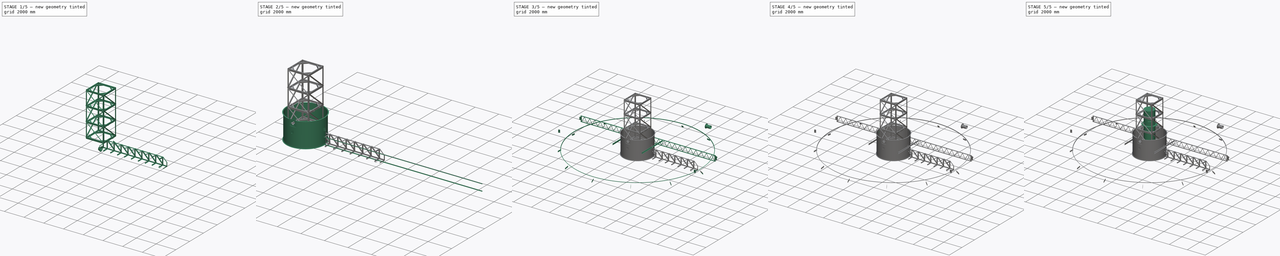
[diagram: build sequence overview — one tinted view per stage of 5, left to right]
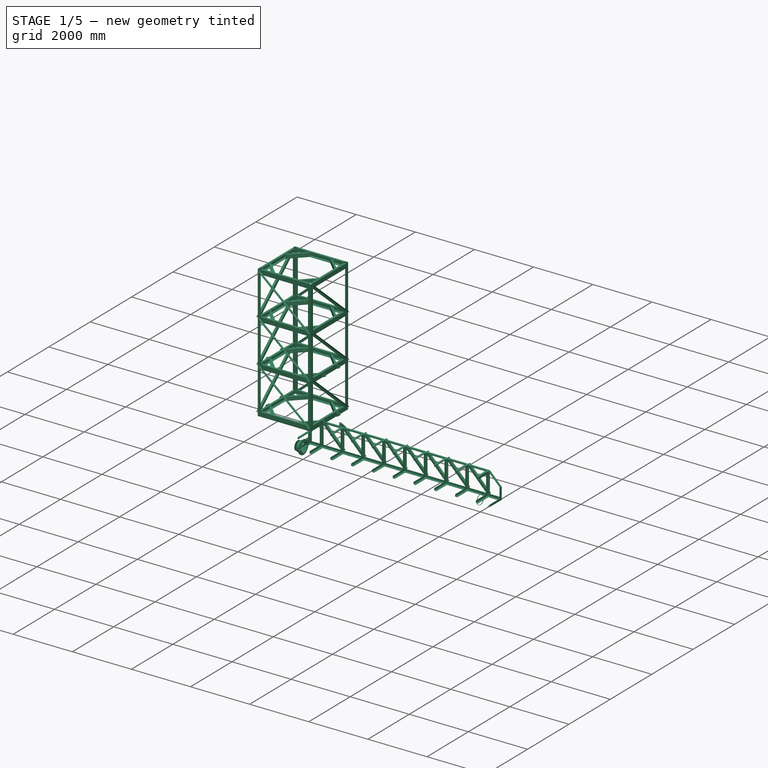
[diagram: stage 1 of 5 — iso view after this stage's code; geometry added in this stage tinted green]
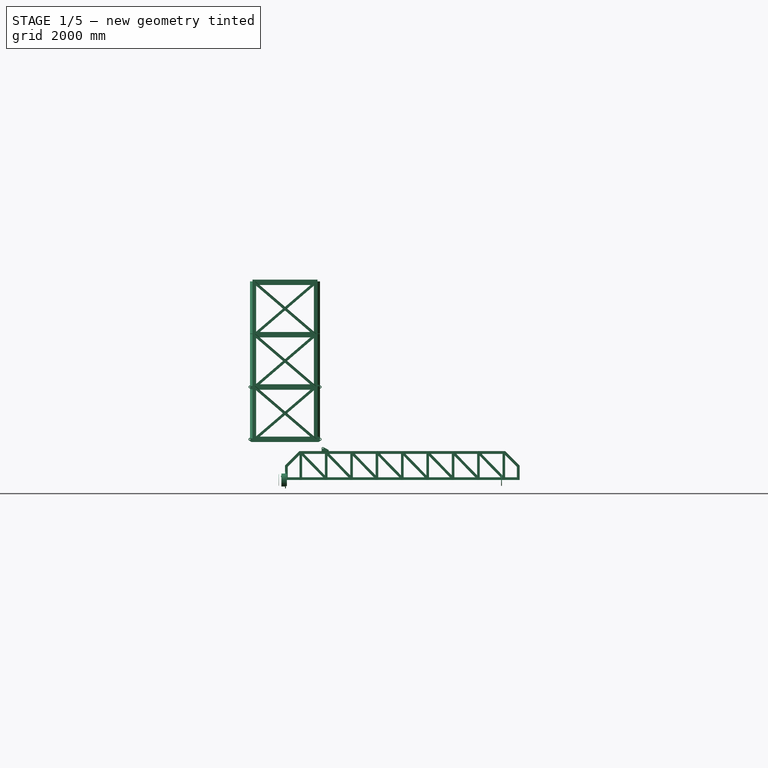
[diagram: stage 1 of 5 — front view after this stage's code; geometry added in this stage tinted green]
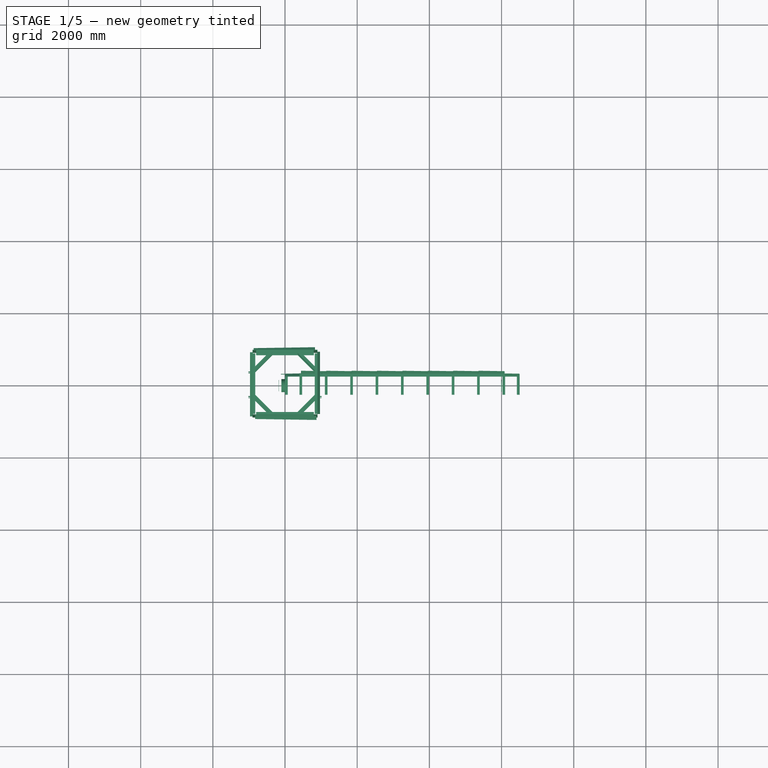
[diagram: stage 1 of 5 — top view after this stage's code; geometry added in this stage tinted green]
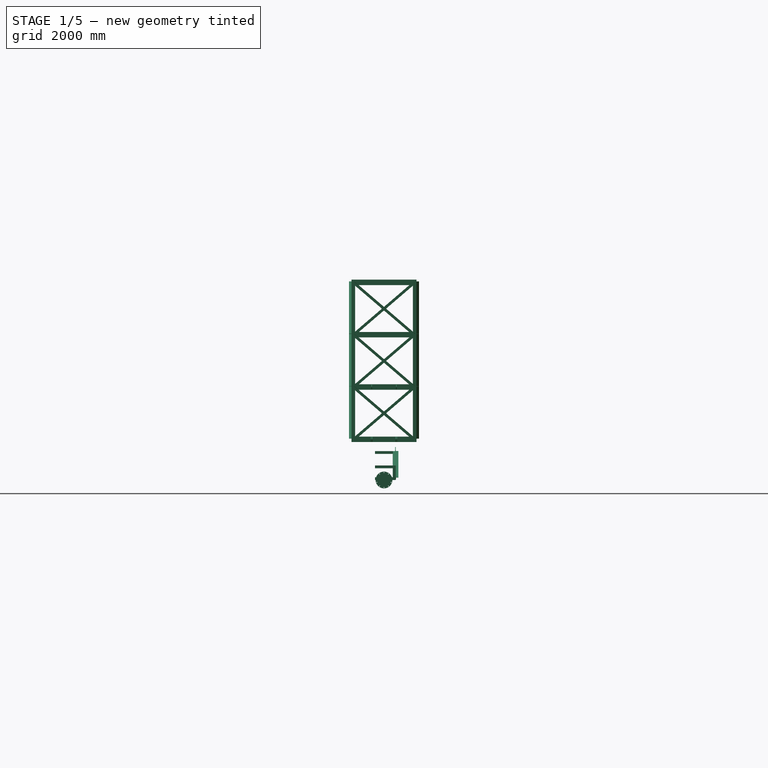
[diagram: stage 1 of 5 — right view after this stage's code; geometry added in this stage tinted green]
FCSTD DOCUMENT  (FreeCAD 0.21R33771 (Git))
Label: pillarAssy
License: All rights reserved
objects: Sketcher::SketchObject×52, Part::FeaturePython×42, Part::Extrusion×35, Part::Cut×17, Part::Compound×17, App::Part×16, Part::Mirroring×15, Part::Revolution×13, Spreadsheet::Sheet×9, App::FeaturePython×6, Part::MultiFuse×3, Part::Feature×2, PartDesign::Pad×2, Part::Cylinder×2, TechDraw::DrawSVGTemplate×1, TechDraw::DrawViewPart×1, TechDraw::DrawViewDimension×1, TechDraw::DrawPage×1, PartDesign::Body×1, Part::Chamfer×1, +1 more types
note: 191 computed .brp shape members not serialized (recipe doc carries the construction recipe); baked Part::Feature solids carry a one-line shape summary decoded from their .brp

FEATURE [App::Part] Part018  label="support001"
  Group = -> [ChannelSteel003,Mirror018,Compound020,AngleSteel017,Compound021,Sketch076,Extrude054,Mirror021,Mirror020,Mirror019,Mirror022,Compound023,Part019,Mirror023]
  Origin = -> Origin021
  Placement = pos=(0,0,-200) rot=(0,0,1;0rad)
FEATURE [App::Part] Part017  label="centerWell001"
  Group = -> [Chamfer,Sketch068,Sketch072,Sketch071,Sketch070,Compound001,Compound002,Revolve012,Revolve013,Revolve014,Extrude042,Extrude049,Extrude045,Extrude044,Extrude041,Extrude043,Extrude048,Extrude009,Sketch064,Sketch066,Sketch063,Sketch065,Sketch067,AngleSteel014,AngleSteel015,Cut020,Fusion003,Cut019,Cut018,Cut002,Array021,Part016,axisCoincident_004,planeCoincident_001_mirror,Compound019,+3 more]
  Origin = -> Origin001
  Placement = pos=(0,0,-114.67) rot=(0,0,1;1.5708rad)
FEATURE [App::Part] Part004  label="feedWell"
  Group = -> [Part018,Part017]
  Origin = -> Origin004
  Placement = pos=(0,0,276.188) rot=(0,0,1;0rad)
FEATURE [App::Part] Part012  label="inflowSection"
  Group = -> [Spreadsheet005,Part004]
  Origin = -> Origin016
  Placement = pos=(0,0,2814.77) rot=(0,0,1;0rad)
FEATURE [Part::FeaturePython] Flange  # WARN: FeaturePython — macro-defined, semantics opaque (R4)
  Placement = pos=(0,0,0) rot=(0.57735,0.57735,0.57735;2.0944rad)
  dia = 6
  fittings = 00_Flange
  material = 0
  standard = 1
FEATURE [Part::FeaturePython] Ring  # WARN: FeaturePython — macro-defined, semantics opaque (R4)
  D = 360
  Placement = pos=(0,0,0) rot=(0,1,0;1.5708rad)
  d = 315
  sface = 0
FEATURE [Part::Extrusion] Extrude055
  Base = -> Ring
  Dir = (1,0,-2e-16)
  DirMode = 2
  FaceMakerClass = Part::FaceMakerBullseye
  LengthFwd = 100
  LengthRev = 0
  Reversed = true
  Solid = true
  Symmetric = false
FEATURE [App::Part] Part020  label="brg01"
  Group = -> [Ring,Extrude055,Flange]
  Origin = -> Origin023
  Placement = pos=(6110,-1.1983e-12,0) rot=(0,0,1;0rad)
  expr: .Placement.Base.x = Spreadsheet009.L0 - Spreadsheet009.l1
FEATURE [Part::FeaturePython] Straight_tube  # WARN: FeaturePython — macro-defined, semantics opaque (R4)
  L = 6290
  Placement = pos=(-180,0,0) rot=(0,0,1;0rad)
  dia = 16
  fittings = 05_Straight pipe
  material = 1
  standard = 1
  expr: .Placement.Base.x = -Spreadsheet009.l1
  expr: L = Spreadsheet009.L0
FEATURE [Sketcher::SketchObject] Sketch077
  FullyConstrained = true
  Placement = pos=(0,0,0) rot=(1,0,0;1.5708rad)
  expr: Constraints[35] = Spreadsheet009.L0 - (Spreadsheet009.l1 + 100)
  sketch-geometry (12):
    g0: LineSegment StartX=5990 StartY=159.25 StartZ=0 EndX=6010 EndY=159.25 EndZ=0
    g1: LineSegment StartX=6010 StartY=159.25 StartZ=0 EndX=6010 EndY=164.25 EndZ=0
    g2: LineSegment StartX=6010 StartY=164.25 StartZ=0 EndX=5990 EndY=164.25 EndZ=0
    g3: LineSegment StartX=5990 StartY=164.25 StartZ=0 EndX=5990 EndY=159.25 EndZ=0
    g4: LineSegment StartX=0 StartY=159.25 StartZ=0 EndX=0 EndY=169.25 EndZ=0
    g5: LineSegment StartX=0 StartY=169.25 StartZ=0 EndX=19 EndY=169.25 EndZ=0
    g6: LineSegment StartX=19 StartY=169.25 StartZ=0 EndX=19 EndY=164.25 EndZ=0
    g7: LineSegment StartX=19 StartY=164.25 StartZ=0 EndX=31 EndY=164.25 EndZ=0
    g8: LineSegment StartX=31 StartY=164.25 StartZ=0 EndX=31 EndY=169.25 EndZ=0
    g9: LineSegment StartX=31 StartY=169.25 StartZ=0 EndX=50 EndY=169.25 EndZ=0
    g10: LineSegment StartX=50 StartY=169.25 StartZ=0 EndX=50 EndY=159.25 EndZ=0
    g11: LineSegment StartX=50 StartY=159.25 StartZ=0 EndX=0 EndY=159.25 EndZ=0
  constraints (36):
    c: Coincident(g0,g1)
    c: Coincident(g1,g2)
    c: Coincident(g2,g3)
    c: Coincident(g3,g0)
    c: Horizontal(g0)
    c: Horizontal(g2)
    c: Vertical(g1)
    c: Vertical(g3)
    c: DistanceY(g-1,g0) = 159.25
    c: DistanceY(g1,g1) = 5
    c: DistanceX(g2,g2) = 20
    c: Vertical(g4)
    c: Coincident(g4,g5)
    c: Horizontal(g5)
    c: Coincident(g5,g6)
    c: Vertical(g6)
    c: Coincident(g6,g7)
    c: Coincident(g7,g8)
    c: Coincident(g8,g9)
    c: Coincident(g9,g10)
    c: Coincident(g10,g11)
    c: Coincident(g11,g4)
    c: Horizontal(g11)
    c: Vertical(g10)
    c: Horizontal(g7)
    c: Horizontal(g9)
    c: Vertical(g8)
    c: DistanceY(g10,g10) = 10
    c: DistanceY(g7,g8) = 5
    c: Horizontal(g8,g5)
    c: DistanceX(g11,g11) = 50
    c: DistanceX(g7,g7) = 12
    c: DistanceX(g5,g5) = 19
    c: DistanceY(g-1,g4) = 159.25
    c: Vertical(g-1,g4)
    c: DistanceX(g-1,g0) = 6010
FEATURE [Part::Revolution] Revolve015
  Angle = 360
  Axis = (1,0,0)
  Base = (0,0,0)
  FaceMakerClass = Part::FaceMakerBullseye
  Solid = true
  Source = -> Sketch077
  Symmetric = false
FEATURE [Spreadsheet::Sheet] Spreadsheet009
  cells = A2='fullLength L0; B2(L0)=6290; A3='length       l1; B3(l1)=180; A4='n0; B4(n0)=5; A5='l3; B5(l3)=1092
FEATURE [Sketcher::SketchObject] Sketch078
  FullyConstrained = false
  Placement = pos=(0,0,0) rot=(0.57735,0.57735,0.57735;2.0944rad)
  sketch-geometry (3):
    g0: LineSegment StartX=0 StartY=0 StartZ=0 EndX=114.659 EndY=220.257 EndZ=0
    g1: LineSegment StartX=0 StartY=0 StartZ=0 EndX=-114.659 EndY=220.257 EndZ=0
    g2: ArcOfCircle CenterX=0 CenterY=0 CenterZ=0 NormalX=0 NormalY=0 NormalZ=1 AngleXU=0 Radius=248.314 StartAngle=1.09083 EndAngle=2.05076
  constraints (7):
    c: Coincident(g-1,g0)
    c: Coincident(g1,g0)
    c: Coincident(g2,g0)
    c: Coincident(g2,g1)
    c: Coincident(g2,g0)
    c: Angle(g0,g-2) = 0.479966
    c: Angle(g0,g1) = 0.959931
FEATURE [Part::Extrusion] Extrude056
  Base = -> Sketch078
  Dir = (1,0,0)
  DirMode = 2
  FaceMakerClass = Part::FaceMakerBullseye
  LengthFwd = 1092
  LengthRev = 0
  Placement = pos=(100,0,0) rot=(0,0,1;0rad)
  Solid = true
  Symmetric = false
  expr: LengthFwd = Spreadsheet009.l3
FEATURE [Part::FeaturePython] Array023  # Draft array (typed FeaturePython)
  AlwaysSyncPlacement = false
  Angle = 360
  ArrayType = 0
  Axis = (0,0,1)
  Base = -> Extrude056
  Center = (0,0,0)
  Count = 5
  ExpandArray = false
  Fuse = false
  IntervalAxis = (0,0,0)
  IntervalX = (1142,0,0)
  IntervalY = (0,100,0)
  IntervalZ = (0,0,100)
  NumberCircles = 3
  NumberPolar = 5
  NumberX = 5
  NumberY = 1
  NumberZ = 1
  PlacementList = 5 placements: arithmetic series from (100,0,0) step (1142,0,0) to (4668,0,0)
  RadialDistance = 50
  ScaleList = (5) [(1,1,1),(1,1,1),(1,1,1),(1,1,1),(1,1,1)]
  Symmetry = 1
  TangentialDistance = 25
  expr: .IntervalX.x = Spreadsheet009.l3 + 50
  expr: NumberX = Spreadsheet009.n0
FEATURE [Part::Cut] Cut021
  Base = -> Straight_tube
  Tool = -> Array023
FEATURE [Sketcher::SketchObject] Sketch079
  FullyConstrained = false
  Placement = pos=(0,0,0) rot=(0.57735,0.57735,0.57735;2.0944rad)
  sketch-geometry (3):
    g0: LineSegment StartX=0 StartY=0 StartZ=0 EndX=-124.513 EndY=239.188 EndZ=0
    g1: LineSegment StartX=0 StartY=0 StartZ=0 EndX=124.513 EndY=239.188 EndZ=0
    g2: ArcOfCircle CenterX=0 CenterY=0 CenterZ=0 NormalX=0 NormalY=0 NormalZ=1 AngleXU=0 Radius=269.656 StartAngle=1.09083 EndAngle=2.05076
  constraints (7):
    c: Coincident(g0,g-1)
    c: Coincident(g1,g0)
    c: Coincident(g2,g1)
    c: Coincident(g2,g0)
    c: Coincident(g2,g0)
    c: Angle(g1,g0) = 0.959931
    c: Angle(g1,g-2) = 0.479966
FEATURE [Part::Extrusion] Extrude057
  Base = -> Sketch079
  Dir = (1,0,0)
  DirMode = 2
  FaceMakerClass = Part::FaceMakerBullseye
  LengthFwd = 130
  LengthRev = 0
  Placement = pos=(-25,0,0) rot=(0,0,1;0rad)
  Reversed = true
  Solid = true
  Symmetric = false
  expr: LengthFwd = Spreadsheet009.l1 - 50
FEATURE [Part::Cut] Cut022
  Base = -> Cut021
  Tool = -> Extrude057
FEATURE [Sketcher::SketchObject] Sketch080
  FullyConstrained = false
  MapMode = 5
  Placement = pos=(1192,0,0) rot=(0.57735,-0.57735,-0.57735;2.0944rad)
  Support = -> [Cut022]
  sketch-geometry (1):
    g0: Circle CenterX=0 CenterY=0 CenterZ=0 NormalX=0 NormalY=0 NormalZ=1 AngleXU=0 Radius=158.823
  constraints (1):
    c: Coincident(g0,g-1)
FEATURE [Part::Extrusion] Extrude058
  Base = -> Sketch080
  Dir = (-1,0,0)
  DirMode = 2
  FaceMakerClass = Part::FaceMakerBullseye
  LengthFwd = 6
  LengthRev = 0
  Placement = pos=(-1373,0,0) rot=(0,0,1;0rad)
  Reversed = true
  Solid = true
  Symmetric = false
FEATURE [App::Part] Part021  label="pipe"
  Group = -> [Sketch077,Revolve015,Array023,Straight_tube,Sketch078,Sketch079,Extrude057,Extrude056,Cut021,Cut022,Sketch080,Extrude058]
  Origin = -> Origin024
FEATURE [App::Part] Part002  label="pipeSkimmer"
  Group = -> [Part021,Part020,Spreadsheet009]
  Origin = -> Origin002
  Placement = pos=(1504.99,0,4834.58) rot=(0,0,1;0rad)
FEATURE [Part::FeaturePython] AngleSteel003  # WARN: FeaturePython — macro-defined, semantics opaque (R4)
  A = 75
  B = 75
  L = 500
  Placement = pos=(437.5,-250,762.5) rot=(0.57735,-0.57735,-0.57735;4.18879rad)
  Solid = true
  g0 = 7.85
  mass = 3.4251
  size = 10
  standard = SS_Equal
  t = 6
  expr: .Placement.Base.x = Spreadsheet.H0 - Spreadsheet.h1 + 37.5
  expr: .Placement.Base.y = -Spreadsheet.W0 / 2 + 75
  expr: .Placement.Base.z = Spreadsheet.H0 - 37.5
  expr: L = Spreadsheet.W0 - 150
FEATURE [Part::FeaturePython] Clone004  label="AngleSteel008"  # Draft clone (typed FeaturePython)
  AttacherType = Attacher::AttachEngine3D
  Fuse = false
  Objects = -> [AngleSteel003]
  Placement = pos=(37.5,-250,362.5) rot=(0.57735,-0.57735,-0.57735;4.18879rad)
  Scale = (1,1,1)
  expr: .Placement.Base.y = -Spreadsheet.W0 / 2 + 75
FEATURE [Part::FeaturePython] Clone003  label="AngleSteel007"  # Draft clone (typed FeaturePython)
  AttacherType = Attacher::AttachEngine3D
  Fuse = false
  Objects = -> [AngleSteel003]
  Placement = pos=(37.5,-250,37.5) rot=(-1,0,0;1.5708rad)
  Scale = (1,1,1)
  expr: .Placement.Base.y = -Spreadsheet.W0 / 2 + 75
FEATURE [Part::FeaturePython] Clone002  label="AngleSteel006"  # Draft clone (typed FeaturePython)
  AttacherType = Attacher::AttachEngine3D
  Fuse = false
  Objects = -> [AngleSteel003]
  Placement = pos=(6462.5,-250,37.54) rot=(0.57735,0.57735,0.57735;4.18879rad)
  Scale = (1,1,1)
  expr: .Placement.Base.x = Spreadsheet.L0 - 37.5
  expr: .Placement.Base.y = -Spreadsheet.W0 / 2 + 75
FEATURE [Part::FeaturePython] Clone001  label="AngleSteel005"  # Draft clone (typed FeaturePython)
  AttacherType = Attacher::AttachEngine3D
  Fuse = false
  Objects = -> [AngleSteel003]
  Placement = pos=(437.5,-250,37.5) rot=(-1,0,0;1.5708rad)
  Scale = (1,1,1)
  expr: .Placement.Base.x = Spreadsheet.H0 - Spreadsheet.h1 + 37.5
  expr: .Placement.Base.y = -Spreadsheet.W0 / 2 + 75
FEATURE [Part::FeaturePython] Array003  # Draft array (typed FeaturePython)
  AlwaysSyncPlacement = false
  Angle = 360
  ArrayType = 0
  Axis = (0,0,1)
  Base = -> Clone001
  Center = (0,0,0)
  Count = 9
  ExpandArray = false
  Fuse = false
  IntervalAxis = (0,0,0)
  IntervalX = (703.125,0,0)
  IntervalY = (0,100,0)
  IntervalZ = (0,0,100)
  NumberCircles = 3
  NumberPolar = 5
  NumberX = 9
  NumberY = 1
  NumberZ = 1
  PlacementList = 9 placements: arithmetic series from (437.5,-250,37.5) step (703.125,0,0) to (6062.5,-250,37.5)
  RadialDistance = 50
  ScaleList = (9) [(1,1,1),(1,1,1),(1,1,1),(1,1,1),(1,1,1),(1,1,1),(1,1,1),(1,1,1),(1,1,1)]
  Symmetry = 1
  TangentialDistance = 25
  expr: .IntervalX.x = Spreadsheet.p0
  expr: NumberX = Spreadsheet.n0
FEATURE [Part::FeaturePython] Clone  label="AngleSteel004"  # Draft clone (typed FeaturePython)
  AttacherType = Attacher::AttachEngine3D
  Fuse = false
  Objects = -> [AngleSteel003]
  Placement = pos=(6062.5,-250,762.5) rot=(0,0.707107,0.707107;3.14159rad)
  Scale = (1,1,1)
  expr: .Placement.Base.x = Spreadsheet.L0 - (Spreadsheet.H0 - Spreadsheet.h1) - 37.5
  expr: .Placement.Base.y = -Spreadsheet.W0 / 2 + 75
  expr: .Placement.Base.z = Spreadsheet.H0 - 37.5
FEATURE [Part::FeaturePython] Array002  # Draft array (typed FeaturePython)
  AlwaysSyncPlacement = false
  Angle = 360
  ArrayType = 0
  Axis = (0,0,1)
  Base = -> AngleSteel003
  Center = (0,0,0)
  Count = 8
  ExpandArray = false
  Fuse = false
  IntervalAxis = (0,0,0)
  IntervalX = (703.125,0,0)
  IntervalY = (0,100,0)
  IntervalZ = (0,0,100)
  NumberCircles = 3
  NumberPolar = 5
  NumberX = 8
  NumberY = 1
  NumberZ = 1
  PlacementList = 8 placements: arithmetic series from (437.5,-250,762.5) step (703.125,0,0) to (5359.38,-250,762.5)
  RadialDistance = 50
  ScaleList = (8) [(1,1,1),(1,1,1),(1,1,1),(1,1,1),(1,1,1),(1,1,1),(1,1,1),(1,1,1)]
  Symmetry = 1
  TangentialDistance = 25
  expr: .IntervalX.x = <<Spreadsheet>>.p0
  expr: NumberX = Spreadsheet.n0 - 1
FEATURE [Sketcher::SketchObject] Sketch082
  FullyConstrained = false
  Placement = pos=(0,0,0) rot=(1,0,0;1.5708rad)
  sketch-geometry (7):
    g0: LineSegment StartX=0 StartY=36.614 StartZ=0 EndX=0 EndY=161.614 EndZ=0
    g1: LineSegment StartX=0 StartY=161.614 StartZ=0 EndX=-30 EndY=161.614 EndZ=0
    g2: LineSegment StartX=-30 StartY=161.614 StartZ=0 EndX=-95.0179 EndY=130.728 EndZ=0
    g3: ArcOfCircle CenterX=-80 CenterY=99.114 CenterZ=0 NormalX=0 NormalY=0 NormalZ=1 AngleXU=0 Radius=35 StartAngle=2.01427 EndAngle=4.26891
    g4: LineSegment StartX=-95.0179 StartY=67.4997 StartZ=0 EndX=-30 EndY=36.614 EndZ=0
    g5: LineSegment StartX=-30 StartY=36.614 StartZ=0 EndX=0 EndY=36.614 EndZ=0
    g6: Circle CenterX=-80 CenterY=99.114 CenterZ=0 NormalX=0 NormalY=0 NormalZ=1 AngleXU=0 Radius=15
  constraints (18):
    c: Vertical(g0)
    c: Coincident(g0,g1)
    c: Horizontal(g1)
    c: Coincident(g1,g2)
    c: Tangent(g2,g3) = -1.5708
    c: Coincident(g4,g5)
    c: Coincident(g5,g0)
    c: Coincident(g6,g3)
    c: Horizontal(g5)
    c: PointOnObject(g0,g-2)
    c: DistanceY(g0,g0) = 125
    c: Equal(g1,g5)
    c: DistanceX(g1,g1) = 30
    c: Tangent(g3,g4) = -1.5708
    c: Distance(g3,g0) = 80
    c: Radius(g6) = 15
    c: Radius(g3) = 35
    c: Equal(g2,g4)
FEATURE [Part::Extrusion] Extrude059
  Base = -> Sketch082
  Dir = (0,-1,2e-16)
  DirMode = 2
  FaceMakerClass = Part::FaceMakerBullseye
  LengthFwd = 16
  LengthRev = 0
  Reversed = true
  Solid = true
  Symmetric = false
FEATURE [Part::FeaturePython] AngleSteel002  # WARN: FeaturePython — macro-defined, semantics opaque (R4)
  A = 75
  B = 75
  L = 1025.08
  Placement = pos=(420.917,-37.5,778.495) rot=(0,1,0;2.37011rad)
  Solid = true
  g0 = 7.85
  mass = 7.02198
  size = 10
  standard = SS_Equal
  t = 6
  expr: .Placement.Base.x = Spreadsheet.H0 - Spreadsheet.h1 + Spreadsheet.lx
  expr: .Placement.Base.z = Spreadsheet.H0 - Spreadsheet.lz
  expr: .Placement.Rotation.Angle = Spreadsheet.sita + 90
  expr: L = Spreadsheet.l2 - 40
FEATURE [Part::FeaturePython] Array024  # Draft array (typed FeaturePython)
  AlwaysSyncPlacement = false
  Angle = 360
  ArrayType = 0
  Axis = (0,0,1)
  Base = -> AngleSteel002
  Center = (0,0,0)
  Count = 8
  ExpandArray = false
  Fuse = false
  IntervalAxis = (0,0,0)
  IntervalX = (703.125,0,0)
  IntervalY = (0,100,0)
  IntervalZ = (0,0,100)
  NumberCircles = 3
  NumberPolar = 5
  NumberX = 8
  NumberY = 1
  NumberZ = 1
  PlacementList = 8 placements: arithmetic series from (420.917,-37.5,778.495) step (703.125,0,0) to (5342.79,-37.5,778.495)
  RadialDistance = 50
  ScaleList = (8) [(1,1,1),(1,1,1),(1,1,1),(1,1,1),(1,1,1),(1,1,1),(1,1,1),(1,1,1)]
  Symmetry = 1
  TangentialDistance = 25
  expr: .IntervalX.x = Spreadsheet.p0
  expr: NumberX = Spreadsheet.n0 - 1
FEATURE [Part::FeaturePython] AngleSteel001  # WARN: FeaturePython — macro-defined, semantics opaque (R4)
  A = 75
  B = 75
  L = 770
  Placement = pos=(437.5,43.5,15) rot=(0,0,1;1.5708rad)
  Solid = true
  g0 = 7.85
  mass = 5.27466
  size = 10
  standard = SS_Equal
  t = 6
  expr: .Placement.Base.x = Spreadsheet.H0 - Spreadsheet.h1 + 37.5
  expr: L = Spreadsheet.H0 - 30
FEATURE [Part::FeaturePython] Array  # Draft array (typed FeaturePython)
  AlwaysSyncPlacement = false
  Angle = 360
  ArrayType = 0
  Axis = (0,0,1)
  Base = -> AngleSteel001
  Center = (0,0,0)
  Count = 9
  ExpandArray = false
  Fuse = false
  IntervalAxis = (0,0,0)
  IntervalX = (703.125,0,0)
  IntervalY = (0,100,0)
  IntervalZ = (0,0,100)
  NumberCircles = 3
  NumberPolar = 5
  NumberX = 9
  NumberY = 1
  NumberZ = 1
  PlacementList = 9 placements: arithmetic series from (437.5,43.5,15) step (703.125,0,0) to (6062.5,43.5,15)
  RadialDistance = 50
  ScaleList = (9) [(1,1,1),(1,1,1),(1,1,1),(1,1,1),(1,1,1),(1,1,1),(1,1,1),(1,1,1),(1,1,1)]
  Symmetry = 1
  TangentialDistance = 25
  expr: .IntervalX.x = Spreadsheet.p0
  expr: NumberX = Spreadsheet.n0
FEATURE [Sketcher::SketchObject] Sketch083
  FullyConstrained = true
  MapMode = 5
  Placement = pos=(0,0,0) rot=(1,0,0;1.5708rad)
  Support = -> [XZ_Plane]
  expr: Constraints[12] = Spreadsheet.L0
  expr: Constraints[15] = Spreadsheet.h1
  expr: Constraints[16] = Spreadsheet.H0
  sketch-geometry (6):
    g0: LineSegment StartX=0 StartY=0 StartZ=0 EndX=0 EndY=400 EndZ=0
    g1: LineSegment StartX=0 StartY=400 StartZ=0 EndX=400 EndY=800 EndZ=0
    g2: LineSegment StartX=400 StartY=800 StartZ=0 EndX=6100 EndY=800 EndZ=0
    g3: LineSegment StartX=6100 StartY=800 StartZ=0 EndX=6500 EndY=400 EndZ=0
    g4: LineSegment StartX=6500 StartY=400 StartZ=0 EndX=6500 EndY=0 EndZ=0
    g5: LineSegment StartX=6500 StartY=0 StartZ=0 EndX=0 EndY=0 EndZ=0
  constraints (18):
    c: PointOnObject(g0,g-2)
    c: PointOnObject(g0,g-2)
    c: Coincident(g0,g1)
    c: Coincident(g1,g2)
    c: Horizontal(g2)
    c: Coincident(g2,g3)
    c: Coincident(g3,g4)
    c: PointOnObject(g4,g-1)
    c: Vertical(g4)
    c: Coincident(g4,g5)
    c: Coincident(g5,g0)
    c: Horizontal(g5)
    c: Distance(g5) = 6500
    c: Angle(g-2,g1) = 2.35619
    c: Angle(g2,g3) = 2.35619
    c: DistanceY(g0,g0) = 400
    c: Distance(g2,g5) = 800
    c: Equal(g4,g0)
FEATURE [Sketcher::SketchObject] Sketch081
  ExternalGeometry = -> [Sketch083,AngleSteel003]
  FullyConstrained = false
  Placement = pos=(0,0,0) rot=(1,0,0;1.5708rad)
  expr: Constraints[15] = (Spreadsheet.L0 - (Spreadsheet.H0 - Spreadsheet.h1)) / (Spreadsheet.n0 - 1) - 150
  sketch-geometry (6):
    g0: LineSegment StartX=1212.5 StartY=800 StartZ=0 EndX=1212.5 EndY=830 EndZ=0
    g1: LineSegment StartX=1212.5 StartY=830 StartZ=0 EndX=1064.24 EndY=910.738 EndZ=0
    g2: ArcOfCircle CenterX=1047.5 CenterY=880 CenterZ=0 NormalX=0 NormalY=0 NormalZ=1 AngleXU=0 Radius=35 StartAngle=1.07214 EndAngle=3.14157
    g3: Circle CenterX=1047.5 CenterY=880 CenterZ=0 NormalX=0 NormalY=0 NormalZ=1 AngleXU=0 Radius=15
    g4: LineSegment StartX=1012.5 StartY=880.001 StartZ=0 EndX=1012.5 EndY=800 EndZ=0
    g5: LineSegment StartX=1012.5 StartY=800 StartZ=0 EndX=1212.5 EndY=800 EndZ=0
  constraints (16):
    c: Coincident(g0,g1)
    c: Tangent(g1,g2) = -1.5708
    c: Coincident(g3,g2)
    c: DistanceY(g-3,g2) = 80
    c: Vertical(g0)
    c: DistanceY(g0,g0) = 30
    c: Radius(g3) = 15
    c: Radius(g2) = 35
    c: DistanceX(g2,g0) = 200
    c: Coincident(g4,g2)
    c: PointOnObject(g4,g-3)
    c: Vertical(g4)
    c: PointOnObject(g0,g-3)
    c: Coincident(g5,g4)
    c: Coincident(g5,g0)
    c: DistanceX(g-4,g4) = 612.5
FEATURE [Part::Extrusion] Extrude001
  Base = -> Sketch081
  Dir = (0,-1,2e-16)
  DirMode = 2
  FaceMakerClass = Part::FaceMakerBullseye
  LengthFwd = 16
  LengthRev = 0
  Reversed = true
  Solid = true
  Symmetric = false
FEATURE [Spreadsheet::Sheet] Spreadsheet
  cells = A2='L0; B2(L0)=6500; A3='H0; B3(H0)=800; A4='h1; B4(h1)=400; A5='W0; B5(W0)=650; A6='div n0; B6(n0)=9; A7='p0; B7(p0)=703.125; A8='sita; B8(sita)=45.797521325262; A9='l2; B9(l2)=1065.0750046945; A10='lx; B10(lx)=20.917149638137; A11='lz; B11(lz)=21.5051819572814
FEATURE [Part::FeaturePython] AngleSteel  # WARN: FeaturePython — macro-defined, semantics opaque (R4)
  A = 75
  B = 75
  L = 1000
  Placement = pos=(0,0,0) rot=(0,0,1;1.5708rad)
  Solid = false
  g0 = 7.85
  mass = 0
  size = 10
  standard = SS_Equal
  t = 6
FEATURE [Part::Sweep] Sweep
  Frenet = false
  Sections = -> [AngleSteel]
  Solid = true
  Spine = -> Sketch083 [Edge6,Edge5,Edge4,Edge3,Edge2,Edge1]
  Transition = 1
FEATURE [Part::Compound] Compound
  Links = -> [Sweep,Array,Array024,Extrude059,Extrude001]
  Placement = pos=(0,-325,0) rot=(0,0,1;0rad)
  expr: .Placement.Base.y = -Spreadsheet.W0 / 2
FEATURE [Part::Mirroring] Mirror  label="Compound (mirrored)"
  Base = (0,-8.88e-14,400)
  Normal = (0,-1,0)
  Source = -> Compound
FEATURE [App::Part] Part  label="RakeArm"
  Group = -> [AngleSteel,Sketch083,Sweep,AngleSteel001,Spreadsheet,Array,AngleSteel002,Array024,Sketch082,Extrude059,Sketch081,Extrude001,Compound,Mirror,AngleSteel003,Array002,Clone,Clone001,Array003,Clone002,Clone003,Clone004]
  Origin = -> Origin
  Placement = pos=(1139.09,350,1089.93) rot=(0,0,1;0rad)
FEATURE [Part::FeaturePython] centerCage001_001  # a2plus imported part (geometry in sourceFile) (typed FeaturePython)
  a2p_Version = 0.4.60n
  fixedPosition = true
  localSourceObject = Compound011
  objectType = a2pPart
  sourceFile = converted
  subassemblyImport = false
  timeLastImport = 1.70899e+09
  updateColors = true
FEATURE [App::Part] Part006  label="movingPart"
  Group = -> [Part007,Compound011,Compound014,Compound012,Part009,Mirror009,Mirror010,centerCage001_001,Part]
  Origin = -> Origin009
  Placement = pos=(0,0,28) rot=(0,0,1;0rad)
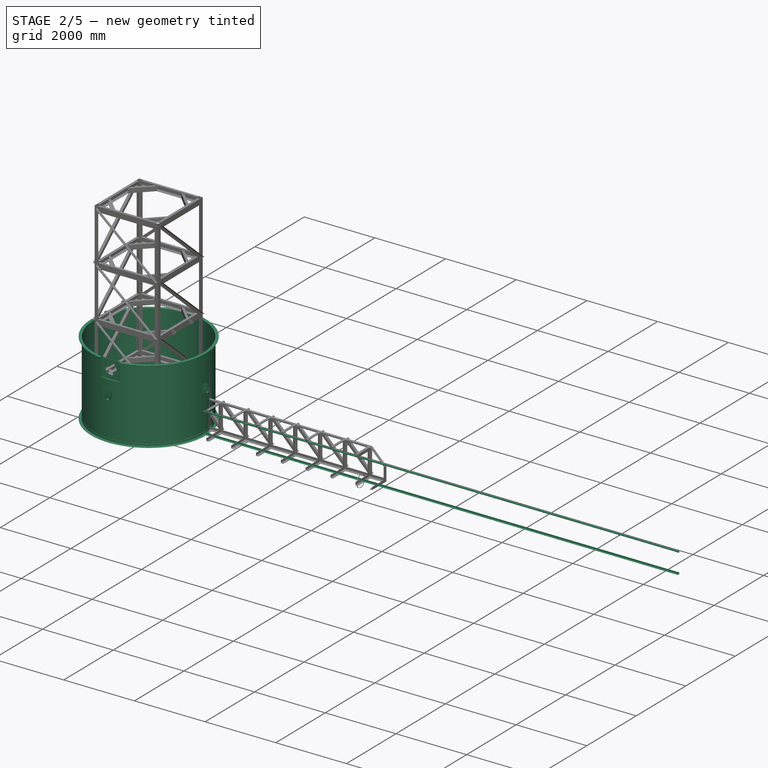
[diagram: stage 2 of 5 — iso view after this stage's code; geometry added in this stage tinted green]
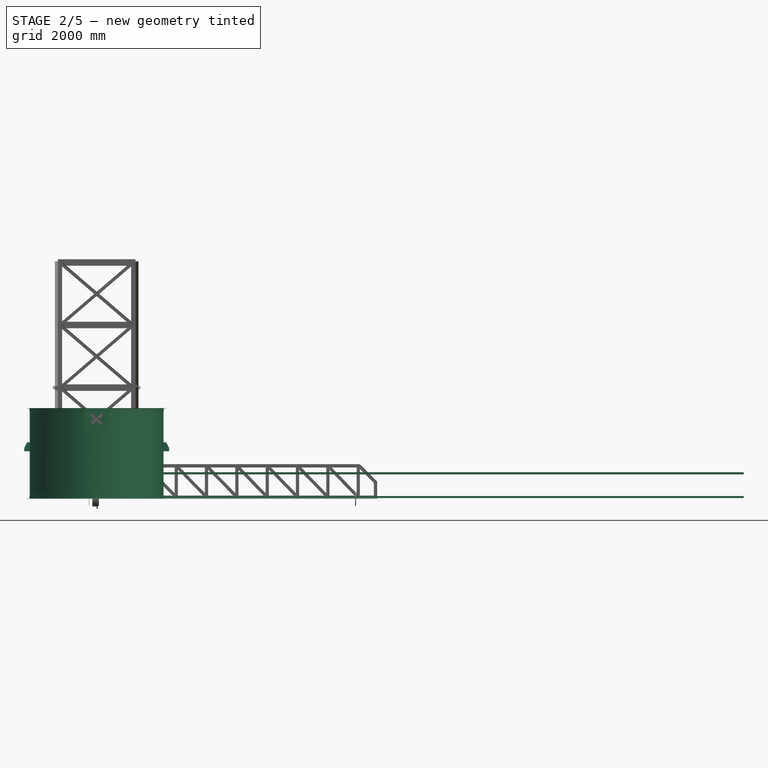
[diagram: stage 2 of 5 — front view after this stage's code; geometry added in this stage tinted green]
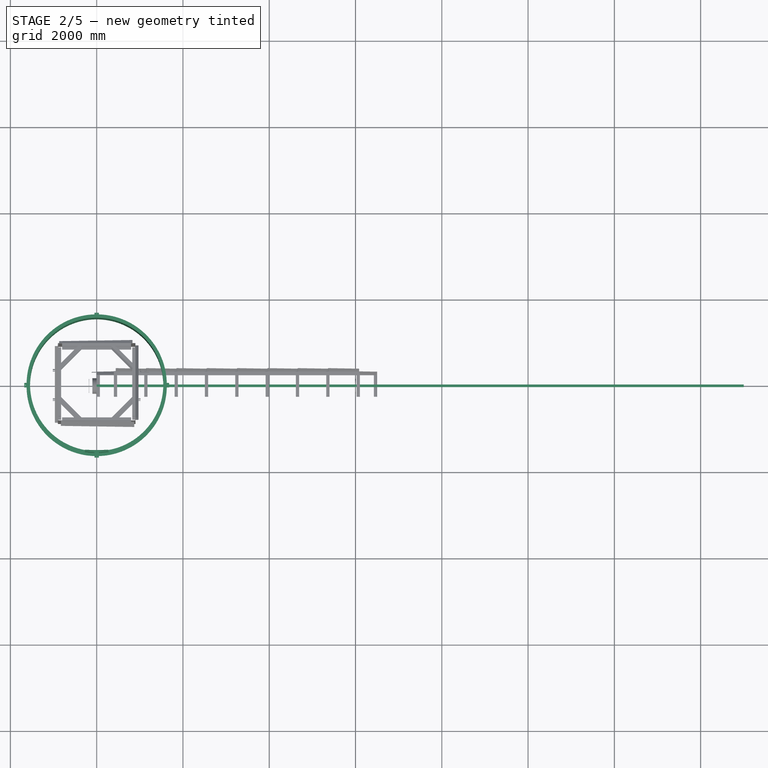
[diagram: stage 2 of 5 — top view after this stage's code; geometry added in this stage tinted green]
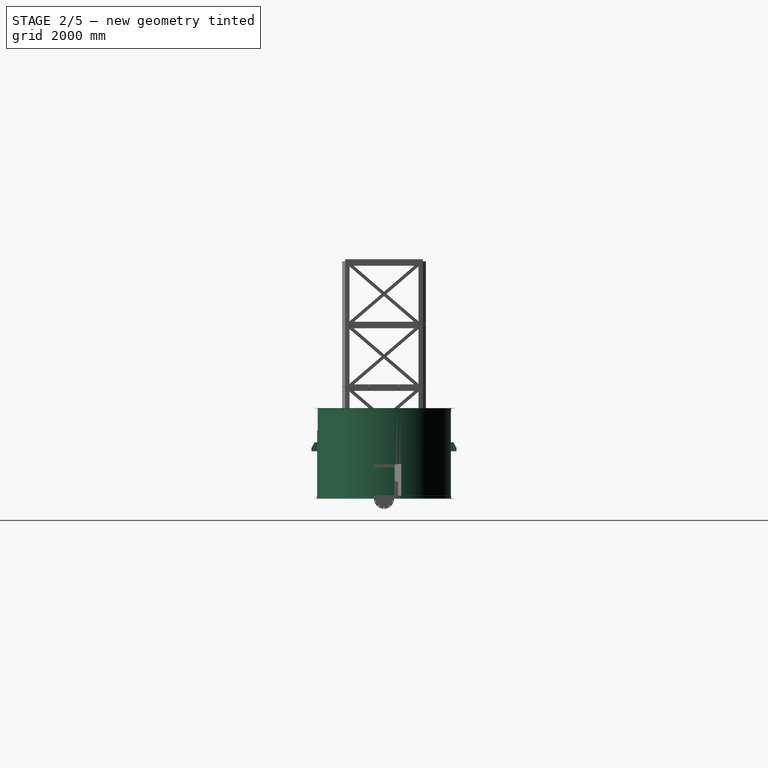
[diagram: stage 2 of 5 — right view after this stage's code; geometry added in this stage tinted green]
FEATURE [Sketcher::SketchObject] Sketch063
  FullyConstrained = true
  Placement = pos=(0,0,0) rot=(1,0,0;1.5708rad)
  sketch-geometry (4):
    g0: LineSegment StartX=1545 StartY=0 StartZ=0 EndX=1550 EndY=0 EndZ=0
    g1: LineSegment StartX=1550 StartY=0 StartZ=0 EndX=1550 EndY=2100 EndZ=0
    g2: LineSegment StartX=1550 StartY=2100 StartZ=0 EndX=1545 EndY=2100 EndZ=0
    g3: LineSegment StartX=1545 StartY=2100 StartZ=0 EndX=1545 EndY=0 EndZ=0
  constraints (12):
    c: Coincident(g0,g1)
    c: Coincident(g1,g2)
    c: Coincident(g2,g3)
    c: Coincident(g3,g0)
    c: Horizontal(g0)
    c: Horizontal(g2)
    c: Vertical(g1)
    c: Vertical(g3)
    c: DistanceX(g2,g2) = 5
    c: DistanceY(g1,g1) = 2100
    c: PointOnObject(g0,g-1)
    c: DistanceX(g-1,g0) = 1550
FEATURE [Part::Revolution] Revolve012
  Angle = 360
  Axis = (0,0,1)
  Base = (0,0,0)
  FaceMakerClass = Part::FaceMakerBullseye
  Solid = true
  Source = -> Sketch063
  Symmetric = false
FEATURE [Part::FeaturePython] AngleSteel014  label="AngleSteel015"  # WARN: FeaturePython — macro-defined, semantics opaque (R4)
  A = 75
  B = 75
  L = 1000
  Placement = pos=(1550,0,0) rot=(0,0,1;0rad)
  Solid = false
  g0 = 7.85
  mass = 0
  size = 10
  standard = SS_Equal
  t = 6
FEATURE [Part::Revolution] Revolve013  label="Revolve001"
  Angle = 360
  Axis = (0,0,1)
  Base = (0,0,0)
  FaceMakerClass = Part::FaceMakerBullseye
  Solid = false
  Source = -> AngleSteel014
  Symmetric = false
FEATURE [Part::FeaturePython] AngleSteel015  label="AngleSteel016"  # WARN: FeaturePython — macro-defined, semantics opaque (R4)
  A = 75
  B = 75
  L = 1000
  Placement = pos=(1550,0,2100.11) rot=(0,1,0;1.5708rad)
  Solid = false
  g0 = 7.85
  mass = 0
  size = 10
  standard = SS_Equal
  t = 6
FEATURE [Part::Revolution] Revolve014  label="Revolve002"
  Angle = 360
  Axis = (0,0,1)
  Base = (0,0,0)
  FaceMakerClass = Part::FaceMakerBullseye
  Solid = false
  Source = -> AngleSteel015
  Symmetric = false
FEATURE [Sketcher::SketchObject] Sketch064
  ExternalGeometry = -> [Revolve014]
  FullyConstrained = true
  Placement = pos=(0,0,0) rot=(1,0,0;1.5708rad)
  sketch-geometry (4):
    g0: LineSegment StartX=-275 StartY=1580.11 StartZ=0 EndX=275 EndY=1580.11 EndZ=0
    g1: LineSegment StartX=275 StartY=1580.11 StartZ=0 EndX=275 EndY=2100.11 EndZ=0
    g2: LineSegment StartX=275 StartY=2100.11 StartZ=0 EndX=-275 EndY=2100.11 EndZ=0
    g3: LineSegment StartX=-275 StartY=2100.11 StartZ=0 EndX=-275 EndY=1580.11 EndZ=0
  constraints (12):
    c: Coincident(g0,g1)
    c: Coincident(g1,g2)
    c: Coincident(g2,g3)
    c: Coincident(g3,g0)
    c: Horizontal(g0)
    c: Horizontal(g2)
    c: Vertical(g1)
    c: Vertical(g3)
    c: DistanceX(g0,g0) = 550
    c: DistanceY(g1,g1) = 520
    c: PointOnObject(g1,g-3)
    c: DistanceX(g-1,g0) = 275
FEATURE [Part::Extrusion] Extrude041
  Base = -> Sketch064
  Dir = (0,-1,-3e-16)
  DirMode = 2
  FaceMakerClass = Part::FaceMakerBullseye
  LengthFwd = 1700
  LengthRev = 0
  Solid = true
  Symmetric = false
FEATURE [Part::MultiFuse] Fusion003  label="Fusion"
  Shapes = -> [Revolve012,Revolve013,Revolve014]
FEATURE [Part::Cut] Cut018
  Base = -> Fusion003
  Tool = -> Extrude041
FEATURE [Sketcher::SketchObject] Sketch065
  ExternalGeometry = -> [Cut018]
  FullyConstrained = false
  MapMode = 5
  Placement = pos=(0,-5.214e-13,1580.11) rot=(0,0,1;0rad)
  Support = -> [Cut018]
  sketch-geometry (4):
    g0: LineSegment StartX=-275 StartY=-1510.33 StartZ=0 EndX=-275 EndY=-1540.33 EndZ=0
    g1: LineSegment StartX=-275 StartY=-1510.33 StartZ=0 EndX=275 EndY=-1510.33 EndZ=0
    g2: LineSegment StartX=275 StartY=-1510.33 StartZ=0 EndX=275 EndY=-1540.33 EndZ=0
    g3: ArcOfCircle CenterX=-1.0901e-12 CenterY=-44.7315 CenterZ=0 NormalX=0 NormalY=0 NormalZ=1 AngleXU=0 Radius=1520.67 StartAngle=4.53055 EndAngle=4.89423
  constraints (12):
    c: Vertical(g0)
    c: Coincident(g0,g1)
    c: Horizontal(g1)
    c: Coincident(g1,g2)
    c: Vertical(g2)
    c: Coincident(g3,g0)
    c: Coincident(g3,g2)
    c: PointOnObject(g-3,g0)
    c: PointOnObject(g-4,g2)
    c: DistanceY(g-3,g0) = 10
    c: DistanceY(g0,g0) = 30
    c: Equal(g0,g2)
FEATURE [Part::Extrusion] Extrude042
  Base = -> Sketch065
  Dir = (0,-3e-16,1)
  DirMode = 2
  FaceMakerClass = Part::FaceMakerBullseye
  LengthFwd = 5
  LengthRev = 0
  Solid = true
  Symmetric = false
FEATURE [Sketcher::SketchObject] Sketch066
  ExternalGeometry = -> [Extrude042]
  FullyConstrained = true
  MapMode = 5
  Placement = pos=(0,0,1585.11) rot=(0,0,1;0rad)
  Support = -> [Extrude042]
  sketch-geometry (4):
    g0: LineSegment StartX=-275 StartY=-1525.33 StartZ=0 EndX=275 EndY=-1525.33 EndZ=0
    g1: LineSegment StartX=275 StartY=-1525.33 StartZ=0 EndX=275 EndY=-1515.33 EndZ=0
    g2: LineSegment StartX=275 StartY=-1515.33 StartZ=0 EndX=-275 EndY=-1515.33 EndZ=0
    g3: LineSegment StartX=-275 StartY=-1515.33 StartZ=0 EndX=-275 EndY=-1525.33 EndZ=0
  constraints (12):
    c: Coincident(g0,g1)
    c: Coincident(g1,g2)
    c: Coincident(g2,g3)
    c: Coincident(g3,g0)
    c: Horizontal(g0)
    c: Horizontal(g2)
    c: Vertical(g1)
    c: Vertical(g3)
    c: DistanceY(g1,g-3) = 5
    c: DistanceY(g1,g1) = 10
    c: PointOnObject(g1,g-4)
    c: PointOnObject(g2,g-5)
FEATURE [Part::Extrusion] Extrude043
  Base = -> Sketch066
  Dir = (0,0,1)
  DirMode = 2
  FaceMakerClass = Part::FaceMakerBullseye
  LengthFwd = 515
  LengthRev = 0
  Solid = true
  Symmetric = false
FEATURE [Sketcher::SketchObject] Sketch067
  ExternalGeometry = -> [Extrude043]
  FullyConstrained = true
  MapMode = 5
  Placement = pos=(0,-1525.33,0) rot=(1,0,0;1.5708rad)
  Support = -> [Extrude043]
  sketch-geometry (4):
    g0: LineSegment StartX=-170 StartY=2100.11 StartZ=0 EndX=-170 EndY=1860.11 EndZ=0
    g1: ArcOfCircle CenterX=0 CenterY=1860.11 CenterZ=0 NormalX=0 NormalY=0 NormalZ=1 AngleXU=0 Radius=170 StartAngle=3.14159 EndAngle=6.28318
    g2: LineSegment StartX=170 StartY=1860.11 StartZ=0 EndX=170 EndY=2100.11 EndZ=0
    g3: LineSegment StartX=170 StartY=2100.11 StartZ=0 EndX=-170 EndY=2100.11 EndZ=0
  constraints (12):
    c: Vertical(g0)
    c: Tangent(g0,g1) = -1.5708
    c: Coincident(g1,g2)
    c: Vertical(g2)
    c: Coincident(g2,g3)
    c: Coincident(g3,g0)
    c: Horizontal(g3)
    c: Radius(g1) = 170
    c: DistanceX(g-2,g1) = 170
    c: PointOnObject(g2,g-3)
    c: Distance(g1,g3) = 240
    c: PointOnObject(g1,g-2)
FEATURE [Part::Extrusion] Extrude044
  Base = -> Sketch067
  Dir = (0,-1,2e-16)
  DirMode = 2
  FaceMakerClass = Part::FaceMakerBullseye
  LengthFwd = 10
  LengthRev = 0
  Reversed = true
  Solid = true
  Symmetric = false
FEATURE [Part::Cut] Cut019
  Base = -> Extrude043
  Tool = -> Extrude044
FEATURE [Sketcher::SketchObject] Sketch068
  ExternalGeometry = -> [Cut019,Cut018]
  FullyConstrained = false
  MapMode = 5
  Placement = pos=(0,-1525.33,0) rot=(1,0,0;1.5708rad)
  Support = -> [Cut019]
  sketch-geometry (11):
    g0: Circle CenterX=-200 CenterY=1910.11 CenterZ=0 NormalX=0 NormalY=0 NormalZ=1 AngleXU=0 Radius=6
    g1: Circle CenterX=-200 CenterY=2050 CenterZ=0 NormalX=0 NormalY=0 NormalZ=1 AngleXU=0 Radius=6
    g2: Circle CenterX=200 CenterY=2050.06 CenterZ=0 NormalX=0 NormalY=0 NormalZ=1 AngleXU=0 Radius=6
    g3: Circle CenterX=200 CenterY=1910.17 CenterZ=0 NormalX=0 NormalY=0 NormalZ=1 AngleXU=0 Radius=6
    g4: LineSegment StartX=-200 StartY=2050 StartZ=0 EndX=200 EndY=2050.06 EndZ=0
    g5: Circle CenterX=-200 CenterY=1810.11 CenterZ=0 NormalX=0 NormalY=0 NormalZ=1 AngleXU=0 Radius=6
    g6: Circle CenterX=-200 CenterY=1640.11 CenterZ=0 NormalX=0 NormalY=0 NormalZ=1 AngleXU=0 Radius=6
    g7: Circle CenterX=200 CenterY=1809.92 CenterZ=0 NormalX=0 NormalY=0 NormalZ=1 AngleXU=0 Radius=6
    g8: Circle CenterX=200 CenterY=1639.92 CenterZ=0 NormalX=0 NormalY=0 NormalZ=1 AngleXU=0 Radius=6
    g9: LineSegment StartX=-200 StartY=1810.11 StartZ=0 EndX=200 EndY=1809.92 EndZ=0
    g10: Circle CenterX=0 CenterY=1640.11 CenterZ=0 NormalX=0 NormalY=0 NormalZ=1 AngleXU=0 Radius=6
  constraints (30):
    c: Radius(g0) = 6
    c: DistanceY(g-3,g0) = 50
    c: DistanceX(g0,g-3) = 200
    c: Radius(g1) = 6
    c: Vertical(g0,g1)
    c: Distance(g1,g-4) = 50
    c: Equal(g0,g3) = 6
    c: Equal(g1,g2) = 6
    c: Vertical(g3,g2)
    c: Coincident(g1,g4)
    c: Coincident(g2,g4)
    c: Distance(g4) = 400
    c: Angle(g4) = 0.000157168
    c: Radius(g5) = 6
    c: Equal(g5,g6) = 6
    c: DistanceY(g6,g5) = 170
    c: Vertical(g6,g5)
    c: Equal(g5,g7) = 6
    c: Equal(g7,g8) = 6
    c: DistanceY(g8,g7) = 170
    c: Vertical(g8,g7)
    c: Coincident(g5,g9)
    c: Coincident(g7,g9)
    c: Distance(g9) = 400
    c: Angle(g9) = -0.000466913
    c: DistanceX(g5,g-3) = 200
    c: PointOnObject(g10,g-2)
    c: Radius(g10) = 6
    c: Horizontal(g10,g6)
    c: DistanceY(g5,g-3) = 50
FEATURE [Part::Extrusion] Extrude045
  Base = -> Sketch068
  Dir = (0,-1,2e-16)
  DirMode = 2
  FaceMakerClass = Part::FaceMakerBullseye
  LengthFwd = 10
  LengthRev = 0
  Reversed = true
  Solid = true
  Symmetric = false
FEATURE [Part::Cut] Cut002
  Base = -> Cut019
  Tool = -> Extrude045
FEATURE [Spreadsheet::Sheet] Spreadsheet007
  cells = A2='dia; A3='hight  h0
FEATURE [Sketcher::SketchObject] Sketch006
  FullyConstrained = false
  Placement = pos=(0,0,0) rot=(1,0,0;1.5708rad)
  sketch-geometry (23):
    g0: LineSegment StartX=-235 StartY=2.04e-14 StartZ=0 EndX=-166.5 EndY=2.04e-14 EndZ=0
    g1: LineSegment StartX=235 StartY=0 StartZ=0 EndX=235 EndY=240 EndZ=0
    g2: LineSegment StartX=235 StartY=240 StartZ=0 EndX=-235 EndY=240 EndZ=0
    g3: LineSegment StartX=-235 StartY=240 StartZ=0 EndX=-235 EndY=2.84e-14 EndZ=0
    g4: ArcOfCircle CenterX=0 CenterY=0 CenterZ=0 NormalX=0 NormalY=0 NormalZ=1 AngleXU=0 Radius=166.5 StartAngle=0 EndAngle=3.14159
    g5: ArcOfCircle CenterX=200 CenterY=200 CenterZ=0 NormalX=0 NormalY=0 NormalZ=1 AngleXU=0 Radius=7 StartAngle=-9e-16 EndAngle=3.14159
    g6: ArcOfCircle CenterX=200 CenterY=180 CenterZ=0 NormalX=0 NormalY=0 NormalZ=1 AngleXU=0 Radius=7 StartAngle=3.14159 EndAngle=6.28319
    g7: LineSegment StartX=193 StartY=200 StartZ=0 EndX=193 EndY=180 EndZ=0
    g8: LineSegment StartX=207 StartY=180 StartZ=0 EndX=207 EndY=200 EndZ=0
    g9: ArcOfCircle CenterX=200 CenterY=60 CenterZ=0 NormalX=0 NormalY=0 NormalZ=1 AngleXU=0 Radius=7 StartAngle=0 EndAngle=3.14159
    g10: ArcOfCircle CenterX=200 CenterY=40 CenterZ=0 NormalX=0 NormalY=0 NormalZ=1 AngleXU=0 Radius=7 StartAngle=3.14159 EndAngle=6.28319
    g11: LineSegment StartX=193 StartY=60 StartZ=0 EndX=193 EndY=40 EndZ=0
    g12: LineSegment StartX=207 StartY=40 StartZ=0 EndX=207 EndY=60 EndZ=0
    g13: ArcOfCircle CenterX=-200 CenterY=200.393 CenterZ=0 NormalX=0 NormalY=0 NormalZ=1 AngleXU=0 Radius=7 StartAngle=3e-16 EndAngle=3.14159
    g14: ArcOfCircle CenterX=-200 CenterY=180.393 CenterZ=0 NormalX=0 NormalY=0 NormalZ=1 AngleXU=0 Radius=7 StartAngle=3.14159 EndAngle=6.28319
    g15: LineSegment StartX=-207 StartY=200.393 StartZ=0 EndX=-207 EndY=180.393 EndZ=0
    g16: LineSegment StartX=-193 StartY=180.393 StartZ=0 EndX=-193 EndY=200.393 EndZ=0
    g17: ArcOfCircle CenterX=-200 CenterY=60.3929 CenterZ=0 NormalX=0 NormalY=0 NormalZ=1 AngleXU=0 Radius=7 StartAngle=0 EndAngle=3.14159
    g18: ArcOfCircle CenterX=-200 CenterY=40.3929 CenterZ=0 NormalX=0 NormalY=0 NormalZ=1 AngleXU=0 Radius=7 StartAngle=3.14159 EndAngle=6.28319
    g19: LineSegment StartX=-207 StartY=60.3929 StartZ=0 EndX=-207 EndY=40.3929 EndZ=0
    g20: LineSegment StartX=-193 StartY=40.3929 StartZ=0 EndX=-193 EndY=60.3929 EndZ=0
    g21: LineSegment StartX=207.004 StartY=200.734 StartZ=0 EndX=-193 EndY=200.393 EndZ=0
    g22: LineSegment StartX=166.5 StartY=0 StartZ=0 EndX=235 EndY=0 EndZ=0
  constraints (58):
    c: Coincident(g22,g1)
    c: Coincident(g1,g2)
    c: Coincident(g2,g3)
    c: Coincident(g3,g0)
    c: Horizontal(g0)
    c: Vertical(g1)
    c: Vertical(g3)
    c: PointOnObject(g0,g-1)
    c: Coincident(g4,g-1)
    c: Radius(g4) = 166.5
    c: DistanceX(g2,g2) = 470
    c: Symmetric(g1,g2,g-2)
    c: DistanceY(g1,g1) = 240
    c: DistanceX(g5,g5) = 14
    c: DistanceY(g7,g7) = 20
    c: DistanceY(g5,g1) = 40
    c: DistanceX(g4,g5) = 200
    c: Tangent(g9,g11) = -1.5708
    c: Tangent(g11,g10) = -1.5708
    c: Tangent(g10,g12) = -1.5708
    c: Tangent(g12,g9) = -1.5708
    c: Equal(g9,g10)
    c: Vertical(g11)
    c: Equal(g5,g9) = 14
    c: Equal(g7,g11) = 20
    c: Vertical(g9,g6)
    c: DistanceY(g9,g5) = 140
    c: Equal(g5,g13) = 14
    c: Equal(g7,g15) = 20
    c: Tangent(g17,g19) = -1.5708
    c: Tangent(g19,g18) = -1.5708
    c: Tangent(g18,g20) = -1.5708
    c: Tangent(g20,g17) = -1.5708
    c: Equal(g17,g18)
    c: Vertical(g19)
    c: Equal(g13,g17) = 14
    c: Equal(g15,g19) = 20
    c: Vertical(g17,g14)
    c: DistanceY(g17,g13) = 140
    c: Angle(g21) = -3.14074
    c: Coincident(g0,g4)
    c: Coincident(g22,g4)
    c: Horizontal(g22)
    c: PointOnObject(g1,g-1)
    c: Vertical(g16)
    c: Vertical(g15)
    c: Coincident(g13,g21)
    c: Tangent(g5,g8) = -1.5708
    c: Tangent(g16,g13) = -1.5708
    c: Tangent(g15,g14) = -1.5708
    c: Tangent(g16,g14) = -1.5708
    c: Tangent(g15,g13) = -1.5708
    c: DistanceX(g13,g4) = 200
    c: Vertical(g8)
    c: Vertical(g7)
    c: Tangent(g5,g7) = -1.5708
    c: Tangent(g7,g6) = -1.5708
    c: Tangent(g8,g6) = -1.5708
FEATURE [Part::Extrusion] Extrude046
  Base = -> Sketch006
  Dir = (0,-1,2e-16)
  DirMode = 2
  FaceMakerClass = Part::FaceMakerBullseye
  LengthFwd = 10
  LengthRev = 0
  Solid = true
  Symmetric = false
FEATURE [Sketcher::SketchObject] Sketch069
  ExternalGeometry = -> [Extrude046]
  FullyConstrained = false
  Placement = pos=(0,0,0) rot=(1,0,0;1.5708rad)
  sketch-geometry (26):
    g0: LineSegment StartX=-235 StartY=0 StartZ=0 EndX=-166.5 EndY=-4.08e-14 EndZ=0
    g1: LineSegment StartX=235 StartY=0 StartZ=0 EndX=235 EndY=-267.623 EndZ=0
    g2: LineSegment StartX=235 StartY=-267.623 StartZ=0 EndX=-235 EndY=-267.623 EndZ=0
    g3: LineSegment StartX=-235 StartY=-267.623 StartZ=0 EndX=-235 EndY=0 EndZ=0
    g4: ArcOfCircle CenterX=0 CenterY=-4.08e-14 CenterZ=0 NormalX=0 NormalY=0 NormalZ=1 AngleXU=0 Radius=166.5 StartAngle=3.14159 EndAngle=6.28319
    g5: ArcOfCircle CenterX=200 CenterY=-40 CenterZ=0 NormalX=0 NormalY=0 NormalZ=1 AngleXU=0 Radius=7 StartAngle=3e-16 EndAngle=3.14159
    g6: ArcOfCircle CenterX=200 CenterY=-60 CenterZ=0 NormalX=0 NormalY=0 NormalZ=1 AngleXU=0 Radius=7 StartAngle=3.14159 EndAngle=6.28319
    g7: LineSegment StartX=193 StartY=-40 StartZ=0 EndX=193 EndY=-60 EndZ=0
    g8: LineSegment StartX=207 StartY=-60 StartZ=0 EndX=207 EndY=-40 EndZ=0
    g9: ArcOfCircle CenterX=200 CenterY=-210 CenterZ=0 NormalX=0 NormalY=0 NormalZ=1 AngleXU=0 Radius=7 StartAngle=0 EndAngle=3.14159
    g10: ArcOfCircle CenterX=200 CenterY=-230 CenterZ=0 NormalX=0 NormalY=0 NormalZ=1 AngleXU=0 Radius=7 StartAngle=3.14159 EndAngle=6.28319
    g11: LineSegment StartX=193 StartY=-210 StartZ=0 EndX=193 EndY=-230 EndZ=0
    g12: LineSegment StartX=207 StartY=-230 StartZ=0 EndX=207 EndY=-210 EndZ=0
    g13: ArcOfCircle CenterX=-200 CenterY=-40 CenterZ=0 NormalX=0 NormalY=0 NormalZ=1 AngleXU=0 Radius=7 StartAngle=0 EndAngle=3.14159
    g14: ArcOfCircle CenterX=-200 CenterY=-60 CenterZ=0 NormalX=0 NormalY=0 NormalZ=1 AngleXU=0 Radius=7 StartAngle=3.14159 EndAngle=6.28319
    g15: LineSegment StartX=-207 StartY=-40 StartZ=0 EndX=-207 EndY=-60 EndZ=0
    g16: LineSegment StartX=-193 StartY=-60 StartZ=0 EndX=-193 EndY=-40 EndZ=0
    g17: ArcOfCircle CenterX=-200 CenterY=-210 CenterZ=0 NormalX=0 NormalY=0 NormalZ=1 AngleXU=0 Radius=7 StartAngle=1.4e-15 EndAngle=3.14159
    g18: ArcOfCircle CenterX=-200 CenterY=-230 CenterZ=0 NormalX=0 NormalY=0 NormalZ=1 AngleXU=0 Radius=7 StartAngle=3.14159 EndAngle=6.28319
    g19: LineSegment StartX=-207 StartY=-210 StartZ=0 EndX=-207 EndY=-230 EndZ=0
    g20: LineSegment StartX=-193 StartY=-230 StartZ=0 EndX=-193 EndY=-210 EndZ=0
    g21: LineSegment StartX=166.5 StartY=-4.08e-14 StartZ=0 EndX=235 EndY=0 EndZ=0
    g22: ArcOfCircle CenterX=0 CenterY=-210 CenterZ=0 NormalX=0 NormalY=0 NormalZ=1 AngleXU=0 Radius=7 StartAngle=-9e-16 EndAngle=3.14159
    g23: ArcOfCircle CenterX=0 CenterY=-230 CenterZ=0 NormalX=0 NormalY=0 NormalZ=1 AngleXU=0 Radius=7 StartAngle=3.14159 EndAngle=6.28319
    g24: LineSegment StartX=-7 StartY=-210 StartZ=0 EndX=-7 EndY=-230 EndZ=0
    g25: LineSegment StartX=7 StartY=-230 StartZ=0 EndX=7 EndY=-210 EndZ=0
  constraints (65):
    c: Coincident(g21,g1)
    c: Coincident(g1,g2)
    c: Coincident(g2,g3)
    c: Coincident(g3,g0)
    c: Horizontal(g2)
    c: Vertical(g1)
    c: Vertical(g3)
    c: Coincident(g21,g-3)
    c: Coincident(g0,g-4)
    c: Coincident(g4,g-1)
    c: Horizontal(g4,g4)
    c: Horizontal(g4,g4)
    c: Tangent(g5,g7) = -1.5708
    c: Tangent(g7,g6) = -1.5708
    c: Tangent(g6,g8) = -1.5708
    c: Tangent(g8,g5) = -1.5708
    c: Equal(g5,g6)
    c: Vertical(g7)
    c: DistanceY(g8,g8) = 20
    c: DistanceX(g5,g5) = 14
    c: Vertical(g5,g-5)
    c: DistanceY(g5,g4) = 40
    c: Tangent(g9,g11) = -1.5708
    c: Tangent(g11,g10) = -1.5708
    c: Tangent(g10,g12) = -1.5708
    c: Tangent(g12,g9) = -1.5708
    c: Equal(g9,g10)
    c: Vertical(g11)
    c: Equal(g8,g12) = 20
    c: Equal(g5,g9) = 14
    c: Vertical(g6,g9)
    c: Tangent(g13,g15) = -1.5708
    c: Tangent(g15,g14) = -1.5708
    c: Tangent(g14,g16) = -1.5708
    c: Tangent(g16,g13) = -1.5708
    c: Equal(g13,g14)
    c: Vertical(g15)
    c: Equal(g8,g16) = 20
    c: Equal(g5,g13) = 14
    c: Tangent(g17,g19) = -1.5708
    c: Tangent(g19,g18) = -1.5708
    c: Tangent(g18,g20) = -1.5708
    c: Tangent(g20,g17) = -1.5708
    c: Equal(g17,g18)
    c: Vertical(g19)
    c: Equal(g16,g20) = 20
    c: Equal(g13,g17) = 14
    c: Vertical(g14,g17)
    c: Tangent(g22,g24) = -1.5708
    c: Tangent(g24,g23) = -1.5708
    c: Tangent(g23,g25) = -1.5708
    c: Tangent(g25,g22) = -1.5708
    c: Equal(g22,g23)
    c: Vertical(g24)
    c: DistanceX(g22,g22) = 14
    c: DistanceY(g24,g24) = 20
    c: PointOnObject(g22,g-2)
    c: Horizontal(g9,g22)
    c: DistanceY(g9,g5) = 170
    c: DistanceY(g17,g13) = 170
    c: DistanceX(g14,g6) = 400
    c: DistanceY(g13,g0) = 40
    c: Coincident(g0,g4)
    c: Coincident(g4,g21)
    c: Radius(g4) = 166.5
FEATURE [Part::Extrusion] Extrude047
  Base = -> Sketch069
  Dir = (0,-1,2e-16)
  DirMode = 2
  FaceMakerClass = Part::FaceMakerBullseye
  LengthFwd = 10
  LengthRev = 0
  Solid = true
  Symmetric = false
FEATURE [App::Part] Part016  label="pipeBrg"
  Group = -> [Sketch006,Sketch069,Extrude046,Extrude047]
  Origin = -> Origin020
  Placement = pos=(0,-1538.75,1787.43) rot=(0,0,1;0rad)
FEATURE [Part::Compound] Compound019  label="Brg"
  Links = -> [Part016]
  Placement = pos=(1e-14,13.4231,72.676) rot=(0,0,1;0rad)
FEATURE [Part::Compound] Compound001  label="centerWell"
  Links = -> [Cut018,Extrude042,Cut002]
FEATURE [Part::FeaturePython] centerWell_001  # a2plus imported part (geometry in sourceFile) (typed FeaturePython)
  a2p_Version = 0.4.60n
  fixedPosition = true
  localSourceObject = Compound001
  objectType = a2pPart
  sourceFile = converted
  subassemblyImport = false
  timeLastImport = 1.70884e+09
  updateColors = true
FEATURE [App::FeaturePython] axisCoincident_004  label="axisCoincident_001__centerWell_001"  # a2plus constraint (typed FeaturePython)
  Object1 = Compound
  Object2 = centerWell_001
  ParentTreeObject = -> Compound019
  SubElement1 = Edge17
  SubElement2 = Edge93
  Suppressed = false
  Type = axial
  directionConstraint = 0
  lockRotation = false
FEATURE [App::FeaturePython] axisCoincident_001_mirror001  label="axisCoincident_001__Brg"  # a2plus constraint (typed FeaturePython)
  Object1 = Compound
  Object2 = centerWell_001
  ParentTreeObject = -> centerWell_001
  SubElement1 = Edge17
  SubElement2 = Edge93
  Suppressed = false
  Type = axial
  directionConstraint = 0
  lockRotation = false
FEATURE [App::FeaturePython] planeCoincident_001  label="planeCoincident_001__Brg"  # a2plus constraint (typed FeaturePython)
  Object1 = centerWell_001
  Object2 = Compound
  ParentTreeObject = -> centerWell_001
  SubElement1 = Face37
  SubElement2 = Face23
  Suppressed = false
  Type = plane
  directionConstraint = 0
  offset = 0
FEATURE [App::FeaturePython] planeCoincident_001_mirror  label="planeCoincident_001__centerWell_001"  # a2plus constraint (typed FeaturePython)
  Object1 = centerWell_001
  Object2 = Compound
  ParentTreeObject = -> Compound019
  SubElement1 = Face37
  SubElement2 = Face23
  Suppressed = false
  Type = plane
  directionConstraint = 0
  offset = 0
FEATURE [Sketcher::SketchObject] Sketch070
  ExternalGeometry = -> [Compound001]
  FullyConstrained = true
  sketch-geometry (4):
    g0: LineSegment StartX=1549.19 StartY=50 StartZ=0 EndX=1679.19 EndY=50 EndZ=0
    g1: LineSegment StartX=1679.19 StartY=50 StartZ=0 EndX=1679.19 EndY=-50 EndZ=0
    g2: LineSegment StartX=1679.19 StartY=-50 StartZ=0 EndX=1549.19 EndY=-50 EndZ=0
    g3: ArcOfCircle CenterX=0 CenterY=0 CenterZ=0 NormalX=0 NormalY=0 NormalZ=1 AngleXU=0 Radius=1550 StartAngle=6.25092 EndAngle=6.31545
  constraints (13):
    c: PointOnObject(g0,g-3)
    c: Horizontal(g0)
    c: Coincident(g0,g1)
    c: Vertical(g1)
    c: Coincident(g1,g2)
    c: Horizontal(g2)
    c: PointOnObject(g2,g-4)
    c: DistanceY(g-1,g0) = 50
    c: DistanceY(g1,g1) = 100
    c: DistanceX(g0,g0) = 130
    c: Coincident(g3,g2)
    c: Coincident(g3,g0)
    c: PointOnObject(g-4,g3)
FEATURE [Part::Extrusion] Extrude048
  Base = -> Sketch070
  Dir = (0,0,1)
  DirMode = 2
  FaceMakerClass = Part::FaceMakerBullseye
  LengthFwd = 10
  LengthRev = 0
  Solid = true
  Symmetric = false
FEATURE [Sketcher::SketchObject] Sketch071
  ExternalGeometry = -> [Extrude048]
  FullyConstrained = false
  MapMode = 5
  Placement = pos=(0,0,10) rot=(0,0,1;0rad)
  Support = -> [Extrude048]
  sketch-geometry (8):
    g0: LineSegment StartX=1549.29 StartY=50 StartZ=0 EndX=1679.19 EndY=50 EndZ=0
    g1: LineSegment StartX=1679.19 StartY=50 StartZ=0 EndX=1679.19 EndY=45 EndZ=0
    g2: LineSegment StartX=1679.19 StartY=45 StartZ=0 EndX=1549.29 EndY=45 EndZ=0
    g3: LineSegment StartX=1549.29 StartY=45 StartZ=0 EndX=1549.29 EndY=50 EndZ=0
    g4: LineSegment StartX=1549.53 StartY=-50 StartZ=0 EndX=1679.19 EndY=-50 EndZ=0
    g5: LineSegment StartX=1679.19 StartY=-50 StartZ=0 EndX=1679.19 EndY=-45 EndZ=0
    g6: LineSegment StartX=1679.19 StartY=-45 StartZ=0 EndX=1549.53 EndY=-45 EndZ=0
    g7: LineSegment StartX=1549.53 StartY=-45 StartZ=0 EndX=1549.53 EndY=-50 EndZ=0
  constraints (20):
    c: Coincident(g0,g1)
    c: Coincident(g1,g2)
    c: Coincident(g2,g3)
    c: Coincident(g3,g0)
    c: Horizontal(g0)
    c: Horizontal(g2)
    c: Vertical(g1)
    c: Vertical(g3)
    c: Coincident(g4,g5)
    c: Coincident(g5,g6)
    c: Coincident(g6,g7)
    c: Coincident(g7,g4)
    c: Horizontal(g4)
    c: Horizontal(g6)
    c: Vertical(g5)
    c: Vertical(g7)
    c: Coincident(g0,g-3)
    c: DistanceY(g1,g1) = 5
    c: DistanceY(g5,g5) = 5
    c: Coincident(g4,g-3)
FEATURE [Part::Extrusion] Extrude049
  Base = -> Sketch071
  Dir = (0,0,1)
  DirMode = 2
  FaceMakerClass = Part::FaceMakerBullseye
  LengthFwd = 200
  LengthRev = 0
  Solid = true
  Symmetric = false
FEATURE [Part::Chamfer] Chamfer
  Base = -> Extrude049
  Edges = 2 edges: [Edge7 r1=130 r2=70,Edge19 r1=130 r2=70]
FEATURE [Part::Compound] Compound002  label="gusset"
  Links = -> [Extrude048,Chamfer]
  Placement = pos=(0,0,1300) rot=(0,0,1;0rad)
FEATURE [Sketcher::SketchObject] Sketch072
  ExternalGeometry = -> [Compound002]
  FullyConstrained = true
  MapMode = 5
  Placement = pos=(0,0,1310) rot=(0,0,1;0rad)
  Support = -> [Compound002]
  sketch-geometry (1):
    g0: Circle CenterX=1654.19 CenterY=0 CenterZ=0 NormalX=0 NormalY=0 NormalZ=1 AngleXU=0 Radius=7
  constraints (3):
    c: Diameter(g0) = 14
    c: PointOnObject(g0,g-1)
    c: Distance(g0,g-3) = 25
FEATURE [Part::Extrusion] Extrude009
  Base = -> Sketch072
  Dir = (0,0,1)
  DirMode = 2
  FaceMakerClass = Part::FaceMakerBullseye
  LengthFwd = 10
  LengthRev = 0
  Reversed = true
  Solid = true
  Symmetric = false
FEATURE [Part::Cut] Cut020
  Base = -> Compound002
  Tool = -> Extrude009
FEATURE [Part::FeaturePython] Array021  # Draft array (typed FeaturePython)
  AlwaysSyncPlacement = false
  Angle = 360
  ArrayType = 1
  Axis = (0,0,1)
  Base = -> Cut020
  Center = (0,0,0)
  Count = 4
  ExpandArray = false
  Fuse = false
  IntervalAxis = (0,0,0)
  IntervalX = (50,0,0)
  IntervalY = (0,50,0)
  IntervalZ = (0,0,50)
  NumberCircles = 3
  NumberPolar = 4
  NumberX = 2
  NumberY = 2
  NumberZ = 1
  Placement = pos=(0,0,-200) rot=(0,0,1;0rad)
  PlacementList = 4 placements: [(0,0,0),(0,0,0),(0,0,0),(0,0,0)]
  RadialDistance = 50
  ScaleList = (4) [(1,1,1),(1,1,1),(1,1,1),(1,1,1)]
  Symmetry = 1
  TangentialDistance = 25
FEATURE [Spreadsheet::Sheet] Spreadsheet008
  cells = A2='梁成H0; B2(H0)=600; A3='梁長L0; B3(L0)=15000; A4='玄材shp; B4(shp)='50x50x6; A5='玄材ゲージラインGL0; B5(GL0)=30; A6='ラチス材Lshp; B6(Lshp)='6x38; A7='ラチス材幅Lb0; B7(Lb0)=38; A8='ラチス材厚Lt0; B8(Gt0)=6; A9='ガセットプレート幅Gb0; B9(Gb0)=120; A10='ラチスピッチrp0; B10(rp0)==(L0 - 2 * Gb0) / rn0; A11='ラチス配列数rn0; B11(rn0)=25; B16='t; C16='A; D16='GLine; A17='40x40x3; B17=3; C17=40; D17=22; A18='40x40x5; B18=5; C18=40; D18=22; A19='50x50x4; B19=4; C19=50; D19=30; A20='50x50x6; B20=6; C20=50; D20=30; A21='65x65x6; B21=6; C21=65; D21=35; A22='65x65x8; B22=8; C22=65; D22=35; A23='75x75x6; B23=6; C23=75; D23=40; A24='75x75x9; B24=9; C24=75; D24=40; A25='75x75x12; B25=12; C25=75; D25=40; A26='90x90x7; B26=7; C26=90; D26=50; A27='90x90x10; B27=10; C27=90; D27=50; A28='90x90x13; B28=13; C28=90; D28=50; A29='100x100x7; B29=7; C29=100; D29=55; A30='100x100x10; B30=10; C30=100; D30=55; A31='100x100x13; B31=13; C31=100; D31=55; A34='6x38; B34=6; C34=38; A35='9x38; B35=9; C35=38; A36='6x44; B36=6; C36=44; A37='9x44; B37=9; C37=44; A38='4.5x50; B38=4.5; C38=50; A39='6x50; B39=6; C39=50; A40='9x50; B40=9; C40=50; A41='6x65; B41=6; C41=65; A42='9x65; B42=9; C42=65; A43='6x75; B43=6; C43=75; A44='9x75; B44=9; C44=75; A45='6x90; B45=6; C45=90; A46='9x90; B46=9; C46=90
FEATURE [Part::FeaturePython] AngleSteel016  label="AngleSteel017"  # WARN: FeaturePython — macro-defined, semantics opaque (R4)
  A = 50
  B = 50
  L = 1000
  Placement = pos=(0,28.8,14.4) rot=(0,0,1;1.5708rad)
  Solid = false
  g0 = 7.85
  mass = 0
  size = 7
  standard = SS_Equal
  t = 8
FEATURE [Part::Mirroring] Mirror016  label="AngleSteel (mirrored)001"
  Base = (-2.54e-14,114.396,14.3963)
  Normal = (0,0,-1)
  Placement = pos=(0,0,600) rot=(0,0,1;0rad)
  Source = -> AngleSteel016
  expr: .Placement.Base.z = Spreadsheet008.H0
FEATURE [Part::Extrusion] Extrude052
  Base = -> AngleSteel016
  Dir = (-1,2e-16,0)
  DirMode = 2
  FaceMakerClass = Part::FaceMakerBullseye
  LengthFwd = 15000
  LengthRev = 0
  Reversed = true
  Solid = false
  Symmetric = false
  expr: LengthFwd = Spreadsheet008.L0
FEATURE [Part::Extrusion] Extrude053
  Base = -> Mirror016
  Dir = (-1,2e-16,0)
  DirMode = 2
  FaceMakerClass = Part::FaceMakerBullseye
  LengthFwd = 15000
  LengthRev = 0
  Reversed = true
  Solid = false
  Symmetric = false
  expr: LengthFwd = Spreadsheet008.L0
FEATURE [Part::MultiFuse] Fusion001  label="Fusion002"
  Shapes = -> [Extrude053,Extrude052]
FEATURE [Part::Mirroring] Mirror017  label="Fusion (mirrored)001"
  Base = (-3.2e-15,28.7963,514.396)
  Normal = (0,-1,0)
  Placement = pos=(0,-6,0) rot=(0,0,1;0rad)
  Source = -> Fusion001
  expr: .Placement.Base.y = -Spreadsheet008.Gt0
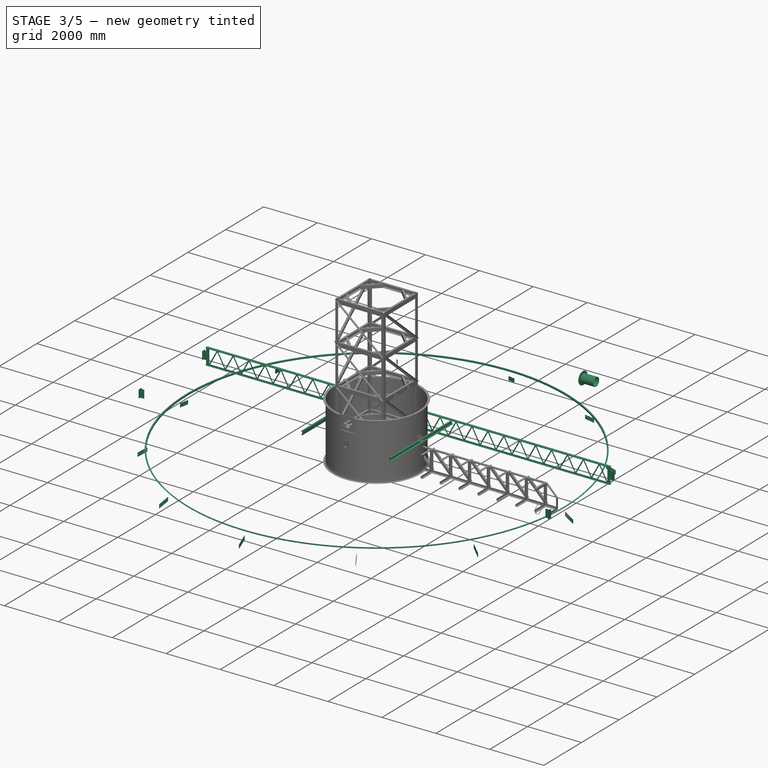
[diagram: stage 3 of 5 — iso view after this stage's code; geometry added in this stage tinted green]
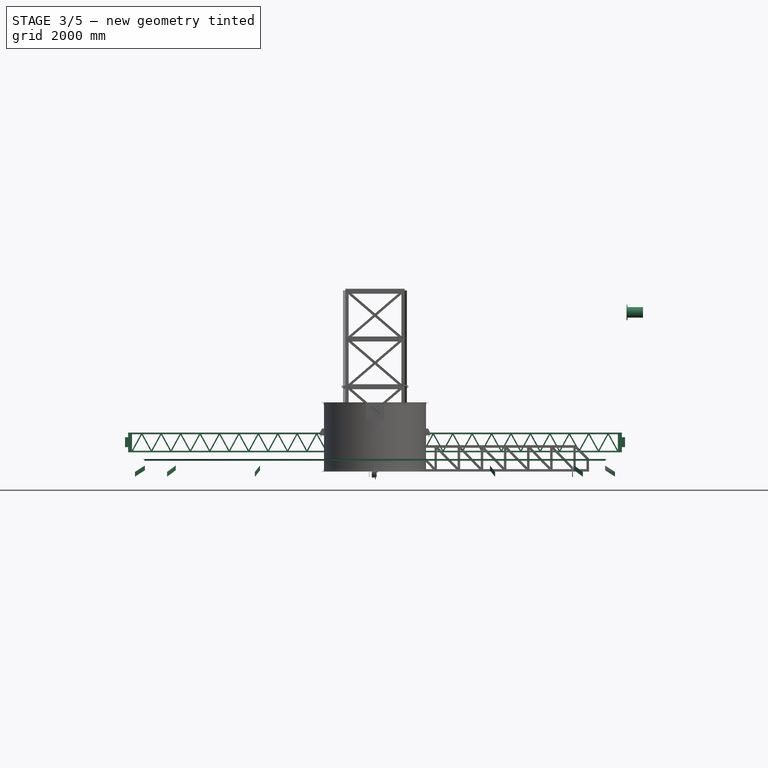
[diagram: stage 3 of 5 — front view after this stage's code; geometry added in this stage tinted green]
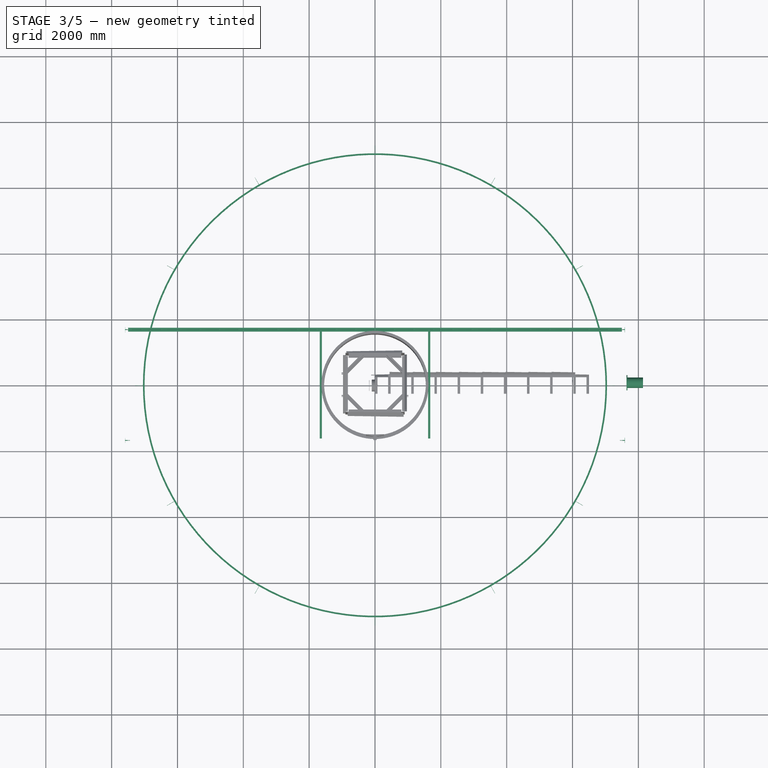
[diagram: stage 3 of 5 — top view after this stage's code; geometry added in this stage tinted green]
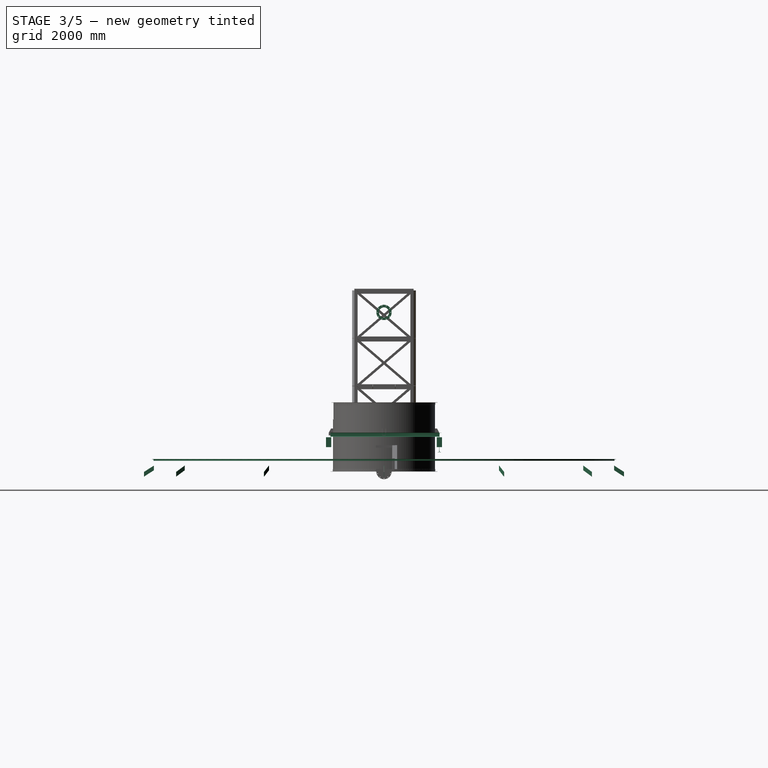
[diagram: stage 3 of 5 — right view after this stage's code; geometry added in this stage tinted green]
FEATURE [Sketcher::SketchObject] Sketch043
  FullyConstrained = true
  MapMode = 5
  Placement = pos=(0,0,0) rot=(1,0,0;1.5708rad)
  expr: Constraints[10] = Spreadsheet003.L7 * 2
  expr: Constraints[9] = Spreadsheet003.B7
  sketch-geometry (4):
    g0: LineSegment StartX=90 StartY=23 StartZ=0 EndX=-8.967e-12 EndY=23 EndZ=0
    g1: ArcOfCircle CenterX=0 CenterY=0 CenterZ=0 NormalX=0 NormalY=0 NormalZ=1 AngleXU=0 Radius=23 StartAngle=1.5708 EndAngle=4.71239
    g2: LineSegment StartX=-9.439e-13 StartY=-23 StartZ=0 EndX=90 EndY=-23 EndZ=0
    g3: LineSegment StartX=90 StartY=-23 StartZ=0 EndX=90 EndY=23 EndZ=0
  constraints (11):
    c: Horizontal(g0)
    c: Tangent(g0,g1) = -1.5708
    c: PointOnObject(g1,g-2)
    c: Coincident(g1,g2)
    c: Horizontal(g2)
    c: Coincident(g2,g3)
    c: Coincident(g3,g0)
    c: Vertical(g3)
    c: Coincident(g-1,g1)
    c: DistanceX(g0,g0) = 90
    c: Distance(g3) = 46
FEATURE [PartDesign::Pad] Pad
  Direction = (0,-1,2e-16)
  Length = 40
  Length2 = 10
  Midplane = true
  Placement = pos=(0,0,0) rot=(1,0,0;1.5708rad)
  Profile = -> Sketch043
  ReferenceAxis = -> Sketch043 [N_Axis]
  Type = 0
  expr: Length = Spreadsheet003.D7
FEATURE [Sketcher::SketchObject] Sketch016
  ExternalGeometry = -> [Pad]
  FullyConstrained = true
  expr: Constraints[17] = Spreadsheet003.G7
  expr: Constraints[18] = Spreadsheet003.G7 / 2
  expr: Constraints[27] = Spreadsheet003.E7 / 2
  expr: Constraints[31] = Spreadsheet003.I7
  expr: Constraints[32] = Spreadsheet003.L7
  expr: Constraints[6] = Spreadsheet003.E7
  expr: Constraints[7] = Spreadsheet003.H7
  sketch-geometry (12):
    g0: LineSegment StartX=-23 StartY=8 StartZ=0 EndX=20 EndY=8 EndZ=0
    g1: LineSegment StartX=22 StartY=12 StartZ=0 EndX=58 EndY=12 EndZ=0
    g2: LineSegment StartX=60 StartY=10 StartZ=0 EndX=60 EndY=-10 EndZ=0
    g3: LineSegment StartX=58 StartY=-12 StartZ=0 EndX=22 EndY=-12 EndZ=0
    g4: LineSegment StartX=20 StartY=-10 StartZ=0 EndX=20 EndY=-8 EndZ=0
    g5: LineSegment StartX=20 StartY=-8 StartZ=0 EndX=-23 EndY=-8 EndZ=0
    g6: LineSegment StartX=-23 StartY=-8 StartZ=0 EndX=-23 EndY=8 EndZ=0
    g7: ArcOfCircle CenterX=22 CenterY=10 CenterZ=0 NormalX=0 NormalY=0 NormalZ=1 AngleXU=0 Radius=2 StartAngle=1.5708 EndAngle=3.14159
    g8: ArcOfCircle CenterX=22 CenterY=-10 CenterZ=0 NormalX=0 NormalY=0 NormalZ=1 AngleXU=0 Radius=2 StartAngle=3.14159 EndAngle=4.71239
    g9: ArcOfCircle CenterX=58 CenterY=-10 CenterZ=0 NormalX=0 NormalY=0 NormalZ=1 AngleXU=0 Radius=2 StartAngle=4.71239 EndAngle=6.28319
    g10: ArcOfCircle CenterX=58 CenterY=10 CenterZ=0 NormalX=0 NormalY=0 NormalZ=1 AngleXU=0 Radius=2 StartAngle=5e-16 EndAngle=1.5708
    g11: LineSegment StartX=20 StartY=8 StartZ=0 EndX=20 EndY=10 EndZ=0
  constraints (33):
    c: Horizontal(g0)
    c: Coincident(g4,g5)
    c: Horizontal(g5)
    c: Coincident(g5,g6)
    c: Coincident(g6,g0)
    c: Vertical(g6)
    c: DistanceY(g6,g6) = 16
    c: DistanceX(g-1,g0) = 20
    c: Horizontal(g1)
    c: Horizontal(g3)
    c: Coincident(g11,g0)
    c: Vertical(g11)
    c: Vertical(g2)
    c: Tangent(g9,g2) = 1.5708
    c: Tangent(g1,g10) = 1.5708
    c: Tangent(g10,g2) = 1.5708
    c: Tangent(g1,g7) = 1.5708
    c: DistanceY(g3,g1) = 24
    c: DistanceY(g-1,g1) = 12
    c: Radius(g10) = 2
    c: Equal(g10,g9)
    c: Equal(g9,g7)
    c: Radius(g8) = 2
    c: Vertical(g4)
    c: Vertical(g4,g0)
    c: Tangent(g8,g4) = 1.5708
    c: Vertical(g8,g8)
    c: DistanceY(g-1,g0) = 8
    c: Tangent(g9,g3) = 1.5708
    c: Tangent(g7,g11) = 1.5708
    c: Coincident(g8,g3)
    c: DistanceX(g2,g-3) = 30
    c: DistanceX(g0,g-1) = 23
FEATURE [Part::Extrusion] Extrude007
  Base = -> Sketch016
  Dir = (0,0,1)
  DirMode = 2
  FaceMakerClass = Part::FaceMakerBullseye
  LengthFwd = 150
  LengthRev = 0
  Solid = true
  Symmetric = true
FEATURE [Part::Cut] Cut013  label="Cut"
  Base = -> Pad
  Tool = -> Extrude007
FEATURE [Spreadsheet::Sheet] Spreadsheet004
  cells = A2='dia; A3='hight  h0
FEATURE [Spreadsheet::Sheet] Spreadsheet005
  cells = A2='dia; A3='hight  h0
FEATURE [App::FeaturePython] axisCoincident_002_mirror  label="axisCoincident_002__Compound014"  # a2plus constraint (typed FeaturePython)
  Object1 = Compound014
  Object2 = Compound013
  SubElement1 = Edge232
  SubElement2 = Edge3627
  Suppressed = false
  Type = axial
  directionConstraint = 0
  lockRotation = false
FEATURE [App::FeaturePython] axisCoincident_003_mirror  label="axisCoincident_003__rakeArm"  # a2plus constraint (typed FeaturePython)
  Object1 = Compound013
  Object2 = centerCage001_001
  SubElement1 = Edge3614
  SubElement2 = Edge1880
  Suppressed = false
  Type = axial
  directionConstraint = 0
  lockRotation = false
FEATURE [Sketcher::SketchObject] Sketch059
  FullyConstrained = true
  Placement = pos=(0,0,0) rot=(1,0,0;1.5708rad)
  expr: Constraints[11] = Spreadsheet006.dia / 2 - 460
  sketch-geometry (4):
    g0: LineSegment StartX=7285 StartY=0 StartZ=0 EndX=7290 EndY=0 EndZ=0
    g1: LineSegment StartX=7290 StartY=0 StartZ=0 EndX=7290 EndY=250 EndZ=0
    g2: LineSegment StartX=7290 StartY=250 StartZ=0 EndX=7285 EndY=250 EndZ=0
    g3: LineSegment StartX=7285 StartY=250 StartZ=0 EndX=7285 EndY=0 EndZ=0
  constraints (12):
    c: Coincident(g0,g1)
    c: Coincident(g1,g2)
    c: Coincident(g2,g3)
    c: Coincident(g3,g0)
    c: Horizontal(g0)
    c: Horizontal(g2)
    c: Vertical(g1)
    c: Vertical(g3)
    c: PointOnObject(g0,g-1)
    c: Distance(g2) = 5
    c: DistanceY(g1,g1) = 250
    c: DistanceX(g-1,g0) = 7290
FEATURE [Part::Revolution] Revolve009
  Angle = 360
  Axis = (0,0,1)
  Base = (0,0,0)
  FaceMakerClass = Part::FaceMakerBullseye
  Solid = true
  Source = -> Sketch059
  Symmetric = false
FEATURE [Sketcher::SketchObject] Sketch060
  ExternalGeometry = -> [Revolve009]
  FullyConstrained = true
  Placement = pos=(0,0,0) rot=(1,0,0;1.5708rad)
  sketch-geometry (3):
    g0: LineSegment StartX=-70 StartY=250 StartZ=0 EndX=70 EndY=250 EndZ=0
    g1: LineSegment StartX=70 StartY=250 StartZ=0 EndX=0 EndY=180 EndZ=0
    g2: LineSegment StartX=0 StartY=180 StartZ=0 EndX=-70 EndY=250 EndZ=0
  constraints (9):
    c: Horizontal(g0)
    c: Coincident(g0,g1)
    c: PointOnObject(g1,g-2)
    c: Coincident(g1,g2)
    c: Coincident(g2,g0)
    c: Angle(g1,g2) = 1.5708
    c: PointOnObject(g0,g-3)
    c: DistanceY(g1,g0) = 70
    c: Angle(g2,g-2) = 2.35619
FEATURE [Part::Extrusion] Extrude039
  Base = -> Sketch060
  Dir = (0,-1,-3e-16)
  DirMode = 2
  FaceMakerClass = Part::FaceMakerBullseye
  LengthFwd = 10000
  LengthRev = 0
  Solid = true
  Symmetric = false
FEATURE [Part::FeaturePython] Array019  # Draft array (typed FeaturePython)
  AlwaysSyncPlacement = false
  Angle = 360
  ArrayType = 1
  Axis = (0,0,1)
  Base = -> Extrude039
  Center = (0,0,0)
  Count = 280
  ExpandArray = false
  Fuse = false
  IntervalAxis = (0,0,0)
  IntervalX = (50,0,0)
  IntervalY = (0,50,0)
  IntervalZ = (0,0,50)
  NumberCircles = 3
  NumberPolar = 280
  NumberX = 2
  NumberY = 2
  NumberZ = 1
  PlacementList = 280 placements: [(0,0,0),(0,0,0),(0,0,0),(0,0,0),(0,0,0),(0,0,0),(0,0,0),(0,0,0),(0,0,0),(0,0,0),(0,0,0),(0,0,0),(0,0,0),(0,0,0),(0,0,0),(0,0,0),(0,0,0),(0,0,0),(0,0,0),(0,0,0),(0,0,0),(0,0,0),(0,0,0),(0,0,0),(0,0,0),(0,0,0),(0,0,0),(0,0,0),(0,0,0),(0,0,0),(0,0,0),(0,0,0),(0,0,0),(0,0,0),(0,0,0),(0,0,0),(0,0,0),(0,0,0),(0,0,0),(0,0,0),(0,0,0),(0,0,0),(0,0,0),(0,0,0),(0,0,0),(0,0,0),(0,0,0),(0,0,0),(0,0,0),(0,0,0),+230 more]
  RadialDistance = 50
  Symmetry = 1
  TangentialDistance = 25
FEATURE [Part::Cut] Cut017  label="weir"
  Base = -> Revolve009
  Tool = -> Array019
FEATURE [Sketcher::SketchObject] Sketch061
  ExternalGeometry = -> [Cut017]
  FullyConstrained = true
  Placement = pos=(0,0,0) rot=(1,0,0;1.5708rad)
  sketch-geometry (4):
    g0: LineSegment StartX=6985 StartY=40 StartZ=0 EndX=6990 EndY=40 EndZ=0
    g1: LineSegment StartX=6990 StartY=40 StartZ=0 EndX=6990 EndY=380 EndZ=0
    g2: LineSegment StartX=6990 StartY=380 StartZ=0 EndX=6985 EndY=380 EndZ=0
    g3: LineSegment StartX=6985 StartY=380 StartZ=0 EndX=6985 EndY=40 EndZ=0
  constraints (12):
    c: Coincident(g0,g1)
    c: Coincident(g1,g2)
    c: Coincident(g2,g3)
    c: Coincident(g3,g0)
    c: Horizontal(g0)
    c: Horizontal(g2)
    c: Vertical(g1)
    c: Vertical(g3)
    c: DistanceX(g2,g2) = 5
    c: DistanceY(g1,g1) = 340
    c: DistanceY(g-3,g1) = 130
    c: DistanceX(g0,g-4) = 300
FEATURE [Part::Revolution] Revolve010
  Angle = 360
  Axis = (0,0,1)
  Base = (0,0,0)
  FaceMakerClass = Part::FaceMakerBullseye
  Solid = true
  Source = -> Sketch061
  Symmetric = false
FEATURE [Part::FeaturePython] AngleSteel013  label="AngleSteel014"  # WARN: FeaturePython — macro-defined, semantics opaque (R4)
  A = 50
  B = 50
  L = 1000
  Placement = pos=(7000,0,474) rot=(0,1,0;1.5708rad)
  Solid = false
  g0 = 7.85
  mass = 0
  size = 7
  standard = SS_Equal
  t = 6
  expr: .Placement.Base.x = Spreadsheet006.dia / 2 - 750
FEATURE [Part::Revolution] Revolve011
  Angle = 360
  Axis = (0,0,1)
  Base = (0,0,0)
  FaceMakerClass = Part::FaceMakerBullseye
  Placement = pos=(0,0,-94) rot=(0,0,1;0rad)
  Solid = false
  Source = -> AngleSteel013
  Symmetric = false
FEATURE [Sketcher::SketchObject] Sketch062
  ExternalGeometry = -> [Revolve010,Cut017]
  FullyConstrained = true
  Placement = pos=(0,0,0) rot=(1,0,0;1.5708rad)
  sketch-geometry (4):
    g0: LineSegment StartX=6990 StartY=40 StartZ=0 EndX=7290 EndY=-152.602 EndZ=0
    g1: LineSegment StartX=7290 StartY=-152.602 StartZ=0 EndX=7290 EndY=-10 EndZ=0
    g2: LineSegment StartX=7290 StartY=-10 StartZ=0 EndX=6990 EndY=182.602 EndZ=0
    g3: LineSegment StartX=6990 StartY=182.602 StartZ=0 EndX=6990 EndY=40 EndZ=0
  constraints (11):
    c: Coincident(g0,g1)
    c: Vertical(g1)
    c: Coincident(g1,g2)
    c: Coincident(g2,g3)
    c: Coincident(g3,g0)
    c: Vertical(g3)
    c: Vertical(g1,g-4)
    c: Distance(g1,g0) = 120
    c: Coincident(g0,g-3)
    c: Parallel(g2,g0)
    c: DistanceY(g1,g-4) = 10
FEATURE [Part::Extrusion] Extrude040
  Base = -> Sketch062
  Dir = (0,-1,-3e-16)
  DirMode = 2
  FaceMakerClass = Part::FaceMakerBullseye
  LengthFwd = 6
  LengthRev = 0
  Solid = true
  Symmetric = true
FEATURE [Part::FeaturePython] Array020  # Draft array (typed FeaturePython)
  AlwaysSyncPlacement = false
  Angle = 360
  ArrayType = 1
  Axis = (0,0,1)
  Base = -> Extrude040
  Center = (0,0,0)
  Count = 12
  ExpandArray = false
  Fuse = false
  IntervalAxis = (0,0,0)
  IntervalX = (50,0,0)
  IntervalY = (0,50,0)
  IntervalZ = (0,0,50)
  NumberCircles = 3
  NumberPolar = 12
  NumberX = 2
  NumberY = 2
  NumberZ = 1
  PlacementList = 12 placements: [(0,0,0),(0,0,0),(0,0,0),(0,0,0),(0,0,0),(0,0,0),(0,0,0),(0,0,0),(0,0,0),(0,0,0),(0,0,0),(0,0,0)]
  RadialDistance = 50
  ScaleList = (12) [(1,1,1),(1,1,1),(1,1,1),(1,1,1),(1,1,1),(1,1,1),(1,1,1),(1,1,1),(1,1,1),(1,1,1),(1,1,1),(1,1,1)]
  Symmetry = 1
  TangentialDistance = 25
FEATURE [Spreadsheet::Sheet] Spreadsheet006
  cells = A3='tankDia dia; B3(dia)=15500; A4='n; B4(n)=12; A5='buffleHight  h0; B5(h0)=230
FEATURE [App::Part] Part015  label="buffle"
  Group = -> [Spreadsheet006,Sketch062,Sketch059,Sketch060,Sketch061,Revolve010,Revolve009,Array019,Cut017,Extrude039,Extrude040,Array020,AngleSteel013,Revolve011]
  Origin = -> Origin019
  Placement = pos=(0,0,4690) rot=(0,0,1;0rad)
FEATURE [Part::FeaturePython] Single_flange_straight_pipe  # WARN: FeaturePython — macro-defined, semantics opaque (R4)
  L = 500
  Placement = pos=(7641.34,-0.223851,4834.33) rot=(0,0,1;0rad)
  dia = 6
  fittings = 06_Single_flange_straight_pipe
  material = 0
  standard = 0
  standard2 = 1
FEATURE [Sketcher::SketchObject] Sketch073
  ExternalGeometry = -> [Extrude053,Extrude052]
  FullyConstrained = false
  Placement = pos=(0,0,0) rot=(1,0,0;1.5708rad)
  expr: Constraints[2] = Spreadsheet008.Gb0
  expr: Constraints[5] = Spreadsheet008.rp0
  expr: Constraints[8] = Spreadsheet008.H0 - 60
  sketch-geometry (3):
    g0: LineSegment StartX=120 StartY=44.4 StartZ=0 EndX=415.2 EndY=584.4 EndZ=0
    g1: LineSegment StartX=415.2 StartY=584.4 StartZ=0 EndX=710.4 EndY=44.4 EndZ=0
    g2: LineSegment StartX=415.2 StartY=584.4 StartZ=0 EndX=415.2 EndY=511.834 EndZ=0
  constraints (9):
    c: Coincident(g0,g1)
    c: Horizontal(g0,g1)
    c: DistanceX(g-1,g0) = 120
    c: Coincident(g2,g0)
    c: Symmetric(g1,g0,g2)
    c: DistanceX(g0,g1) = 590.4
    c: DistanceY(g-1,g-4) = 14.4
    c: DistanceY(g-4,g0) = 30
    c: DistanceY(g0,g0) = 540
FEATURE [Sketcher::SketchObject] Sketch074
  ExternalGeometry = -> [Sketch073,Extrude052]
  FullyConstrained = true
  Placement = pos=(0,0,14.4) rot=(1,0,0;1.5708rad)
  expr: Constraints[23] = Spreadsheet008.Lb0
  expr: Constraints[24] = Spreadsheet008.H0 - 20
  expr: Constraints[25] = Spreadsheet008.Lb0 / 2
  sketch-geometry (9):
    g0: LineSegment StartX=120 StartY=69.6104 StartZ=0 EndX=404.48 EndY=590 EndZ=0
    g1: LineSegment StartX=415.2 StartY=530.39 StartZ=0 EndX=130.72 EndY=10 EndZ=0
    g2: LineSegment StartX=415.2 StartY=530.39 StartZ=0 EndX=699.68 EndY=10 EndZ=0
    g3: LineSegment StartX=710.4 StartY=69.6104 StartZ=0 EndX=425.92 EndY=590 EndZ=0
    g4: LineSegment StartX=404.48 StartY=590 StartZ=0 EndX=425.92 EndY=590 EndZ=0
    g5: LineSegment StartX=699.68 StartY=10 StartZ=0 EndX=710.4 EndY=10 EndZ=0
    g6: LineSegment StartX=710.4 StartY=10 StartZ=0 EndX=710.4 EndY=69.6104 EndZ=0
    g7: LineSegment StartX=130.72 StartY=10 StartZ=0 EndX=120 EndY=10 EndZ=0
    g8: LineSegment StartX=120 StartY=10 StartZ=0 EndX=120 EndY=69.6104 EndZ=0
  constraints (27):
    c: Coincident(g7,g8)
    c: Coincident(g0,g8)
    c: Coincident(g1,g7)
    c: Coincident(g0,g4)
    c: Coincident(g1,g2)
    c: Coincident(g3,g4)
    c: Coincident(g2,g5)
    c: Coincident(g5,g6)
    c: Coincident(g3,g6)
    c: Horizontal(g7)
    c: Horizontal(g4)
    c: Vertical(g8)
    c: Vertical(g7,g-4)
    c: Horizontal(g0,g3)
    c: Horizontal(g5)
    c: Horizontal(g1,g2)
    c: Vertical(g6)
    c: PointOnObject(g-3,g6)
    c: Parallel(g1,g-4)
    c: Parallel(g1,g0)
    c: Parallel(g2,g-3)
    c: Parallel(g-3,g3)
    c: Vertical(g1,g-4)
    c: Distance(g1,g0) = 38
    c: DistanceY(g2,g3) = 580
    c: Distance(g1,g-4) = 19
    c: DistanceY(g-5,g7) = 10
FEATURE [Part::Extrusion] Extrude050
  Base = -> Sketch074
  Dir = (0,-1,2e-16)
  DirMode = 2
  FaceMakerClass = Part::FaceMakerBullseye
  LengthFwd = 6
  LengthRev = 0
  Placement = pos=(0,28.8,0) rot=(0,0,1;0rad)
  Solid = true
  Symmetric = false
FEATURE [Part::FeaturePython] Array022  # Draft array (typed FeaturePython)
  AlwaysSyncPlacement = false
  Angle = 360
  ArrayType = 0
  Axis = (0,0,1)
  Base = -> Extrude050
  Center = (0,0,0)
  Count = 25
  ExpandArray = false
  Fuse = false
  IntervalAxis = (0,0,0)
  IntervalX = (590.4,0,0)
  IntervalY = (0,100,0)
  IntervalZ = (0,0,100)
  NumberCircles = 3
  NumberPolar = 5
  NumberX = 25
  NumberY = 1
  NumberZ = 1
  PlacementList = 25 placements: arithmetic series from (0,28.8,0) step (590.4,0,0) to (14169.6,28.8,0)
  RadialDistance = 50
  ScaleList = (25) [(1,1,1),(1,1,1),(1,1,1),(1,1,1),(1,1,1),(1,1,1),(1,1,1),(1,1,1),(1,1,1),(1,1,1),(1,1,1),(1,1,1),(1,1,1),(1,1,1),(1,1,1),(1,1,1),(1,1,1),(1,1,1),+7 more]
  Symmetry = 1
  TangentialDistance = 25
  expr: .IntervalX.x = Spreadsheet008.rp0
  expr: NumberX = Spreadsheet008.rn0
FEATURE [Sketcher::SketchObject] Sketch075
  ExternalGeometry = -> [Extrude050]
  FullyConstrained = true
  Placement = pos=(0,0,14.4) rot=(1,0,0;1.5708rad)
  expr: Constraints[22] = Spreadsheet008.L0
  sketch-geometry (8):
    g0: LineSegment StartX=0 StartY=10 StartZ=0 EndX=120 EndY=10 EndZ=0
    g1: LineSegment StartX=120 StartY=10 StartZ=0 EndX=120 EndY=590 EndZ=0
    g2: LineSegment StartX=120 StartY=590 StartZ=0 EndX=0 EndY=590 EndZ=0
    g3: LineSegment StartX=0 StartY=590 StartZ=0 EndX=0 EndY=10 EndZ=0
    g4: LineSegment StartX=15000 StartY=590 StartZ=0 EndX=14880 EndY=590 EndZ=0
    g5: LineSegment StartX=14880 StartY=590 StartZ=0 EndX=14880 EndY=10 EndZ=0
    g6: LineSegment StartX=14880 StartY=10 StartZ=0 EndX=15000 EndY=10 EndZ=0
    g7: LineSegment StartX=15000 StartY=10 StartZ=0 EndX=15000 EndY=590 EndZ=0
  constraints (23):
    c: Coincident(g0,g1)
    c: Coincident(g1,g2)
    c: Coincident(g2,g3)
    c: Coincident(g3,g0)
    c: Horizontal(g0)
    c: Horizontal(g2)
    c: Vertical(g1)
    c: Vertical(g3)
    c: Vertical(g-1,g0)
    c: Coincident(g0,g-3)
    c: Horizontal(g1,g-4)
    c: Coincident(g4,g5)
    c: Coincident(g5,g6)
    c: Coincident(g6,g7)
    c: Coincident(g7,g4)
    c: Horizontal(g4)
    c: Horizontal(g6)
    c: Vertical(g5)
    c: Vertical(g7)
    c: Equal(g0,g6)
    c: Horizontal(g6,g0)
    c: Horizontal(g1,g4)
    c: DistanceX(g0,g6) = 15000
FEATURE [Part::Extrusion] Extrude051
  Base = -> Sketch075
  Dir = (0,-1,2e-16)
  DirMode = 2
  FaceMakerClass = Part::FaceMakerBullseye
  LengthFwd = 6
  LengthRev = 0
  Placement = pos=(0,28.8,0) rot=(0,0,1;0rad)
  Solid = true
  Symmetric = false
  expr: LengthFwd = Spreadsheet008.Gt0
FEATURE [Part::FeaturePython] ChannelSteel003  # WARN: FeaturePython — macro-defined, semantics opaque (R4)
  B = 65
  H = 125
  L = 3310
  Placement = pos=(1646.12,-1629.25,3.61e-13) rot=(-1,0,0;1.5708rad)
  Solid = true
  g0 = 7.85
  mass = 39.9831
  size = 2
  standard = SS
  t1 = 6
  t2 = 8
FEATURE [Part::Mirroring] Mirror018  label="ChannelSteel (mirrored)001"
  Base = (0,0,0)
  Normal = (1,0,0)
  Source = -> ChannelSteel003
FEATURE [Part::Compound] Compound020
  Links = -> [Mirror018,ChannelSteel003]
  Placement = pos=(0,0,1121) rot=(0,0,1;0rad)
FEATURE [Sketcher::SketchObject] Sketch076
  FullyConstrained = true
  Placement = pos=(0,0,0) rot=(1,0,0;1.5708rad)
  sketch-geometry (4):
    g0: LineSegment StartX=0 StartY=0 StartZ=0 EndX=150 EndY=0 EndZ=0
    g1: LineSegment StartX=150 StartY=0 StartZ=0 EndX=150 EndY=300 EndZ=0
    g2: LineSegment StartX=150 StartY=300 StartZ=0 EndX=0 EndY=300 EndZ=0
    g3: LineSegment StartX=0 StartY=300 StartZ=0 EndX=0 EndY=0 EndZ=0
  constraints (11):
    c: Coincident(g0,g1)
    c: Coincident(g1,g2)
    c: Coincident(g2,g3)
    c: Coincident(g3,g0)
    c: Horizontal(g0)
    c: Horizontal(g2)
    c: Vertical(g1)
    c: Vertical(g3)
    c: Coincident(g0,g-1)
    c: DistanceX(g2,g2) = 150
    c: DistanceY(g1,g1) = 300
FEATURE [Part::Extrusion] Extrude054
  Base = -> Sketch076
  Dir = (0,-1,-3e-16)
  DirMode = 2
  FaceMakerClass = Part::FaceMakerBullseye
  LengthFwd = 6
  LengthRev = 0
  Solid = true
  Symmetric = true
FEATURE [Part::FeaturePython] AngleSteel017  label="AngleSteel018"  # WARN: FeaturePython — macro-defined, semantics opaque (R4)
  A = 75
  B = 75
  L = 300
  Placement = pos=(117.5,40.5,0) rot=(0,0,1;3.14159rad)
  Solid = true
  g0 = 7.85
  mass = 2.05506
  size = 10
  standard = SS_Equal
  t = 6
FEATURE [Part::Mirroring] Mirror019  label="AngleSteel003 (mirrored)001"
  Base = (200,0,0)
  Normal = (0,1,0)
  Source = -> AngleSteel017
FEATURE [Part::Compound] Compound021  label="gusset002"
  Links = -> [Extrude054,Mirror019,AngleSteel017]
  Placement = pos=(7439.81,-1682.19,854.161) rot=(0,0,1;0rad)
FEATURE [Part::Mirroring] Mirror020  label="gusset001 (mirrored)002"
  Base = (4000,0,0)
  Normal = (0,1,0)
  Source = -> Compound021
FEATURE [Part::Mirroring] Mirror021  label="gusset001 (mirrored) (mirrored)001"
  Base = (0,0,0)
  Normal = (-1,0,0)
  Source = -> Mirror020
FEATURE [Part::Mirroring] Mirror022  label="gusset001 (mirrored)003"
  Base = (0,0,0)
  Normal = (-1,0,0)
  Source = -> Compound021
FEATURE [Part::Compound] Compound022
  Links = -> [Mirror017,Fusion001]
FEATURE [App::Part] Part019  label="latticeBeam001"
  Group = -> [Spreadsheet008,Sketch073,Sketch075,Sketch074,Fusion001,Mirror016,Mirror017,Extrude050,Extrude051,Extrude053,Extrude052,Array022,AngleSteel016,Compound022]
  Origin = -> Origin022
  Placement = pos=(-7500,-1707.82,569.04) rot=(0,0,1;0rad)
FEATURE [Part::Compound] Compound023
  Links = -> [Mirror021,Mirror022,Mirror020,Compound021]
  Placement = pos=(0,0,-110) rot=(0,0,1;0rad)
FEATURE [Part::Mirroring] Mirror023  label="latticeBeam (mirrored)001"
  Base = (-1000,0,0)
  Normal = (0,1,0)
  Source = -> Part019
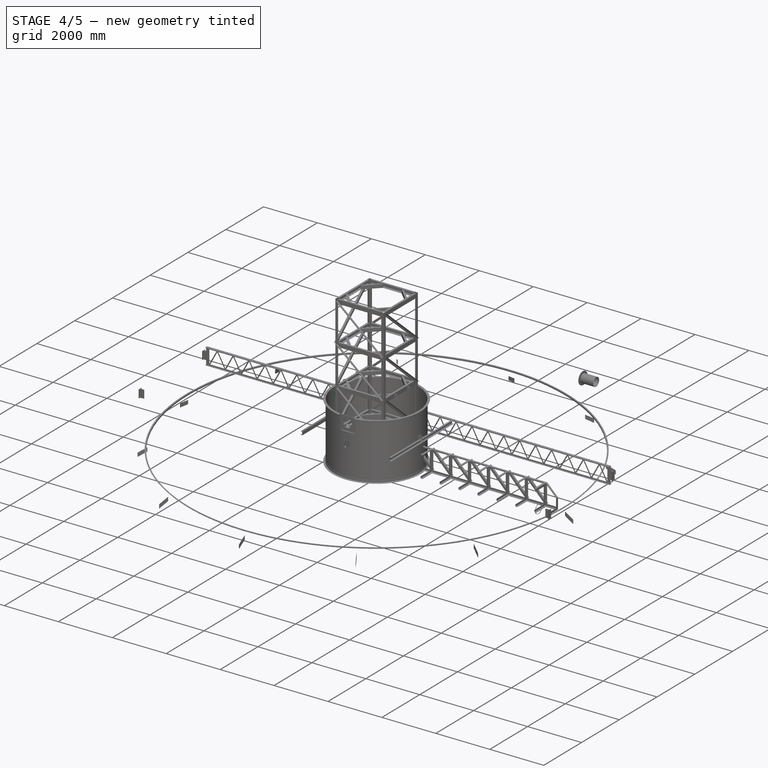
[diagram: stage 4 of 5 — iso view after this stage's code; geometry added in this stage tinted green]
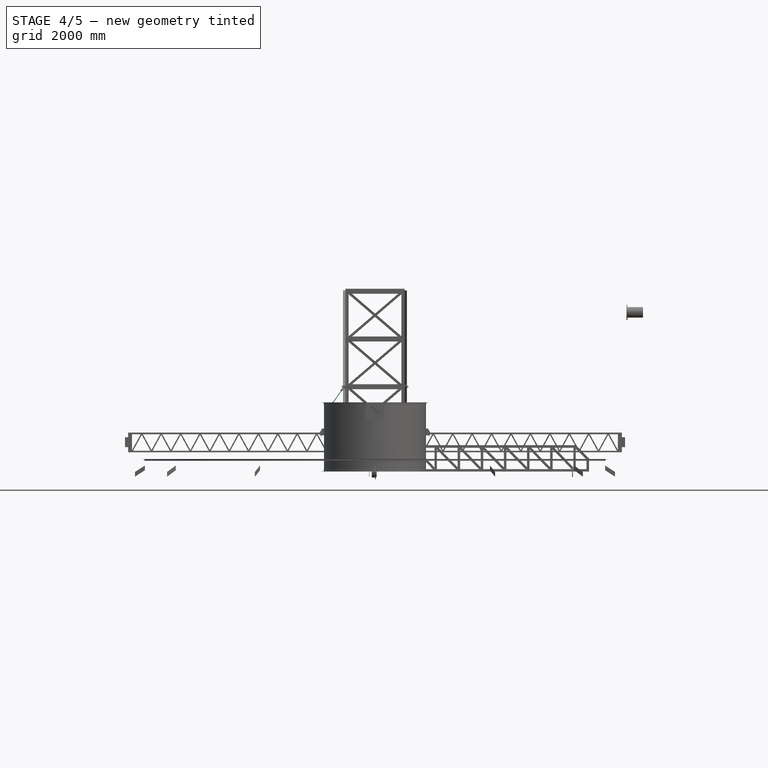
[diagram: stage 4 of 5 — front view after this stage's code; geometry added in this stage tinted green]
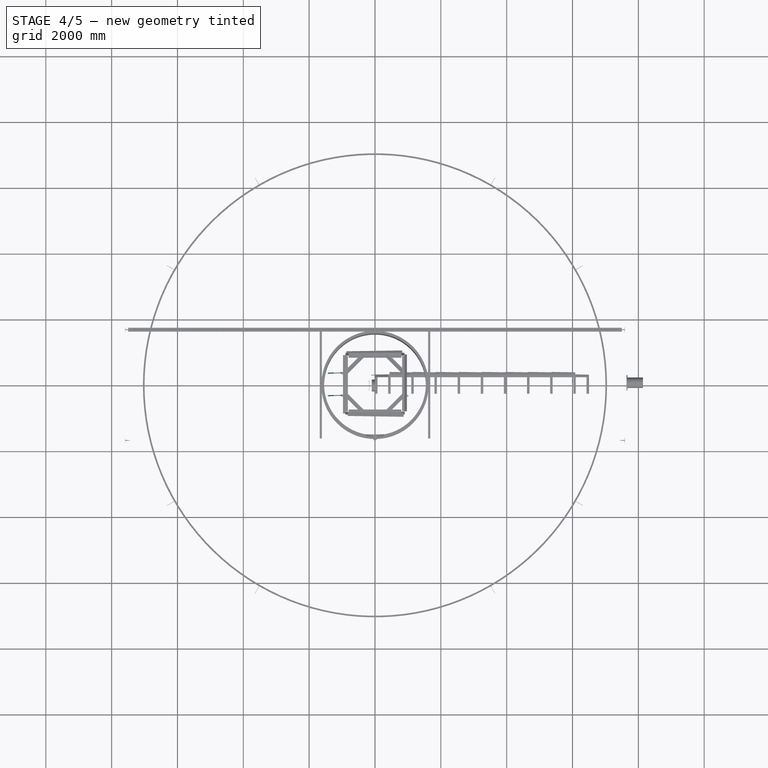
[diagram: stage 4 of 5 — top view after this stage's code; geometry added in this stage tinted green]
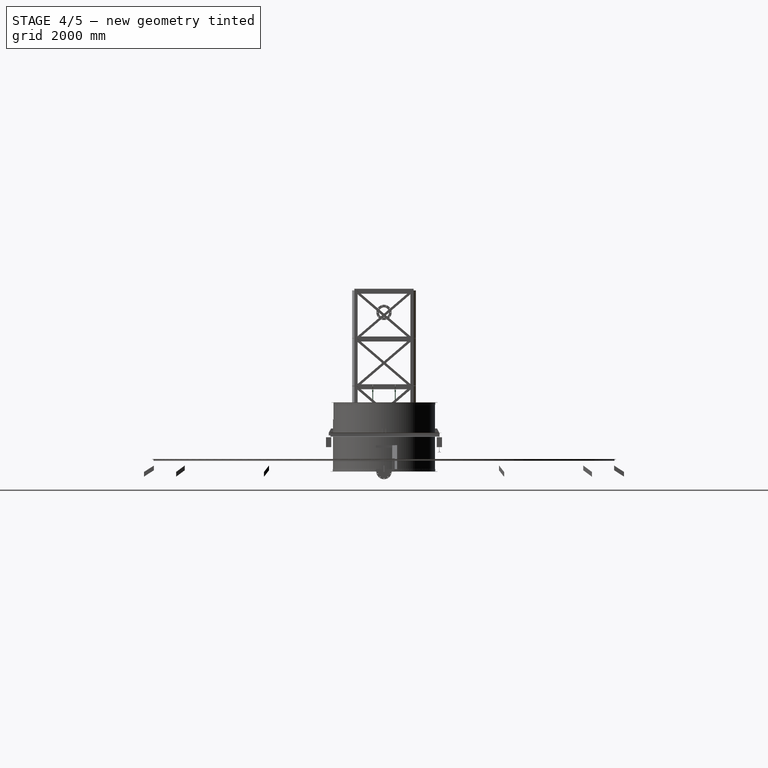
[diagram: stage 4 of 5 — right view after this stage's code; geometry added in this stage tinted green]
FEATURE [PartDesign::Body] Body
  Origin = -> Origin011
  Placement = pos=(0,-400,0) rot=(0,0,1;0rad)
FEATURE [Sketcher::SketchObject] Sketch007
  FullyConstrained = true
  MapMode = 5
  Placement = pos=(0,0,0) rot=(1,0,0;1.5708rad)
  Support = -> [XZ_Plane011]
  expr: Constraints[10] = Spreadsheet002.W0 / 2
  expr: Constraints[15] = Spreadsheet002.hg
  expr: Constraints[9] = Spreadsheet002.hg * 2
  sketch-geometry (7):
    g0: LineSegment StartX=900 StartY=0 StartZ=0 EndX=900 EndY=150 EndZ=0
    g1: LineSegment StartX=900 StartY=150 StartZ=0 EndX=930 EndY=150 EndZ=0
    g2: LineSegment StartX=930 StartY=150 StartZ=0 EndX=999.298 EndY=104.199 EndZ=0
    g3: ArcOfCircle CenterX=980 CenterY=75 CenterZ=0 NormalX=0 NormalY=0 NormalZ=1 AngleXU=0 Radius=35 StartAngle=5.29641 EndAngle=7.26996
    g4: LineSegment StartX=999.298 StartY=45.8011 StartZ=0 EndX=930 EndY=0 EndZ=0
    g5: LineSegment StartX=930 StartY=0 StartZ=0 EndX=900 EndY=0 EndZ=0
    g6: Circle CenterX=980 CenterY=75 CenterZ=0 NormalX=0 NormalY=0 NormalZ=1 AngleXU=0 Radius=15
  constraints (19):
    c: Vertical(g0)
    c: Coincident(g0,g1)
    c: Horizontal(g1)
    c: Coincident(g1,g2)
    c: Tangent(g2,g3) = 1.5708
    c: Coincident(g4,g5)
    c: Coincident(g5,g0)
    c: Horizontal(g5)
    c: Coincident(g6,g3)
    c: DistanceY(g0,g0) = 150
    c: DistanceX(g-1,g0) = 900
    c: PointOnObject(g0,g-1)
    c: Vertical(g4,g1)
    c: DistanceX(g0,g3) = 80
    c: Tangent(g3,g4) = 1.5708
    c: DistanceY(g3,g1) = 75
    c: Radius(g6) = 15
    c: Radius(g3) = 35
    c: DistanceX(g0,g4) = 30
FEATURE [PartDesign::Pad] Pad001
  Direction = (0,-1,-2e-16)
  Length = 48
  Length2 = 10
  Midplane = true
  Placement = pos=(0,0,0) rot=(1,0,0;1.5708rad)
  Profile = -> Sketch007
  ReferenceAxis = -> Sketch007 [N_Axis]
  Type = 0
FEATURE [Sketcher::SketchObject] Sketch008
  ExternalGeometry = -> [Pad001]
  FullyConstrained = true
  MapMode = 5
  Placement = pos=(0,0,8.9e-14) rot=(1,0,0;3.14159rad)
  sketch-geometry (4):
    g0: LineSegment StartX=900 StartY=-8 StartZ=0 EndX=1050 EndY=-8 EndZ=0
    g1: LineSegment StartX=1050 StartY=-8 StartZ=0 EndX=1050 EndY=8 EndZ=0
    g2: LineSegment StartX=1050 StartY=8 StartZ=0 EndX=900 EndY=8 EndZ=0
    g3: LineSegment StartX=900 StartY=8 StartZ=0 EndX=900 EndY=-8 EndZ=0
  constraints (12):
    c: Coincident(g0,g1)
    c: Coincident(g1,g2)
    c: Coincident(g2,g3)
    c: Coincident(g3,g0)
    c: Horizontal(g0)
    c: Horizontal(g2)
    c: Vertical(g1)
    c: Vertical(g3)
    c: Distance(g1) = 16
    c: PointOnObject(g2,g-4)
    c: DistanceY(g2,g-4) = 16
    c: DistanceX(g2,g2) = 150
FEATURE [Part::Extrusion] Extrude017
  Base = -> Sketch008
  Dir = (0,0,-1)
  DirMode = 2
  FaceMakerClass = Part::FaceMakerBullseye
  LengthFwd = 150
  LengthRev = 0
  Reversed = true
  Solid = true
  Symmetric = false
FEATURE [Part::Cut] Cut001
  Base = -> Pad001
  Placement = pos=(0,-341,0) rot=(0,0,1;0rad)
  Tool = -> Extrude017
  expr: .Placement.Base.y = -Spreadsheet002.rw / 2 - 16
FEATURE [Part::Mirroring] Mirror006  label="Cut001 (mirrored)"
  Base = (0,0,400)
  Normal = (0,-1,0)
  Source = -> Cut001
FEATURE [Part::Compound] Compound005
  Links = -> [Mirror006,Cut001]
FEATURE [Sketcher::SketchObject] Sketch032
  ExternalGeometry = -> [Compound005]
  FullyConstrained = true
  Placement = pos=(0,0,0) rot=(1,0,0;1.5708rad)
  expr: Constraints[17] = Spreadsheet002.p0
  sketch-geometry (7):
    g0: LineSegment StartX=900 StartY=1462.5 StartZ=0 EndX=900 EndY=1587.5 EndZ=0
    g1: LineSegment StartX=900 StartY=1587.5 StartZ=0 EndX=930 EndY=1587.5 EndZ=0
    g2: LineSegment StartX=930 StartY=1587.5 StartZ=0 EndX=995.018 EndY=1556.61 EndZ=0
    g3: ArcOfCircle CenterX=980 CenterY=1525 CenterZ=0 NormalX=0 NormalY=0 NormalZ=1 AngleXU=0 Radius=35 StartAngle=5.15587 EndAngle=7.41051
    g4: LineSegment StartX=995.018 StartY=1493.39 StartZ=0 EndX=930 EndY=1462.5 EndZ=0
    g5: LineSegment StartX=930 StartY=1462.5 StartZ=0 EndX=900 EndY=1462.5 EndZ=0
    g6: Circle CenterX=980 CenterY=1525 CenterZ=0 NormalX=0 NormalY=0 NormalZ=1 AngleXU=0 Radius=15
  constraints (19):
    c: Vertical(g0)
    c: Coincident(g0,g1)
    c: Horizontal(g1)
    c: Coincident(g1,g2)
    c: Tangent(g2,g3) = 1.5708
    c: Coincident(g4,g5)
    c: Coincident(g5,g0)
    c: Horizontal(g5)
    c: Coincident(g6,g3)
    c: Radius(g6) = 15
    c: Radius(g3) = 35
    c: DistanceX(g1,g1) = 30
    c: Distance(g3,g0) = 80
    c: Tangent(g3,g4) = 1.5708
    c: Equal(g5,g1)
    c: Equal(g4,g2)
    c: Distance(g0) = 125
    c: DistanceY(g-3,g3) = 1450
    c: Vertical(g-3,g3)
FEATURE [Part::Extrusion] Extrude018
  Base = -> Sketch032
  Dir = (0,-1,2e-16)
  DirMode = 2
  FaceMakerClass = Part::FaceMakerBullseye
  LengthFwd = 16
  LengthRev = 0
  Placement = pos=(0,-341,0) rot=(0,0,1;0rad)
  Solid = true
  Symmetric = true
  expr: .Placement.Base.y = -325 - 16
FEATURE [Part::Mirroring] Mirror007  label="Extrude (mirrored)"
  Base = (0,0,1500)
  Normal = (0,1,0)
  Source = -> Extrude018
FEATURE [Spreadsheet::Sheet] Spreadsheet003
  cells = A2='rodDia dia; B2(dia)=20; A3='length L0; B3(L0)=760; B4='l; C4='l1; D4='a; E4='b; F4='c; G4='e; H4='f; I4='g; J4='h; K4='i; L4='r; A5='forkEndR; B5=120; D5=40; E5=16; F5=21; G5=24; H5=20; I5=60; J5=10; K5=20; L5=23; A6='turnBackle; B6=150; C6=28; D6=42; E6=23; F6=33; A7='forkEndL; B7=90; D7=40; E7=16; F7=20; G7=24; H7=20; I7=30; L7=23; A8=1; B8=2; C8=3; D8=4; E8=5; F8=6; G8=7; H8=8; I8=9; J8=10; K8=11; L8=12; A9='turnBackle; A10='d; B10='l; C10='l1; D10='a; E10='b; F10='c; A11=10; B11=75; C11=15; D11=24; E11=13; F11=17; A12=12; B12=100; C12=20; D12=30; E12=16; F12=22; A13=16; B13=125; C13=24; D13=36; E13=20; F13=27; A14=20; B14=150; C14=28; D14=42; E14=23; F14=33; A15=22; B15=175; C15=33; D15=48; E15=27; F15=37; A16=24; B16=200; C16=38; D16=54; E16=30; F16=42; A17=30; B17=250; C17=47; D17=66; E17=37; F17=52; A18='forkEnd_L; A19='d; B19='l; C19='a; D19='b; E19='c; F19='e; G19='f; H19='g; I19='r; A20=10; B20=50; C20=20; D20=7; E20=10; F20=12; G20=10; H20=15; I20=12; A21=12; B21=60; C21=25; D21=10; E21=13; F21=16; G21=13; H21=20; I21=15; A22=16; B22=75; C22=30; D22=13; E22=16; F22=20; G22=16; H22=25; I22=19; A23=20; B23=90; C23=40; D23=16; E23=20; F23=24; G23=20; H23=30; I23=23; A24=22; B24=100; C24=45; D24=20; E24=23; F24=28; G24=23; H24=35; I24=27; A25=24; B25=115; C25=50; D25=23; E25=26; F25=32; G25=26; H25=40; I25=30; A26=30; B26=140; C26=65; D26=30; E26=33; F26=40; G26=33; H26=50; I26=38; A27='forkEnd_R; A28='d; B28='l; C28='a; D28='b; E28='c; F28='r; G28='e; H28='f; I28='g; J28='h; K28='i; A29=10; B29=60; C29=20; D29=7; E29=11; F29=12; G29=12; H29=10; I29=30; J29=5; K29=10; A30=12; B30=80; +64 more cells
FEATURE [Sketcher::SketchObject] Sketch044
  FullyConstrained = true
  MapMode = 5
  Placement = pos=(0,-20,8.8e-15) rot=(1,0,0;1.5708rad)
  Support = -> [Pad]
  expr: Constraints[1] = Spreadsheet003.F7 / 2
  sketch-geometry (1):
    g0: Circle CenterX=0 CenterY=0 CenterZ=0 NormalX=0 NormalY=0 NormalZ=1 AngleXU=0 Radius=10
  constraints (2):
    c: Coincident(g0,g-1)
    c: Radius(g0) = 10
FEATURE [Part::Extrusion] Extrude026
  Base = -> Sketch044
  Dir = (0,-1,4e-16)
  DirMode = 2
  FaceMakerClass = Part::FaceMakerBullseye
  LengthFwd = 65
  LengthRev = 0
  Reversed = true
  Solid = true
  Symmetric = false
FEATURE [Sketcher::SketchObject] Sketch009
  FullyConstrained = true
  Placement = pos=(0,0,0) rot=(1,0,0;1.5708rad)
  expr: Constraints[11] = Spreadsheet003.I5
  expr: Constraints[1] = Spreadsheet003.F5 / 2
  expr: Constraints[3] = Spreadsheet003.L5
  sketch-geometry (5):
    g0: Circle CenterX=0 CenterY=0 CenterZ=0 NormalX=0 NormalY=0 NormalZ=1 AngleXU=0 Radius=10.5
    g1: ArcOfCircle CenterX=0 CenterY=0 CenterZ=0 NormalX=0 NormalY=0 NormalZ=1 AngleXU=0 Radius=23 StartAngle=4.71239 EndAngle=7.85398
    g2: LineSegment StartX=-1.34e-14 StartY=23 StartZ=0 EndX=-60 EndY=23 EndZ=0
    g3: LineSegment StartX=-60 StartY=23 StartZ=0 EndX=-60 EndY=-23 EndZ=0
    g4: LineSegment StartX=-60 StartY=-23 StartZ=0 EndX=-7.1e-15 EndY=-23 EndZ=0
  constraints (12):
    c: Coincident(g0,g-1)
    c: Radius(g0) = 10.5
    c: Coincident(g1,g0)
    c: Radius(g1) = 23
    c: Horizontal(g2)
    c: Coincident(g2,g3)
    c: Vertical(g3)
    c: Coincident(g3,g4)
    c: Horizontal(g4)
    c: Tangent(g1,g2) = -1.5708
    c: Tangent(g1,g4) = -1.5708
    c: Distance(g2) = 60
FEATURE [Part::Extrusion] Extrude027  label="Extrude002"
  Base = -> Sketch009
  Dir = (0,-1,2e-16)
  DirMode = 2
  FaceMakerClass = Part::FaceMakerBullseye
  LengthFwd = 40
  LengthRev = 0
  Solid = true
  Symmetric = true
  expr: LengthFwd = Spreadsheet003.D5
FEATURE [Sketcher::SketchObject] Sketch010
  ExternalGeometry = -> [Extrude027]
  FullyConstrained = true
  MapMode = 5
  Placement = pos=(0,5.1e-15,23) rot=(0,0,1;0rad)
  Support = -> [Extrude027]
  expr: Constraints[10] = Spreadsheet003.E5
  expr: Constraints[24] = Spreadsheet003.G5
  expr: Constraints[25] = Spreadsheet003.K5
  expr: Constraints[26] = Spreadsheet003.H5
  expr: Constraints[31] = Spreadsheet003.E5 / 2
  expr: Constraints[32] = Spreadsheet003.G5 / 2
  expr: Constraints[9] = Spreadsheet003.L5
  sketch-geometry (12):
    g0: LineSegment StartX=23 StartY=8 StartZ=0 EndX=-20 EndY=8 EndZ=0
    g1: LineSegment StartX=-21 StartY=12 StartZ=0 EndX=-39 EndY=12 EndZ=0
    g2: LineSegment StartX=-40 StartY=11 StartZ=0 EndX=-40 EndY=-11 EndZ=0
    g3: LineSegment StartX=-39 StartY=-12 StartZ=0 EndX=-21 EndY=-12 EndZ=0
    g4: LineSegment StartX=-20 StartY=-11 StartZ=0 EndX=-20 EndY=-8 EndZ=0
    g5: LineSegment StartX=-20 StartY=-8 StartZ=0 EndX=23 EndY=-8 EndZ=0
    g6: LineSegment StartX=23 StartY=-8 StartZ=0 EndX=23 EndY=8 EndZ=0
    g7: ArcOfCircle CenterX=-21 CenterY=11 CenterZ=0 NormalX=0 NormalY=0 NormalZ=1 AngleXU=0 Radius=1 StartAngle=6.28317 EndAngle=7.85398
    g8: ArcOfCircle CenterX=-21 CenterY=-11 CenterZ=0 NormalX=0 NormalY=0 NormalZ=1 AngleXU=0 Radius=1 StartAngle=4.71239 EndAngle=6.28319
    g9: ArcOfCircle CenterX=-39 CenterY=11 CenterZ=0 NormalX=0 NormalY=0 NormalZ=1 AngleXU=0 Radius=1 StartAngle=1.5708 EndAngle=3.14159
    g10: ArcOfCircle CenterX=-39 CenterY=-11 CenterZ=0 NormalX=0 NormalY=0 NormalZ=1 AngleXU=0 Radius=1 StartAngle=3.14159 EndAngle=4.71239
    g11: LineSegment StartX=-20 StartY=8 StartZ=0 EndX=-20 EndY=11 EndZ=0
  constraints (33):
    c: Horizontal(g0)
    c: Horizontal(g1)
    c: Vertical(g2)
    c: Horizontal(g3)
    c: Coincident(g4,g5)
    c: Horizontal(g5)
    c: Coincident(g5,g6)
    c: Coincident(g6,g0)
    c: Vertical(g6)
    c: DistanceX(g-1,g5) = 23
    c: Distance(g6) = 16
    c: Vertical(g4)
    c: Vertical(g4,g0)
    c: Tangent(g1,g7) = -1.5708
    c: Tangent(g4,g8) = -1.5708
    c: Tangent(g3,g8) = -1.5708
    c: Tangent(g2,g9) = -1.5708
    c: Tangent(g1,g9) = -1.5708
    c: Tangent(g3,g10) = -1.5708
    c: Tangent(g2,g10) = -1.5708
    c: Radius(g7) = 1
    c: Radius(g8) = 1
    c: Equal(g10,g9)
    c: Radius(g10) = 1
    c: DistanceY(g3,g1) = 24
    c: DistanceX(g-3,g2) = 20
    c: DistanceX(g4,g-1) = 20
    c: Equal(g3,g1)
    c: Coincident(g11,g0)
    c: Coincident(g11,g7)
    c: Vertical(g11)
    c: DistanceY(g-1,g0) = 8
    c: DistanceY(g-1,g1) = 12
FEATURE [Part::Extrusion] Extrude028  label="Extrude003"
  Base = -> Sketch010
  Dir = (0,2e-16,1)
  DirMode = 2
  FaceMakerClass = Part::FaceMakerBullseye
  LengthFwd = 80
  LengthRev = 0
  Reversed = true
  Solid = true
  Symmetric = false
FEATURE [Part::Cut] Cut003
  Base = -> Extrude027
  Tool = -> Extrude028
FEATURE [Part::Cylinder] Cylinder  label="円柱"
  Angle = 360
  AttacherType = Attacher::AttachEngine3D
  FirstAngle = 0
  Height = 120
  Placement = pos=(-60,0,0) rot=(0,-1,0;1.5708rad)
  Radius = 10
  SecondAngle = 0
  expr: .Placement.Base.x = -Spreadsheet003.I5
  expr: Height = Spreadsheet003.B5
  expr: Radius = Spreadsheet003.dia / 2
FEATURE [Part::MultiFuse] Fusion  label="forkEndR"
  Shapes = -> [Cut003,Cylinder]
FEATURE [Sketcher::SketchObject] Sketch011
  FullyConstrained = true
  Placement = pos=(0,0,0) rot=(1,0,0;1.5708rad)
  expr: Constraints[10] = Spreadsheet003.C6
  expr: Constraints[11] = Spreadsheet003.B6
  expr: Constraints[12] = Spreadsheet003.D6 / 2
  expr: Constraints[13] = Spreadsheet003.F6 / 2
  expr: Constraints[14] = Spreadsheet003.B6 / 2
  expr: Constraints[17] = Spreadsheet003.C6
  sketch-geometry (6):
    g0: LineSegment StartX=-75 StartY=0 StartZ=0 EndX=-75 EndY=16.5 EndZ=0
    g1: LineSegment StartX=-75 StartY=16.5 StartZ=0 EndX=-47 EndY=21 EndZ=0
    g2: LineSegment StartX=-47 StartY=21 StartZ=0 EndX=47 EndY=21 EndZ=0
    g3: LineSegment StartX=47 StartY=21 StartZ=0 EndX=75 EndY=16.5 EndZ=0
    g4: LineSegment StartX=75 StartY=16.5 StartZ=0 EndX=75 EndY=0 EndZ=0
    g5: LineSegment StartX=75 StartY=0 StartZ=0 EndX=-75 EndY=0 EndZ=0
  constraints (18):
    c: PointOnObject(g0,g-1)
    c: Vertical(g0)
    c: Coincident(g0,g1)
    c: Coincident(g1,g2)
    c: Horizontal(g2)
    c: Coincident(g2,g3)
    c: Coincident(g3,g4)
    c: PointOnObject(g4,g-1)
    c: Vertical(g4)
    c: Coincident(g4,g5)
    c: DistanceX(g2,g3) = 28
    c: DistanceX(g0,g3) = 150
    c: Distance(g1,g5) = 21
    c: Distance(g4) = 16.5
    c: DistanceX(g-1,g4) = 75
    c: Horizontal(g0,g3)
    c: Coincident(g5,g0)
    c: DistanceX(g0,g1) = 28
FEATURE [Part::Revolution] Revolve005  label="Revolve"
  Angle = 360
  Axis = (-1,0,0)
  AxisLink = -> Sketch011 [Edge6]
  Base = (-75,0,0)
  FaceMakerClass = Part::FaceMakerBullseye
  Solid = true
  Source = -> Sketch011
  Symmetric = false
FEATURE [Sketcher::SketchObject] Sketch012
  FullyConstrained = false
  Placement = pos=(0,0,0) rot=(0.57735,0.57735,0.57735;2.0944rad)
  expr: Constraints[16] = Spreadsheet003.F6
  expr: Constraints[17] = Spreadsheet003.F6 / 2
  sketch-geometry (8):
    g0: LineSegment StartX=-16.5 StartY=39.685 StartZ=0 EndX=-31.5 EndY=39.685 EndZ=0
    g1: LineSegment StartX=-31.5 StartY=39.685 StartZ=0 EndX=-31.5 EndY=-39.3666 EndZ=0
    g2: LineSegment StartX=-31.5 StartY=-39.3666 StartZ=0 EndX=-16.5 EndY=-39.3666 EndZ=0
    g3: LineSegment StartX=-16.5 StartY=-39.3666 StartZ=0 EndX=-16.5 EndY=39.685 EndZ=0
    g4: LineSegment StartX=16.5 StartY=39.685 StartZ=0 EndX=31.5 EndY=39.685 EndZ=0
    g5: LineSegment StartX=31.5 StartY=39.685 StartZ=0 EndX=31.5 EndY=-40.315 EndZ=0
    g6: LineSegment StartX=31.5 StartY=-40.315 StartZ=0 EndX=16.5 EndY=-40.315 EndZ=0
    g7: LineSegment StartX=16.5 StartY=-40.315 StartZ=0 EndX=16.5 EndY=39.685 EndZ=0
  constraints (22):
    c: Coincident(g0,g1)
    c: Coincident(g1,g2)
    c: Coincident(g2,g3)
    c: Coincident(g3,g0)
    c: Horizontal(g0)
    c: Horizontal(g2)
    c: Vertical(g1)
    c: Vertical(g3)
    c: Coincident(g4,g5)
    c: Coincident(g5,g6)
    c: Coincident(g6,g7)
    c: Coincident(g7,g4)
    c: Horizontal(g4)
    c: Horizontal(g6)
    c: Vertical(g5)
    c: Vertical(g7)
    c: DistanceX(g0,g4) = 33
    c: Distance(g-1,g7) = 16.5
    c: Distance(g5) = 80
    c: Distance(g4) = 15
    c: Distance(g0) = 15
    c: Horizontal(g0,g4)
FEATURE [Part::Extrusion] Extrude029  label="Extrude004"
  Base = -> Sketch012
  Dir = (1,0,0)
  DirMode = 2
  FaceMakerClass = Part::FaceMakerBullseye
  LengthFwd = 300
  LengthRev = 0
  Solid = true
  Symmetric = true
FEATURE [Part::Cut] Cut004
  Base = -> Revolve005
  Tool = -> Extrude029
FEATURE [Sketcher::SketchObject] Sketch013
  FullyConstrained = true
  Placement = pos=(0,0,0) rot=(1,0,0;1.5708rad)
  expr: Constraints[17] = Spreadsheet003.E6
  expr: Constraints[18] = Spreadsheet003.B6 - 2 * Spreadsheet003.C6
  expr: Constraints[19] = (Spreadsheet003.B6 - 2 * Spreadsheet003.C6) / 2
  expr: Constraints[20] = Spreadsheet003.E6 / 2
  sketch-geometry (9):
    g0: LineSegment StartX=47 StartY=6.5 StartZ=0 EndX=47 EndY=-6.5 EndZ=0
    g1: LineSegment StartX=42 StartY=-11.5 StartZ=0 EndX=-42 EndY=-11.5 EndZ=0
    g2: LineSegment StartX=-47 StartY=-6.5 StartZ=0 EndX=-47 EndY=6.5 EndZ=0
    g3: LineSegment StartX=-42 StartY=11.5 StartZ=0 EndX=42 EndY=11.5 EndZ=0
    g4: GeomPoint X=0 Y=0 Z=0
    g5: ArcOfCircle CenterX=-42 CenterY=6.5 CenterZ=0 NormalX=0 NormalY=0 NormalZ=1 AngleXU=0 Radius=5 StartAngle=1.5708 EndAngle=3.14159
    g6: ArcOfCircle CenterX=-42 CenterY=-6.5 CenterZ=0 NormalX=0 NormalY=0 NormalZ=1 AngleXU=0 Radius=5 StartAngle=3.14159 EndAngle=4.71239
    g7: ArcOfCircle CenterX=42 CenterY=-6.5 CenterZ=0 NormalX=0 NormalY=0 NormalZ=1 AngleXU=0 Radius=5 StartAngle=4.71239 EndAngle=6.28319
    g8: ArcOfCircle CenterX=42 CenterY=6.5 CenterZ=0 NormalX=0 NormalY=0 NormalZ=1 AngleXU=0 Radius=5 StartAngle=0 EndAngle=1.5708
  constraints (21):
    c: Horizontal(g1)
    c: Horizontal(g3)
    c: Vertical(g0)
    c: Vertical(g2)
    c: Coincident(g4,g-1)
    c: Tangent(g3,g5) = 1.5708
    c: Tangent(g2,g5) = 1.5708
    c: Tangent(g1,g6) = 1.5708
    c: Tangent(g2,g6) = 1.5708
    c: Tangent(g1,g7) = 1.5708
    c: Tangent(g0,g7) = 1.5708
    c: Tangent(g0,g8) = 1.5708
    c: Tangent(g3,g8) = 1.5708
    c: Radius(g8) = 5
    c: Equal(g8,g7)
    c: Equal(g7,g6)
    c: Equal(g6,g5)
    c: DistanceY(g1,g3) = 23
    c: DistanceX(g2,g0) = 94
    c: Distance(g4,g2) = 47
    c: Distance(g4,g1) = 11.5
FEATURE [Part::Extrusion] Extrude005
  Base = -> Sketch013
  Dir = (0,-1,2e-16)
  DirMode = 2
  FaceMakerClass = Part::FaceMakerBullseye
  LengthFwd = 60
  LengthRev = 0
  Solid = true
  Symmetric = true
FEATURE [Part::Cut] Cut005
  Base = -> Cut004
  Tool = -> Extrude005
FEATURE [Sketcher::SketchObject] Sketch014
  FullyConstrained = true
  Placement = pos=(0,0,0) rot=(0.57735,0.57735,0.57735;2.0944rad)
  expr: Constraints[1] = Spreadsheet003.dia / 2
  sketch-geometry (1):
    g0: Circle CenterX=0 CenterY=0 CenterZ=0 NormalX=0 NormalY=0 NormalZ=1 AngleXU=0 Radius=10
  constraints (2):
    c: Coincident(g0,g-1)
    c: Radius(g0) = 10
FEATURE [Part::Extrusion] Extrude006
  Base = -> Sketch014
  Dir = (1,0,0)
  DirMode = 2
  FaceMakerClass = Part::FaceMakerBullseye
  LengthFwd = 300
  LengthRev = 0
  Solid = true
  Symmetric = true
FEATURE [Part::Cut] Cut006  label="turnBackle"
  Base = -> Cut005
  Placement = pos=(-200,0,0) rot=(0,0,1;0rad)
  Tool = -> Extrude006
  expr: .Placement.Base.x = -(Spreadsheet003.B5 + Spreadsheet003.I5 + Spreadsheet003.dia)
FEATURE [Part::Cylinder] Cylinder001  label="rod"
  Angle = 360
  AttacherType = Attacher::AttachEngine3D
  FirstAngle = 0
  Height = 486
  Placement = pos=(-220,0,-8.8e-14) rot=(0,-1,0;1.5708rad)
  Radius = 10
  SecondAngle = 0
  expr: .Placement.Base.x = -(Spreadsheet003.B5 + Spreadsheet003.I5 + Spreadsheet003.dia * 2)
  expr: Height = Spreadsheet003.L0 - (Spreadsheet003.B5 + Spreadsheet003.I5 + Spreadsheet003.B6 - 4 * Spreadsheet003.dia - 2 * Spreadsheet003.C6) - Spreadsheet003.B7 + Spreadsheet003.I7 - Spreadsheet003.dia
  expr: Radius = Spreadsheet003.dia / 2
FEATURE [Sketcher::SketchObject] Sketch017
  FullyConstrained = true
  MapMode = 5
  Placement = pos=(90,0,0) rot=(0.57735,0.57735,0.57735;2.0944rad)
  expr: Constraints[1] = Spreadsheet003.dia
  sketch-geometry (1):
    g0: Circle CenterX=0 CenterY=0 CenterZ=0 NormalX=0 NormalY=0 NormalZ=1 AngleXU=0 Radius=10
  constraints (2):
    c: Coincident(g0,g-1)
    c: Diameter(g0) = 20
FEATURE [Part::Extrusion] Extrude008
  Base = -> Sketch017
  Dir = (1,0,0)
  DirMode = 2
  FaceMakerClass = Part::FaceMakerBullseye
  LengthFwd = 30
  LengthRev = 0
  Solid = true
  Symmetric = false
  expr: LengthFwd = Spreadsheet003.I7
FEATURE [Part::Cut] Cut007
  Base = -> Cut013
  Tool = -> Extrude008
FEATURE [Part::Cut] Cut008  label="forkEndL"
  Base = -> Cut007
  Placement = pos=(-760,0,0) rot=(0,0,1;0rad)
  Tool = -> Extrude026
  expr: .Placement.Base.x = -Spreadsheet003.L0
FEATURE [App::Part] Part009  label="TurnBackle"
  Group = -> [Spreadsheet003,Sketch009,Cylinder,Cut003,Sketch010,Extrude027,Extrude028,Fusion,Revolve005,Sketch012,Cut005,Cut004,Extrude029,Extrude005,Extrude006,Sketch013,Sketch011,Sketch014,Cut006,Cylinder001,Extrude026,Sketch044,Extrude008,Extrude007,Cut013,Cut007,Sketch017,Pad,Sketch043,Sketch016,Cut008]
  Origin = -> Origin013
FEATURE [Part::Compound] Compound012  label="trunBackle"
  Links = -> [Part009]
  Placement = pos=(1416.08,-341.839,1866.67) rot=(0,1,0;0.959679rad)
FEATURE [Part::Mirroring] Mirror009  label="trunBackle (mirrored)"
  Base = (1900,0,0)
  Normal = (0,-1,0)
  Source = -> Compound012
FEATURE [Part::Compound] Compound014
  Links = -> [Mirror009,Compound012]
  Placement = pos=(-1.69306e-06,-0.00533363,28) rot=(0,0,1;0rad)
FEATURE [Part::Mirroring] Mirror010  label="turnBackle001"
  Base = (0,-1100,0)
  Normal = (-1,0,0)
  Source = -> Compound014
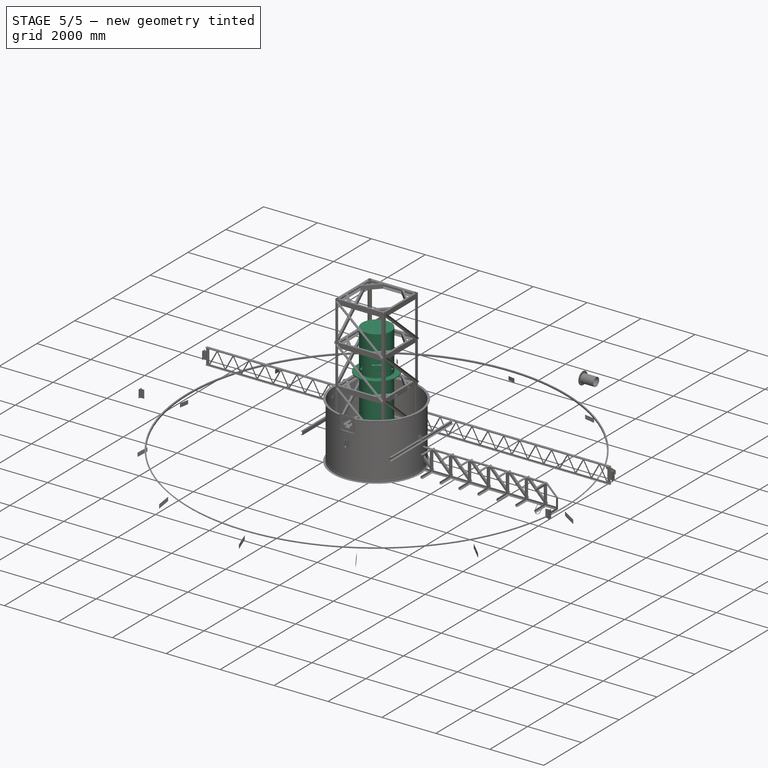
[diagram: stage 5 of 5 — iso view after this stage's code; geometry added in this stage tinted green]
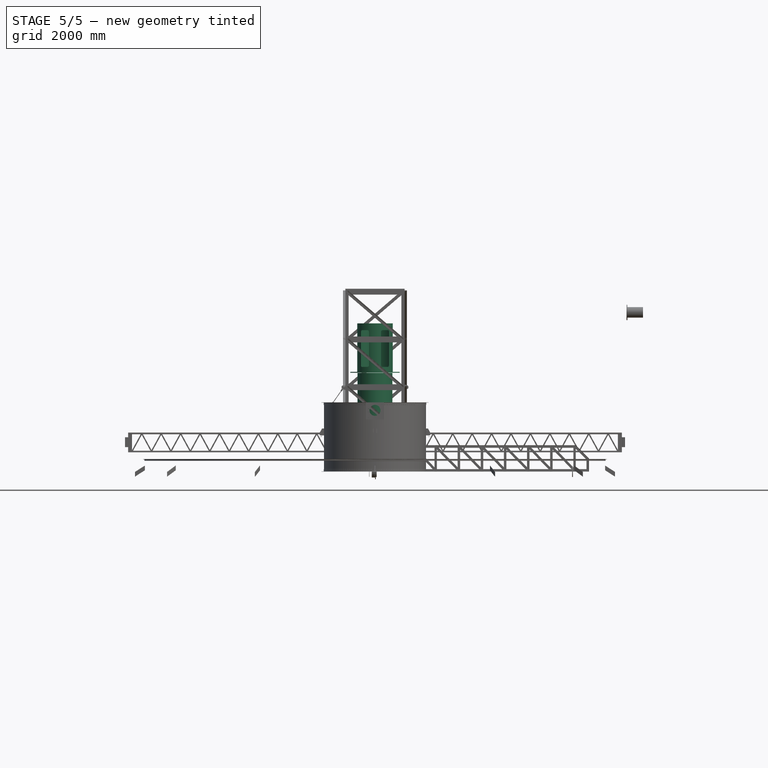
[diagram: stage 5 of 5 — front view after this stage's code; geometry added in this stage tinted green]
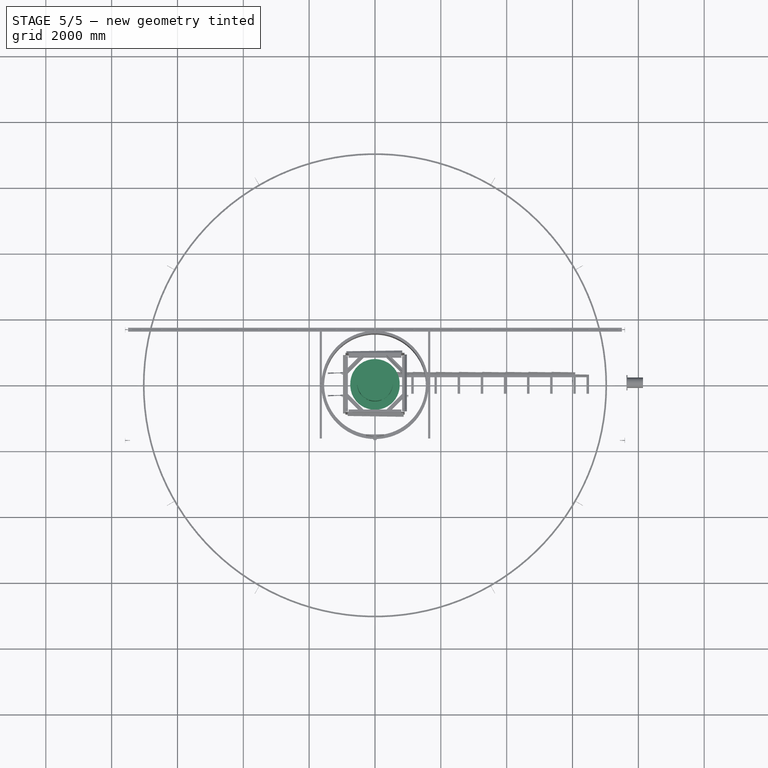
[diagram: stage 5 of 5 — top view after this stage's code; geometry added in this stage tinted green]
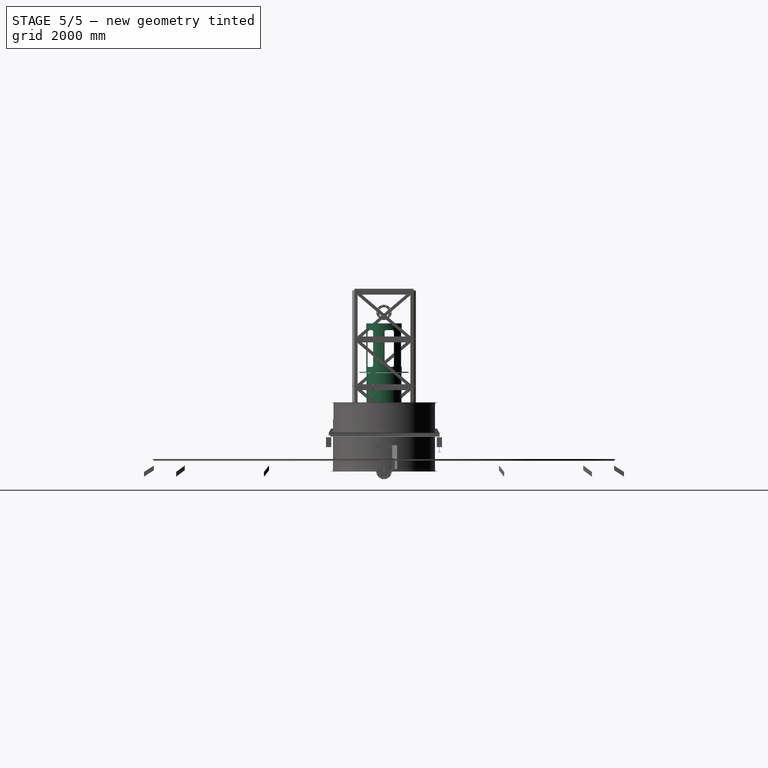
[diagram: stage 5 of 5 — right view after this stage's code; geometry added in this stage tinted green]
FEATURE [TechDraw::DrawSVGTemplate] Template
  Height = 594
  Orientation = 1
  Template = C:/Program Files/FreeCAD 0.21/data/Mod/TechDraw/Templates/A1_Landscape_blank.svg
  Width = 841
FEATURE [TechDraw::DrawViewPart] View
  CoarseView = false
  Direction = (0,-1,0)
  Focus = 100
  HardHidden = false
  IsoCount = 0
  IsoHidden = false
  IsoVisible = false
  LockPosition = false
  Perspective = false
  Rotation = 0
  Scale = 0.05
  ScaleType = 2
  ScrubCount = 0
  SeamHidden = false
  SeamVisible = false
  SmoothHidden = false
  SmoothVisible = true
  X = 420.5
  XDirection = (1,0,0)
  Y = 297
FEATURE [TechDraw::DrawViewDimension] Dimension
  AngleOverride = false
  Arbitrary = false
  ArbitraryTolerances = false
  EqualTolerance = true
  ExtensionAngle = 0
  FormatSpec = %.2w
  FormatSpecOverTolerance = %+.2w
  FormatSpecUnderTolerance = %+.2w
  Inverted = false
  LineAngle = 0
  LockPosition = false
  MeasureType = 1
  OverTolerance = 0
  References2D = -> [View]
  Rotation = 0
  ScaleType = 0
  TheoreticalExact = false
  Type = 0
  UnderTolerance = 0
  X = -110.268
  Y = -47.7893
FEATURE [TechDraw::DrawPage] Page
  KeepUpdated = true
  NextBalloonIndex = 1
  ProjectionType = 0
  Template = -> Template
  Views = -> [View,Dimension]
FEATURE [Part::Feature] Part__Feature  label="body02"
  shape: bbox 17720 x 9400 x 6410 mm, 67 faces (baked)
FEATURE [Part::Feature] Part__Feature001  label="body01"
  shape: bbox 17720 x 8350 x 6410 mm, 38 faces (baked)
FEATURE [Sketcher::SketchObject] Sketch
  FullyConstrained = true
  Placement = pos=(0,0,0) rot=(1,0,0;1.5708rad)
  sketch-geometry (8):
    g0: LineSegment StartX=750 StartY=0 StartZ=0 EndX=750 EndY=30 EndZ=0
    g1: LineSegment StartX=750 StartY=30 StartZ=0 EndX=540 EndY=30 EndZ=0
    g2: LineSegment StartX=530 StartY=0 StartZ=0 EndX=530 EndY=2995 EndZ=0
    g3: LineSegment StartX=530 StartY=2995 StartZ=0 EndX=750 EndY=2995 EndZ=0
    g4: LineSegment StartX=750 StartY=2995 StartZ=0 EndX=750 EndY=2965 EndZ=0
    g5: LineSegment StartX=750 StartY=2965 StartZ=0 EndX=540 EndY=2965 EndZ=0
    g6: LineSegment StartX=540 StartY=2965 StartZ=0 EndX=540 EndY=30 EndZ=0
    g7: LineSegment StartX=750 StartY=0 StartZ=0 EndX=530 EndY=0 EndZ=0
  constraints (24):
    c: Vertical(g0)
    c: Coincident(g0,g1)
    c: Horizontal(g1)
    c: Vertical(g2)
    c: Coincident(g2,g3)
    c: Horizontal(g3)
    c: Coincident(g3,g4)
    c: Vertical(g4)
    c: Coincident(g4,g5)
    c: Horizontal(g5)
    c: Coincident(g5,g6)
    c: Vertical(g6)
    c: Coincident(g0,g7)
    c: Horizontal(g7)
    c: Coincident(g1,g6)
    c: DistanceX(g-1,g0) = 750
    c: DistanceY(g0,g0) = 30
    c: PointOnObject(g0,g-1)
    c: Coincident(g2,g7)
    c: DistanceX(g2,g1) = 10
    c: DistanceX(g-1,g1) = 540
    c: DistanceX(g-2,g3) = 750
    c: DistanceY(g-1,g3) = 2995
    c: DistanceY(g4,g4) = 30
FEATURE [Part::Revolution] Revolve  label="centerPost"
  Angle = 360
  Axis = (0,0,1)
  Base = (0,0,0)
  FaceMakerClass = Part::FaceMakerBullseye
  Solid = true
  Source = -> Sketch
  Symmetric = false
FEATURE [Sketcher::SketchObject] Sketch001
  ExternalGeometry = -> [Revolve]
  FullyConstrained = true
  Placement = pos=(0,0,0) rot=(1,0,0;1.5708rad)
  sketch-geometry (4):
    g0: LineSegment StartX=430 StartY=0 StartZ=0 EndX=530 EndY=0 EndZ=0
    g1: LineSegment StartX=530 StartY=0 StartZ=0 EndX=530 EndY=2995 EndZ=0
    g2: LineSegment StartX=530 StartY=2995 StartZ=0 EndX=430 EndY=2995 EndZ=0
    g3: LineSegment StartX=430 StartY=2995 StartZ=0 EndX=430 EndY=0 EndZ=0
  constraints (11):
    c: Coincident(g0,g1)
    c: Coincident(g1,g2)
    c: Coincident(g2,g3)
    c: Coincident(g3,g0)
    c: Horizontal(g0)
    c: Horizontal(g2)
    c: Vertical(g1)
    c: Vertical(g3)
    c: Distance(g0) = 100
    c: Coincident(g0,g-3)
    c: PointOnObject(g2,g-4)
FEATURE [Part::Revolution] Revolve001  label="covering"
  Angle = 360
  Axis = (0,0,1)
  Base = (0,0,0)
  FaceMakerClass = Part::FaceMakerBullseye
  Solid = true
  Source = -> Sketch001
  Symmetric = false
FEATURE [Sketcher::SketchObject] Sketch002
  ExternalGeometry = -> [Revolve]
  FullyConstrained = true
  Placement = pos=(0,0,0) rot=(1,0,0;1.5708rad)
  sketch-geometry (4):
    g0: LineSegment StartX=530 StartY=2995 StartZ=0 EndX=750 EndY=2995 EndZ=0
    g1: LineSegment StartX=750 StartY=2995 StartZ=0 EndX=750 EndY=3000 EndZ=0
    g2: LineSegment StartX=750 StartY=3000 StartZ=0 EndX=530 EndY=3000 EndZ=0
    g3: LineSegment StartX=530 StartY=3000 StartZ=0 EndX=530 EndY=2995 EndZ=0
  constraints (12):
    c: Coincident(g0,g1)
    c: Coincident(g1,g2)
    c: Coincident(g2,g3)
    c: Coincident(g3,g0)
    c: Horizontal(g0)
    c: Horizontal(g2)
    c: Vertical(g1)
    c: Vertical(g3)
    c: DistanceY(g1,g1) = 5
    c: DistanceY(g-1,g0) = 2995
    c: PointOnObject(g0,g-3)
    c: PointOnObject(g-4,g1)
FEATURE [Part::Revolution] Revolve002  label="gasket"
  Angle = 360
  Axis = (0,0,1)
  Base = (0,0,0)
  FaceMakerClass = Part::FaceMakerBullseye
  Solid = true
  Source = -> Sketch002
  Symmetric = false
FEATURE [Sketcher::SketchObject] Sketch003
  ExternalGeometry = -> [Revolve002]
  FullyConstrained = true
  Placement = pos=(0,0,0) rot=(1,0,0;1.5708rad)
  sketch-geometry (8):
    g0: LineSegment StartX=750 StartY=3030 StartZ=0 EndX=540 EndY=3030 EndZ=0
    g1: LineSegment StartX=540 StartY=3030 StartZ=0 EndX=540 EndY=4500 EndZ=0
    g2: LineSegment StartX=530 StartY=4490 StartZ=0 EndX=530 EndY=3000 EndZ=0
    g3: LineSegment StartX=530 StartY=3000 StartZ=0 EndX=750 EndY=3000 EndZ=0
    g4: LineSegment StartX=750 StartY=3000 StartZ=0 EndX=750 EndY=3030 EndZ=0
    g5: LineSegment StartX=530 StartY=4490 StartZ=0 EndX=0 EndY=4490 EndZ=0
    g6: LineSegment StartX=0 StartY=4490 StartZ=0 EndX=0 EndY=4500 EndZ=0
    g7: LineSegment StartX=0 StartY=4500 StartZ=0 EndX=540 EndY=4500 EndZ=0
  constraints (23):
    c: Horizontal(g0)
    c: Coincident(g0,g1)
    c: Vertical(g1)
    c: Vertical(g2)
    c: Coincident(g2,g3)
    c: Horizontal(g3)
    c: Coincident(g3,g4)
    c: Coincident(g4,g0)
    c: Vertical(g4)
    c: DistanceY(g4,g4) = 30
    c: Coincident(g3,g-3)
    c: DistanceX(g2,g0) = 10
    c: PointOnObject(g2,g-4)
    c: Coincident(g2,g5)
    c: Horizontal(g5)
    c: Coincident(g5,g6)
    c: PointOnObject(g6,g-2)
    c: Vertical(g6)
    c: Coincident(g6,g7)
    c: Coincident(g7,g1)
    c: Horizontal(g7)
    c: DistanceY(g2,g1) = 10
    c: DistanceY(g3,g1) = 1500
FEATURE [Part::Revolution] Revolve003  label="top"
  Angle = 360
  Axis = (0,0,1)
  Base = (0,0,0)
  FaceMakerClass = Part::FaceMakerBullseye
  Solid = true
  Source = -> Sketch003
  Symmetric = false
FEATURE [Sketcher::SketchObject] Sketch004
  ExternalGeometry = -> [Revolve003]
  FullyConstrained = false
  Placement = pos=(0,0,0) rot=(1,0,0;1.5708rad)
  sketch-geometry (8):
    g0: LineSegment StartX=-100 StartY=3180 StartZ=0 EndX=100 EndY=3180 EndZ=0
    g1: LineSegment StartX=150 StartY=3230 StartZ=0 EndX=150 EndY=4246.34 EndZ=0
    g2: LineSegment StartX=100 StartY=4296.34 StartZ=0 EndX=-100 EndY=4296.34 EndZ=0
    g3: LineSegment StartX=-150 StartY=4246.34 StartZ=0 EndX=-150 EndY=3230 EndZ=0
    g4: ArcOfCircle CenterX=100 CenterY=4246.34 CenterZ=0 NormalX=0 NormalY=0 NormalZ=1 AngleXU=0 Radius=50 StartAngle=-5.3e-15 EndAngle=1.5708
    g5: ArcOfCircle CenterX=-100 CenterY=4246.34 CenterZ=0 NormalX=0 NormalY=0 NormalZ=1 AngleXU=0 Radius=50 StartAngle=1.5708 EndAngle=3.14159
    g6: ArcOfCircle CenterX=-100 CenterY=3230 CenterZ=0 NormalX=0 NormalY=0 NormalZ=1 AngleXU=0 Radius=50 StartAngle=3.14159 EndAngle=4.71239
    g7: ArcOfCircle CenterX=100 CenterY=3230 CenterZ=0 NormalX=0 NormalY=0 NormalZ=1 AngleXU=0 Radius=50 StartAngle=4.71239 EndAngle=6.28319
  constraints (19):
    c: Horizontal(g0)
    c: Horizontal(g2)
    c: Vertical(g1)
    c: Vertical(g3)
    c: Tangent(g1,g4) = -1.5708
    c: Tangent(g2,g4) = -1.5708
    c: Tangent(g2,g5) = -1.5708
    c: Tangent(g3,g5) = -1.5708
    c: Tangent(g0,g6) = -1.5708
    c: Tangent(g3,g6) = -1.5708
    c: Tangent(g0,g7) = -1.5708
    c: Tangent(g1,g7) = -1.5708
    c: Radius(g4) = 50
    c: Equal(g4,g7)
    c: Equal(g7,g6)
    c: Equal(g6,g5)
    c: DistanceX(g3,g1) = 300
    c: DistanceX(g-1,g1) = 150
    c: Distance(g0,g-3) = 150
FEATURE [Part::Extrusion] Extrude
  Base = -> Sketch004
  Dir = (0,-1,-3e-16)
  DirMode = 2
  FaceMakerClass = Part::FaceMakerBullseye
  LengthFwd = 1000
  LengthRev = 0
  Reversed = true
  Solid = true
  Symmetric = false
FEATURE [Part::FeaturePython] Array001  # Draft array (typed FeaturePython)
  AlwaysSyncPlacement = false
  Angle = 360
  ArrayType = 1
  Axis = (0,0,1)
  Base = -> Extrude
  Center = (0,0,0)
  Count = 5
  ExpandArray = false
  Fuse = false
  IntervalAxis = (0,0,0)
  IntervalX = (50,0,0)
  IntervalY = (0,50,0)
  IntervalZ = (0,0,50)
  NumberCircles = 3
  NumberPolar = 5
  NumberX = 2
  NumberY = 2
  NumberZ = 1
  PlacementList = 5 placements: [(0,0,0),(0,0,0),(0,0,0),(0,0,0),(0,0,0)]
  RadialDistance = 50
  ScaleList = (5) [(1,1,1),(1,1,1),(1,1,1),(1,1,1),(1,1,1)]
  Symmetry = 1
  TangentialDistance = 25
FEATURE [Part::Cut] Cut  label="top001"
  Base = -> Revolve003
  Tool = -> Array001
FEATURE [App::Part] Part001  label="centerPost001"
  Group = -> [Sketch,Revolve,Sketch001,Sketch003,Revolve001,Extrude,Array001,Revolve002,Sketch002,Sketch004,Revolve003,Cut]
  Origin = -> Origin005
  Placement = pos=(0,0,850) rot=(0,0,1;0rad)
FEATURE [Sketcher::SketchObject] Sketch005
  ExternalGeometry = -> [Part__Feature001]
  FullyConstrained = true
  Placement = pos=(0,0,0) rot=(1,0,0;1.5708rad)
  sketch-geometry (4):
    g0: LineSegment StartX=0 StartY=800 StartZ=0 EndX=750 EndY=800 EndZ=0
    g1: LineSegment StartX=750 StartY=800 StartZ=0 EndX=750 EndY=850 EndZ=0
    g2: LineSegment StartX=750 StartY=850 StartZ=0 EndX=0 EndY=850 EndZ=0
    g3: LineSegment StartX=0 StartY=850 StartZ=0 EndX=0 EndY=800 EndZ=0
  constraints (11):
    c: Coincident(g0,g1)
    c: Coincident(g1,g2)
    c: Coincident(g2,g3)
    c: Coincident(g3,g0)
    c: Horizontal(g0)
    c: Horizontal(g2)
    c: Vertical(g1)
    c: Vertical(g3)
    c: DistanceY(g1,g1) = 50
    c: PointOnObject(g0,g-2)
    c: Coincident(g0,g-3)
FEATURE [Part::Revolution] Revolve004
  Angle = 360
  Axis = (0,0,1)
  Base = (0,0,0)
  FaceMakerClass = Part::FaceMakerBullseye
  Solid = true
  Source = -> Sketch005
  Symmetric = false
FEATURE [App::Part] ________________1500_v16  label="body_15.5m"
  Group = -> [Part__Feature,Part__Feature001,Sketch005,Revolve004]
  Origin = -> Origin003
FEATURE [Spreadsheet::Sheet] Spreadsheet002
  cells = A2='cage width W0; B2(W0)=1800; A3='cageLength L0; B3(L0)=4500; A4='mainShape mShp; B4(mShp)='100x100x10; A5='mShp gage mg0; B5(mg0)=55; A6='mShp width mb0; B6(mb0)=100; A7='horizontalBeam hShp; B7(hShp)='150x75x9; A8='hShp gage hg; B8(hg)=75; A9='hb0; B9(hb0)=75; A10='lutticeBeam LShp; B10(LShp)='75x75x6; A11='luttice_widht Lb0; B11(Lb0)=75; A12='lutitice length ll; B12(ll)=2234.39029715043; A13='luttice angle sita; B13(sita)=40.6; A14='gusset Gta; B14(Gta)=300; A15='gussetThickness gt; B15(gt)=6; A16='lx; B16(lx)=-760.518050346879; A17='lz; B17(lz)=201.097312797114; A18='Divishon no; B18(n0)=3; A19='DivishonPitch p0; B19(p0)=1450; A20='rakeWidth  rw; B20(rw)=650; A22='Angle; D22='Channel; A23='40x40x5; B23=40; C23=17; D23='75x40x5; E23=75; F23=40; G23=17; A24='50x50x5; B24=50; C24=30; D24='100x50x5; E24=100; F24=50; G24=30; A25='65x65x6; B25=65; C25=35; D25='125x65x6; E25=125; F25=65; G25=35; A26='75x75x6; B26=75; C26=40; D26='150x75x9; E26=150; F26=75; G26=40; A27='90x90x7; B27=90; C27=50; D27='180x75x7; E27=180; F27=75; G27=40; A28='100x100x10; B28=100; C28=55; F28=75; G28=40; A29='130x130x12; B29=130
FEATURE [Part::FeaturePython] AngleSteel005  label="mShp"  # WARN: FeaturePython — macro-defined, semantics opaque (R4)
  A = 100
  B = 100
  L = 4500
  Placement = pos=(-850,-850,0) rot=(0,0,1;1.5708rad)
  Solid = true
  g0 = 7.85
  mass = 67.1327
  size = 17
  standard = SS_Equal
  t = 7
  expr: .Placement.Base.x = -Spreadsheet002.W0 / 2 + Spreadsheet002.mb0 / 2
  expr: .Placement.Base.y = -Spreadsheet002.W0 / 2 + Spreadsheet002.mb0 / 2
  expr: L = Spreadsheet002.L0
FEATURE [Part::FeaturePython] Array008  # Draft array (typed FeaturePython)
  AlwaysSyncPlacement = false
  Angle = 360
  ArrayType = 1
  Axis = (0,0,1)
  Base = -> AngleSteel005
  Center = (0,0,0)
  Count = 4
  ExpandArray = false
  Fuse = false
  IntervalAxis = (0,0,0)
  IntervalX = (50,0,0)
  IntervalY = (0,50,0)
  IntervalZ = (0,0,50)
  NumberCircles = 3
  NumberPolar = 4
  NumberX = 2
  NumberY = 2
  NumberZ = 1
  PlacementList = 4 placements: [(-850,-850,0),(850,-850,0),(850,850,0),(-850,850,0)]
  RadialDistance = 50
  ScaleList = (4) [(1,1,1),(1,1,1),(1,1,1),(1,1,1)]
  Symmetry = 1
  TangentialDistance = 25
FEATURE [Part::FeaturePython] ChannelSteel  label="hShp"  # WARN: FeaturePython — macro-defined, semantics opaque (R4)
  B = 75
  H = 150
  L = 1600
  Placement = pos=(-800,-862.5,75) rot=(0.57735,0.57735,0.57735;2.0944rad)
  Solid = true
  g0 = 7.85
  mass = 35.6065
  size = 4
  standard = SS
  t1 = 6
  t2 = 8
  expr: .Placement.Base.x = -Spreadsheet002.W0 / 2 + Spreadsheet002.mb0
  expr: .Placement.Base.y = -Spreadsheet002.W0 / 2 + Spreadsheet002.hb0 / 2
  expr: .Placement.Base.z = Spreadsheet002.hg
  expr: L = Spreadsheet002.W0 - Spreadsheet002.mb0 * 2
FEATURE [Part::FeaturePython] Array009  label="hBeam"  # Draft array (typed FeaturePython)
  AlwaysSyncPlacement = false
  Angle = 360
  ArrayType = 0
  Axis = (0,0,1)
  Base = -> ChannelSteel
  Center = (0,0,0)
  Count = 4
  ExpandArray = false
  Fuse = false
  IntervalAxis = (0,0,0)
  IntervalX = (100,0,0)
  IntervalY = (0,100,0)
  IntervalZ = (0,0,1450)
  NumberCircles = 3
  NumberPolar = 5
  NumberX = 1
  NumberY = 1
  NumberZ = 4
  PlacementList = 4 placements: arithmetic series from (-800,-862.5,75) step (0,0,1450) to (-800,-862.5,4425)
  RadialDistance = 50
  ScaleList = (4) [(1,1,1),(1,1,1),(1,1,1),(1,1,1)]
  Symmetry = 1
  TangentialDistance = 25
  expr: .IntervalZ.z = Spreadsheet002.p0
  expr: NumberZ = Spreadsheet002.n0 + 1
FEATURE [Sketcher::SketchObject] Sketch025
  ExternalGeometry = -> [AngleSteel005]
  FullyConstrained = true
  MapMode = 5
  Placement = pos=(-850,-900,0) rot=(1,0,0;1.5708rad)
  Support = -> [AngleSteel005]
  expr: Constraints[10] = Spreadsheet002.hg
  expr: Constraints[11] = Spreadsheet002.L0 - 2 * Spreadsheet002.hg
  expr: Constraints[12] = Spreadsheet002.W0 - Spreadsheet002.mb0
  expr: Constraints[16] = Spreadsheet002.p0
  expr: Constraints[24] = Spreadsheet002.p0
  sketch-geometry (9):
    g0: LineSegment StartX=-9e-16 StartY=75 StartZ=0 EndX=1700 EndY=75 EndZ=0
    g1: LineSegment StartX=1700 StartY=75 StartZ=0 EndX=1700 EndY=4425 EndZ=0
    g2: LineSegment StartX=1700 StartY=4425 StartZ=0 EndX=0 EndY=4425 EndZ=0
    g3: LineSegment StartX=-9e-16 StartY=4425 StartZ=0 EndX=-9e-16 EndY=75 EndZ=0
    g4: LineSegment StartX=-1.8e-15 StartY=1525 StartZ=0 EndX=1700 EndY=1525 EndZ=0
    g5: LineSegment StartX=-9e-16 StartY=75 StartZ=0 EndX=1700 EndY=1525 EndZ=0
    g6: LineSegment StartX=-1.8e-15 StartY=1525 StartZ=0 EndX=1700 EndY=2975 EndZ=0
    g7: LineSegment StartX=-1.8e-15 StartY=2975 StartZ=0 EndX=1700 EndY=2975 EndZ=0
    g8: LineSegment StartX=-1.8e-15 StartY=1525 StartZ=0 EndX=1700 EndY=75 EndZ=0
  constraints (27):
    c: DistanceX(g-3,g-1) = 50
    c: Coincident(g0,g1)
    c: Coincident(g1,g2)
    c: Coincident(g2,g3)
    c: Coincident(g3,g0)
    c: Horizontal(g0)
    c: Horizontal(g2)
    c: Vertical(g1)
    c: Vertical(g3)
    c: PointOnObject(g0,g-2)
    c: DistanceY(g-1,g0) = 75
    c: Distance(g3) = 4350
    c: Distance(g0) = 1700
    c: PointOnObject(g4,g3)
    c: PointOnObject(g4,g1)
    c: Horizontal(g4)
    c: DistanceY(g0,g4) = 1450
    c: Coincident(g5,g0)
    c: Coincident(g5,g4)
    c: Coincident(g6,g4)
    c: PointOnObject(g6,g1)
    c: PointOnObject(g7,g3)
    c: Coincident(g7,g6)
    c: Horizontal(g7)
    c: DistanceY(g4,g7) = 1450
    c: Coincident(g8,g4)
    c: Coincident(g8,g0)
FEATURE [Part::FeaturePython] AngleSteel006  label="LShp"  # WARN: FeaturePython — macro-defined, semantics opaque (R4)
  A = 75
  B = 75
  L = 1000
  Placement = pos=(0,0,0) rot=(-1,0,0;1.5708rad)
  Solid = false
  g0 = 7.85
  mass = 0
  size = 10
  standard = SS_Equal
  t = 6
FEATURE [Sketcher::SketchObject] Sketch026
  ExternalGeometry = -> [Sketch025,AngleSteel005]
  FullyConstrained = false
  MapMode = 5
  Placement = pos=(-850,-900,0) rot=(1,0,0;1.5708rad)
  Support = -> [AngleSteel005]
  expr: Constraints[12] = Spreadsheet002.Gta
  expr: Constraints[13] = Spreadsheet002.Lb0
  sketch-geometry (5):
    g0: LineSegment StartX=-30 StartY=20 StartZ=0 EndX=-30 EndY=170 EndZ=0
    g1: LineSegment StartX=-30 StartY=170 StartZ=0 EndX=65.9277 EndY=431.025 EndZ=0
    g2: LineSegment StartX=65.9277 StartY=431.025 StartZ=0 EndX=110.353 EndY=383.576 EndZ=0
    g3: LineSegment StartX=110.353 StartY=383.576 StartZ=0 EndX=120 EndY=20 EndZ=0
    g4: LineSegment StartX=120 StartY=20 StartZ=0 EndX=-30 EndY=20 EndZ=0
  constraints (15):
    c: Vertical(g0)
    c: Coincident(g0,g1)
    c: Coincident(g1,g2)
    c: Coincident(g2,g3)
    c: Coincident(g3,g4)
    c: Coincident(g4,g0)
    c: Horizontal(g4)
    c: DistanceX(g-4,g0) = 20
    c: DistanceY(g-4,g0) = 20
    c: DistanceY(g0,g0) = 150
    c: DistanceX(g4,g4) = 150
    c: Perpendicular(g2,g-3)
    c: Distance(g-3,g2) = 300
    c: Distance(g2) = 75
    c: PointOnObject(g1,g-5)
FEATURE [Sketcher::SketchObject] Sketch027
  ExternalGeometry = -> [AngleSteel005,Sketch025]
  FullyConstrained = false
  MapMode = 5
  Placement = pos=(-850,-900,0) rot=(1,0,0;1.5708rad)
  Support = -> [AngleSteel005]
  expr: Constraints[11] = Spreadsheet002.Lb0
  expr: Constraints[15] = Spreadsheet002.Gta
  expr: Constraints[16] = Spreadsheet002.Gta
  sketch-geometry (6):
    g0: LineSegment StartX=2061.36 StartY=3416.88 StartZ=0 EndX=2105.78 EndY=3464.33 EndZ=0
    g1: LineSegment StartX=2105.78 StartY=3464.33 StartZ=0 EndX=2105.78 EndY=-155.999 EndZ=0
    g2: LineSegment StartX=2105.78 StartY=-155.999 StartZ=0 EndX=2061.36 EndY=-108.55 EndZ=0
    g3: LineSegment StartX=2061.36 StartY=-108.55 StartZ=0 EndX=-30 EndY=1804.17 EndZ=0
    g4: LineSegment StartX=-30 StartY=1804.17 StartZ=0 EndX=-30 EndY=1504.17 EndZ=0
    g5: LineSegment StartX=-30 StartY=1504.17 StartZ=0 EndX=2061.36 EndY=3416.88 EndZ=0
  constraints (18):
    c: Coincident(g0,g1)
    c: Vertical(g1)
    c: Coincident(g1,g2)
    c: Coincident(g2,g3)
    c: Coincident(g3,g4)
    c: Vertical(g4)
    c: Coincident(g4,g5)
    c: Coincident(g5,g0)
    c: Distance(g3,g-3) = 20
    c: Distance(g4) = 300
    c: DistanceY(g-4,g3) = 150
    c: Distance(g0) = 75
    c: Perpendicular(g0,g-5)
    c: PointOnObject(g0,g-6)
    c: Equal(g0,g2)
    c: Distance(g-7,g2) = 300
    c: Distance(g-7,g0) = 300
    c: Perpendicular(g2,g-7)
FEATURE [Sketcher::SketchObject] Sketch028
  ExternalGeometry = -> [Sketch025]
  FullyConstrained = false
  MapMode = 5
  Placement = pos=(-850,-900,0) rot=(1,0,0;1.5708rad)
  Support = -> [AngleSteel005]
  expr: Constraints[6] = Spreadsheet002.Gta / 4
  sketch-geometry (7):
    g0: LineSegment StartX=958.326 StartY=905.1 StartZ=0 EndX=1023.98 EndY=740.266 EndZ=0
    g1: LineSegment StartX=980.855 StartY=691.632 StartZ=0 EndX=831.978 EndY=772.465 EndZ=0
    g2: LineSegment StartX=831.978 StartY=772.465 StartZ=0 EndX=21.625 EndY=715.913 EndZ=0
    g3: LineSegment StartX=21.625 StartY=715.913 StartZ=0 EndX=710.292 EndY=941.092 EndZ=0
    g4: LineSegment StartX=710.292 StartY=941.092 StartZ=0 EndX=768.169 EndY=998.508 EndZ=0
    g5: LineSegment StartX=768.169 StartY=998.508 StartZ=0 EndX=-1.53536 EndY=864.845 EndZ=0
    g6: LineSegment StartX=-1.53536 StartY=864.845 StartZ=0 EndX=958.326 EndY=905.1 EndZ=0
  constraints (8):
    c: Coincident(g1,g2)
    c: Coincident(g2,g3)
    c: Coincident(g3,g4)
    c: Coincident(g4,g5)
    c: PointOnObject(g2,g-5)
    c: PointOnObject(g5,g-5)
    c: Distance(g1,g-3) = 75
    c: Coincident(g6,g5)
FEATURE [Sketcher::SketchObject] Sketch029
  ExternalGeometry = -> [Sketch025]
  FullyConstrained = false
  MapMode = 5
  Placement = pos=(-850,-900,0) rot=(1,0,0;1.5708rad)
  Support = -> [AngleSteel005]
  expr: Constraints[19] = Spreadsheet002.Lb0
  expr: Constraints[21] = Spreadsheet002.Gta / 2
  expr: Constraints[22] = Spreadsheet002.Lb0 + 60
  expr: Constraints[23] = Spreadsheet002.Lb0 + 30
  expr: Constraints[4] = Spreadsheet002.Gta
  sketch-geometry (8):
    g0: LineSegment StartX=1835.41 StartY=1986.43 StartZ=0 EndX=1882.86 EndY=2030.86 EndZ=0
    g1: LineSegment StartX=1882.86 StartY=2030.86 StartZ=0 EndX=770.762 EndY=-4101.4 EndZ=0
    g2: LineSegment StartX=770.762 StartY=-4101.4 StartZ=0 EndX=818.211 EndY=-4145.82 EndZ=0
    g3: LineSegment StartX=818.211 StartY=-4145.82 StartZ=0 EndX=1808.06 EndY=1549.86 EndZ=0
    g4: LineSegment StartX=1808.06 StartY=1549.86 StartZ=0 EndX=1760.61 EndY=1505.43 EndZ=0
    g5: LineSegment StartX=1760.61 StartY=1505.43 StartZ=0 EndX=849.378 EndY=-4346.24 EndZ=0
    g6: LineSegment StartX=849.378 StartY=-4346.24 StartZ=0 EndX=801.929 EndY=-4301.81 EndZ=0
    g7: LineSegment StartX=801.929 StartY=-4301.81 StartZ=0 EndX=1835.41 EndY=1986.43 EndZ=0
  constraints (24):
    c: Coincident(g0,g1)
    c: Coincident(g1,g2)
    c: Coincident(g2,g3)
    c: PointOnObject(g1,g-4)
    c: Distance(g3,g0) = 300
    c: PointOnObject(g0,g-5)
    c: Equal(g2,g0)
    c: PointOnObject(g3,g-5)
    c: Coincident(g3,g4)
    c: Coincident(g4,g5)
    c: Coincident(g5,g6)
    c: Coincident(g6,g7)
    c: Coincident(g7,g0)
    c: Parallel(g0,g-7)
    c: Parallel(g4,g-7)
    c: Parallel(g2,g-8)
    c: Parallel(g6,g-8)
    c: PointOnObject(g6,g-4)
    c: Equal(g2,g4)
    c: Distance(g4) = 75
    c: Equal(g0,g6)
    c: Distance(g3,g-7) = 150
    c: Distance(g6,g2) = 135
    c: Distance(g6,g-5) = 105
FEATURE [Sketcher::SketchObject] Sketch030
  ExternalGeometry = -> [Sketch025,AngleSteel005]
  FullyConstrained = true
  MapMode = 5
  Placement = pos=(-850,-900,0) rot=(1,0,0;1.5708rad)
  Support = -> [AngleSteel005]
  expr: Constraints[13] = Spreadsheet002.Gta
  expr: Constraints[14] = Spreadsheet002.Lb0
  expr: Constraints[17] = Spreadsheet002.Lb0 / 2
  expr: Constraints[2] = Spreadsheet002.p0
  sketch-geometry (6):
    g0: LineSegment StartX=0 StartY=4425 StartZ=0 EndX=1700 EndY=2975 EndZ=0
    g1: LineSegment StartX=-30 StartY=4480 StartZ=0 EndX=120 EndY=4480 EndZ=0
    g2: LineSegment StartX=120 StartY=4480 StartZ=0 EndX=-252.586 EndY=4591.15 EndZ=0
    g3: LineSegment StartX=-252.586 StartY=4591.15 StartZ=0 EndX=-203.915 EndY=4648.22 EndZ=0
    g4: LineSegment StartX=-203.915 StartY=4648.22 StartZ=0 EndX=-30 EndY=4630 EndZ=0
    g5: LineSegment StartX=-30 StartY=4630 StartZ=0 EndX=-30 EndY=4480 EndZ=0
  constraints (18):
    c: Coincident(g0,g-3)
    c: PointOnObject(g0,g-4)
    c: DistanceY(g0,g0) = 1450
    c: Horizontal(g1)
    c: Coincident(g1,g2)
    c: Coincident(g2,g3)
    c: Coincident(g3,g4)
    c: Coincident(g4,g5)
    c: Coincident(g5,g1)
    c: Vertical(g5)
    c: DistanceY(g1,g-5) = 20
    c: DistanceX(g-5,g1) = 20
    c: Perpendicular(g3,g0)
    c: Distance(g0,g3) = 300
    c: Distance(g3) = 75
    c: Distance(g5) = 150
    c: Distance(g1) = 150
    c: Distance(g2,g0) = 37.5
FEATURE [Part::FeaturePython] ChannelSteel001  # WARN: FeaturePython — macro-defined, semantics opaque (R4)
  B = 65
  H = 125
  L = 700
  Placement = pos=(0,0,6e-15) rot=(0.57735,-0.57735,-0.57735;2.0944rad)
  Solid = true
  g0 = 7.85
  mass = 8.45563
  size = 2
  standard = SS
  t1 = 6
  t2 = 8
FEATURE [Sketcher::SketchObject] Sketch031
  ExternalGeometry = -> [ChannelSteel001]
  FullyConstrained = false
  MapMode = 5
  Placement = pos=(6.25e-14,-6.9e-15,62.5) rot=(0,0,1;1.5708rad)
  Support = -> [ChannelSteel001]
  sketch-geometry (3):
    g0: LineSegment StartX=32.5 StartY=0 StartZ=0 EndX=-38.6181 EndY=71.1181 EndZ=0
    g1: LineSegment StartX=-38.6181 StartY=0 StartZ=0 EndX=32.5 EndY=0 EndZ=0
    g2: LineSegment StartX=-38.6181 StartY=0 StartZ=0 EndX=-38.6181 EndY=71.1181 EndZ=0
  constraints (7):
    c: Coincident(g-3,g0)
    c: Coincident(g1,g0)
    c: Coincident(g2,g1)
    c: Coincident(g2,g0)
    c: Vertical(g2)
    c: Horizontal(g1)
    c: Angle(g0,g1) = 0.785398
FEATURE [Part::Extrusion] Extrude016
  Base = -> Sketch031
  Dir = (1e-15,-1e-16,1)
  DirMode = 2
  FaceMakerClass = Part::FaceMakerBullseye
  LengthFwd = 150
  LengthRev = 0
  Reversed = true
  Solid = true
  Symmetric = false
FEATURE [Part::Mirroring] Mirror005  label="Extrude006 (mirrored)"
  Base = (-500,32.5,62.5)
  Normal = (-1,9e-16,0)
  Placement = pos=(299.54,0,0) rot=(0,0,1;0rad)
  Source = -> Extrude016
FEATURE [Part::Compound] Compound004
  Links = -> [Mirror005,Extrude016]
FEATURE [Part::Cut] Cut011
  Base = -> ChannelSteel001
  Placement = pos=(-363,-857,62.5) rot=(0,0,-1;0.785398rad)
  Tool = -> Compound004
  expr: .Placement.Base.x = -Spreadsheet002.W0 / 2 + 537
  expr: .Placement.Base.y = -Spreadsheet002.W0 / 2 + 43
FEATURE [Part::FeaturePython] Array010  # Draft array (typed FeaturePython)
  AlwaysSyncPlacement = false
  Angle = 360
  ArrayType = 1
  Axis = (0,0,1)
  Base = -> Cut011
  Center = (0,0,0)
  Count = 4
  ExpandArray = false
  Fuse = false
  IntervalAxis = (0,0,0)
  IntervalX = (50,0,0)
  IntervalY = (0,50,0)
  IntervalZ = (0,0,50)
  NumberCircles = 3
  NumberPolar = 4
  NumberX = 2
  NumberY = 2
  NumberZ = 1
  PlacementList = 4 placements: [(-363,-857,62.5),(857,-363,62.5),(363,857,62.5),(-857,363,62.5)]
  RadialDistance = 50
  ScaleList = (4) [(1,1,1),(1,1,1),(1,1,1),(1,1,1)]
  Symmetry = 1
  TangentialDistance = 25
FEATURE [Part::FeaturePython] Array011  # Draft array (typed FeaturePython)
  AlwaysSyncPlacement = false
  Angle = 360
  ArrayType = 0
  Axis = (0,0,1)
  Base = -> Array010
  Center = (0,0,0)
  Count = 4
  ExpandArray = false
  Fuse = false
  IntervalAxis = (0,0,0)
  IntervalX = (100,0,0)
  IntervalY = (0,100,0)
  IntervalZ = (0,0,1450)
  NumberCircles = 3
  NumberPolar = 5
  NumberX = 1
  NumberY = 1
  NumberZ = 4
  PlacementList = 4 placements: arithmetic series from (0,0,0) step (0,0,1450) to (0,0,4350)
  RadialDistance = 50
  ScaleList = (4) [(1,1,1),(1,1,1),(1,1,1),(1,1,1)]
  Symmetry = 1
  TangentialDistance = 25
  expr: .IntervalZ.z = Spreadsheet002.p0
  expr: NumberZ = Spreadsheet002.n0 + 1
FEATURE [Part::FeaturePython] AngleSteel007  label="LShp001"  # WARN: FeaturePython — macro-defined, semantics opaque (R4)
  A = 75
  B = 75
  L = 2234.39
  Placement = pos=(-850,-932.5,1525) rot=(0,1,0;2.2794rad)
  Solid = true
  g0 = 7.85
  mass = 15.306
  size = 10
  standard = SS_Equal
  t = 6
  expr: .Placement.Base.x = -Spreadsheet002.W0 / 2 + Spreadsheet002.mb0 / 2
  expr: .Placement.Base.y = -Spreadsheet002.W0 / 2 - 32.5
  expr: .Placement.Base.z = Spreadsheet002.p0 + Spreadsheet002.hg
  expr: .Placement.Rotation.Angle = Spreadsheet002.sita + 90
  expr: L = Spreadsheet002.ll
FEATURE [Part::FeaturePython] Array012  # Draft array (typed FeaturePython)
  AlwaysSyncPlacement = false
  Angle = 360
  ArrayType = 0
  Axis = (0,0,1)
  Base = -> AngleSteel007
  Center = (0,0,0)
  Count = 3
  ExpandArray = false
  Fuse = false
  IntervalAxis = (0,0,0)
  IntervalX = (100,0,0)
  IntervalY = (0,100,0)
  IntervalZ = (0,0,1450)
  NumberCircles = 3
  NumberPolar = 5
  NumberX = 1
  NumberY = 1
  NumberZ = 3
  PlacementList = 3 placements: arithmetic series from (-850,-932.5,1525) step (0,0,1450) to (-850,-932.5,4425)
  RadialDistance = 50
  ScaleList = (3) [(1,1,1),(1,1,1),(1,1,1)]
  Symmetry = 1
  TangentialDistance = 25
  expr: .IntervalZ.z = Spreadsheet002.p0
  expr: NumberZ = Spreadsheet002.n0
FEATURE [Part::Compound] Compound006
  Links = -> [Array009,Array012]
FEATURE [Part::FeaturePython] Array013  label="Array009"  # Draft array (typed FeaturePython)
  AlwaysSyncPlacement = false
  Angle = 360
  ArrayType = 1
  Axis = (0,0,1)
  Base = -> Compound006
  Center = (0,0,2.67593e+15)
  Count = 4
  ExpandArray = false
  Fuse = false
  IntervalAxis = (0,0,0)
  IntervalX = (50,0,0)
  IntervalY = (0,50,0)
  IntervalZ = (0,0,50)
  NumberCircles = 3
  NumberPolar = 4
  NumberX = 2
  NumberY = 2
  NumberZ = 1
  PlacementList = 4 placements: [(0,0,0),(0,0,-0.5),(0,0,0),(0,0,0)]
  RadialDistance = 50
  ScaleList = (4) [(1,1,1),(1,1,1),(1,1,1),(1,1,1)]
  Symmetry = 1
  TangentialDistance = 25
FEATURE [Part::Compound] Compound007
  Links = -> [Mirror007,Extrude018]
FEATURE [Part::Compound] Compound008
  Links = -> [Compound007,Compound005]
FEATURE [Part::Mirroring] Mirror008  label="Compound006 (mirrored)"
  Base = (0,0,-1000)
  Normal = (1,0,0)
  Source = -> Compound008
FEATURE [Part::Compound] Compound009  label="gaset"
  Links = -> [Mirror008,Compound008]
FEATURE [App::Part] Part007  label="centerCage"
  Group = -> [Spreadsheet002,ChannelSteel,Array009,AngleSteel005,Array008,Sketch025,AngleSteel006,Sketch026,Sketch027,Sketch028,Sketch029,Sketch030,ChannelSteel001,Compound004,Sketch031,Mirror005,Extrude016,Cut011,Array010,Array011,Body,Sketch007,Pad001,Sketch008,Extrude017,Cut001,Mirror006,Compound005,AngleSteel007,Array012,Compound006,Array013,Sketch032,Extrude018,Mirror007,Compound007,Compound008,Mirror008,+1 more]
  Origin = -> Origin010
  Placement = pos=(0,0,1024.12) rot=(0,0,1;0rad)
FEATURE [Part::Compound] Compound011  label="centerCage001"
  Links = -> [Part007]
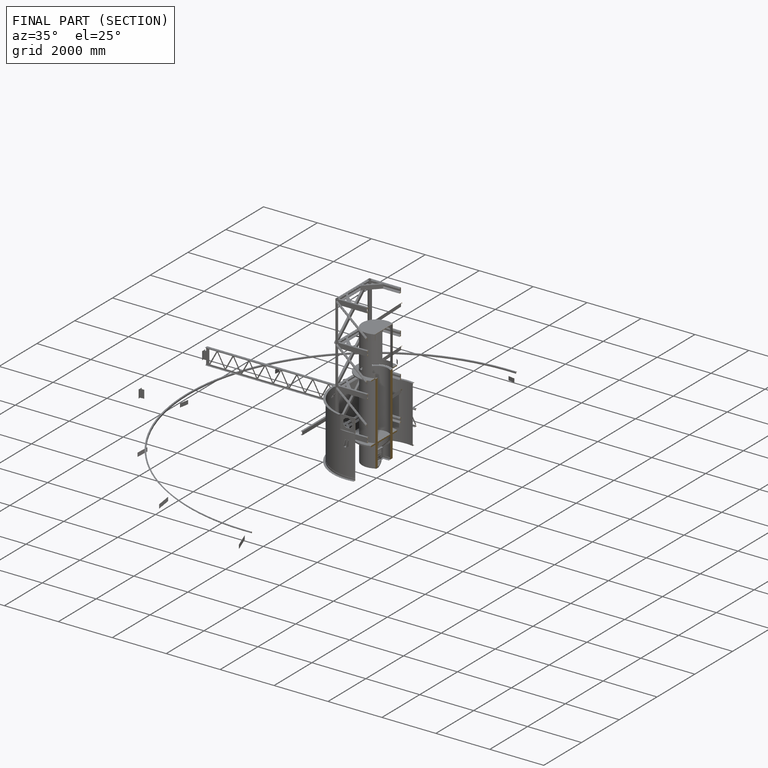
[diagram: finished part — half-section view (interior)]
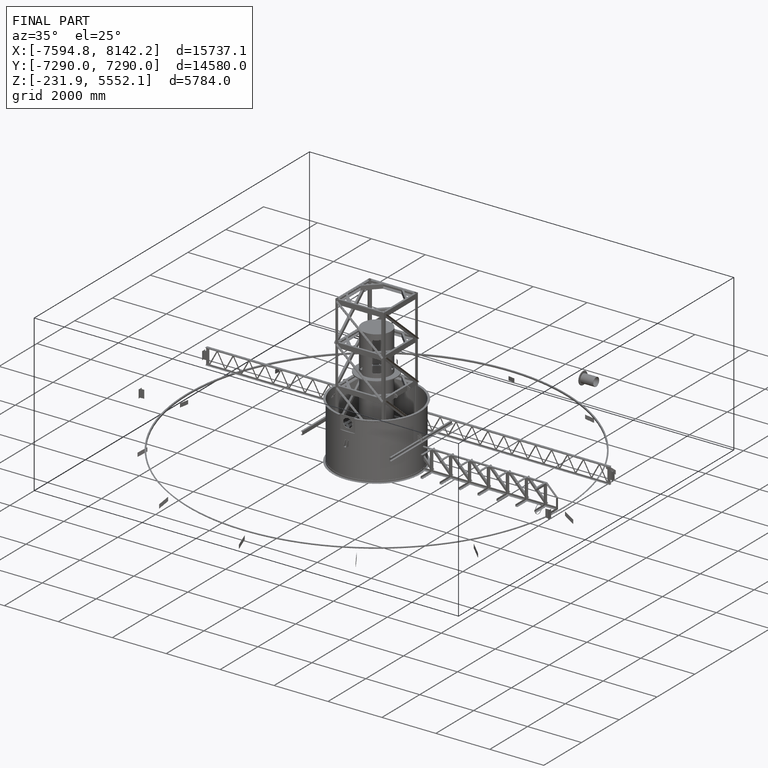
[diagram: finished part — iso view with bounding-box wireframe]
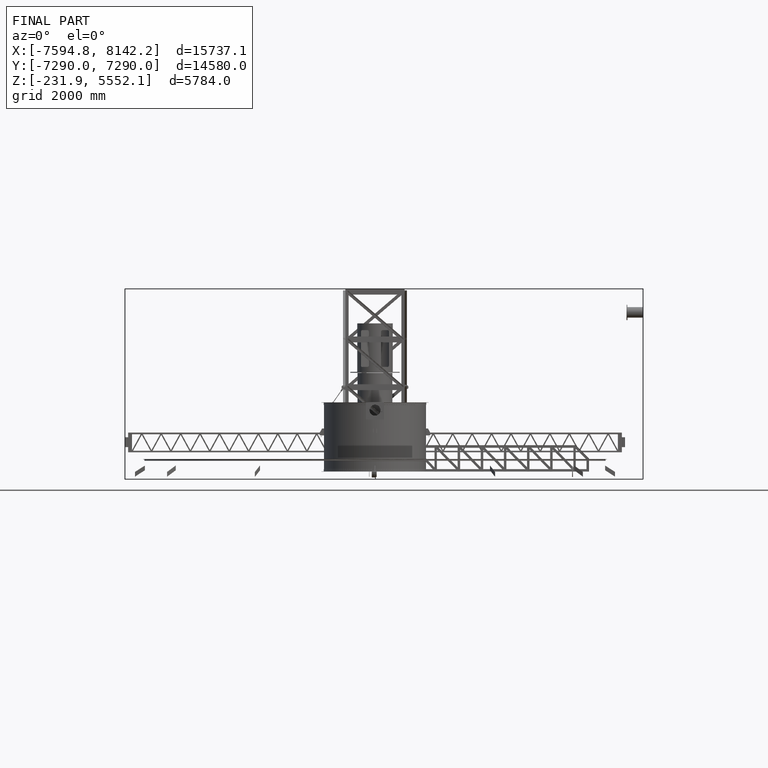
[diagram: finished part — front view with bounding-box wireframe]
